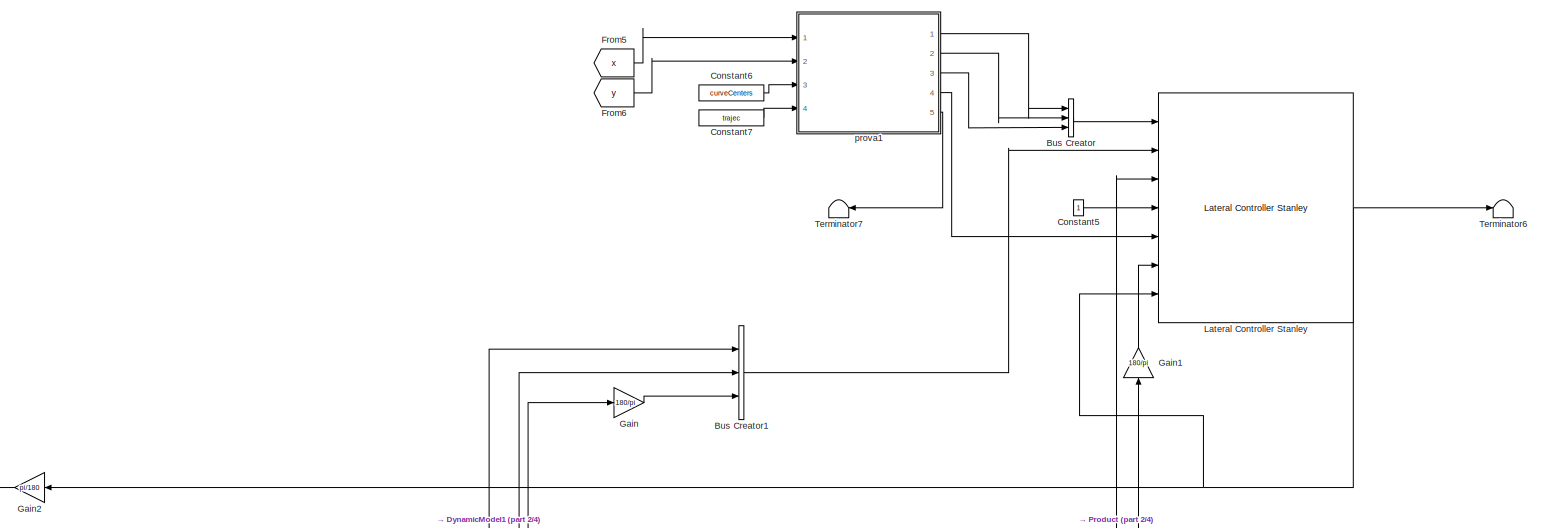
[diagram: root canvas - part 1/4, top right region]
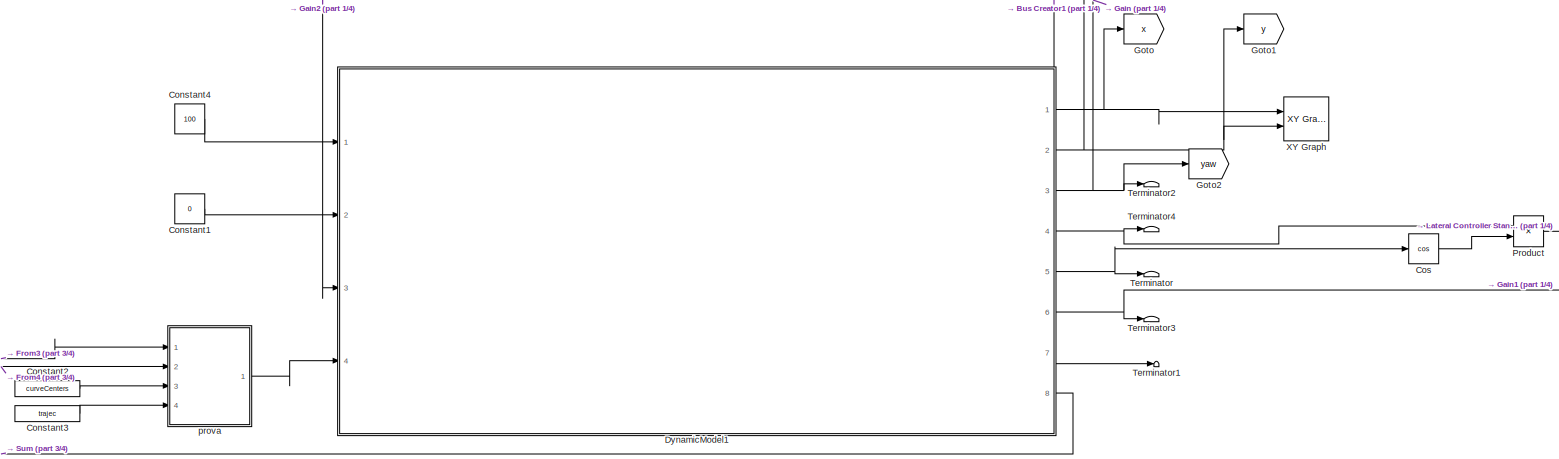
[diagram: root canvas - part 2/4, central region]
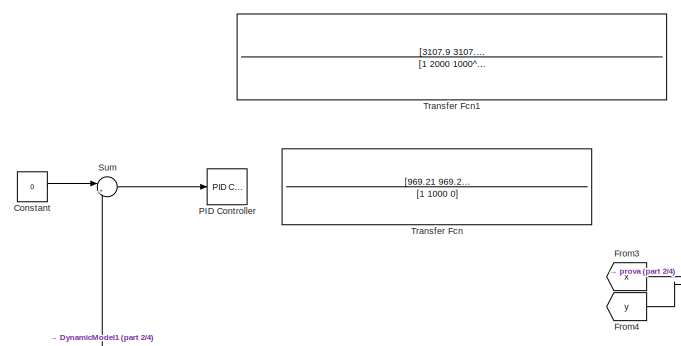
[diagram: root canvas - part 3/4, middle left region]
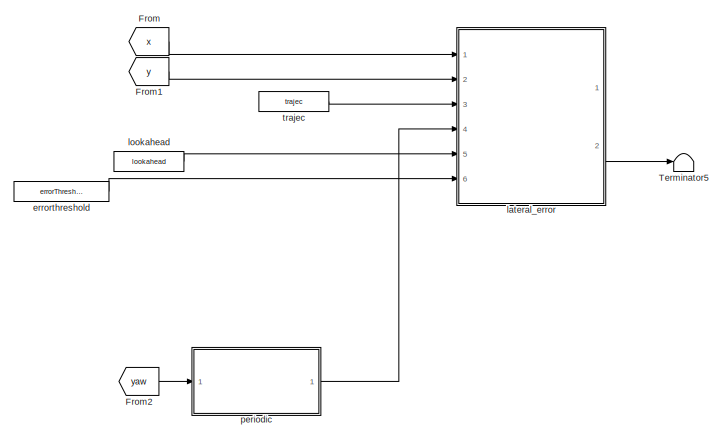
[diagram: root canvas - part 4/4, bottom left region]
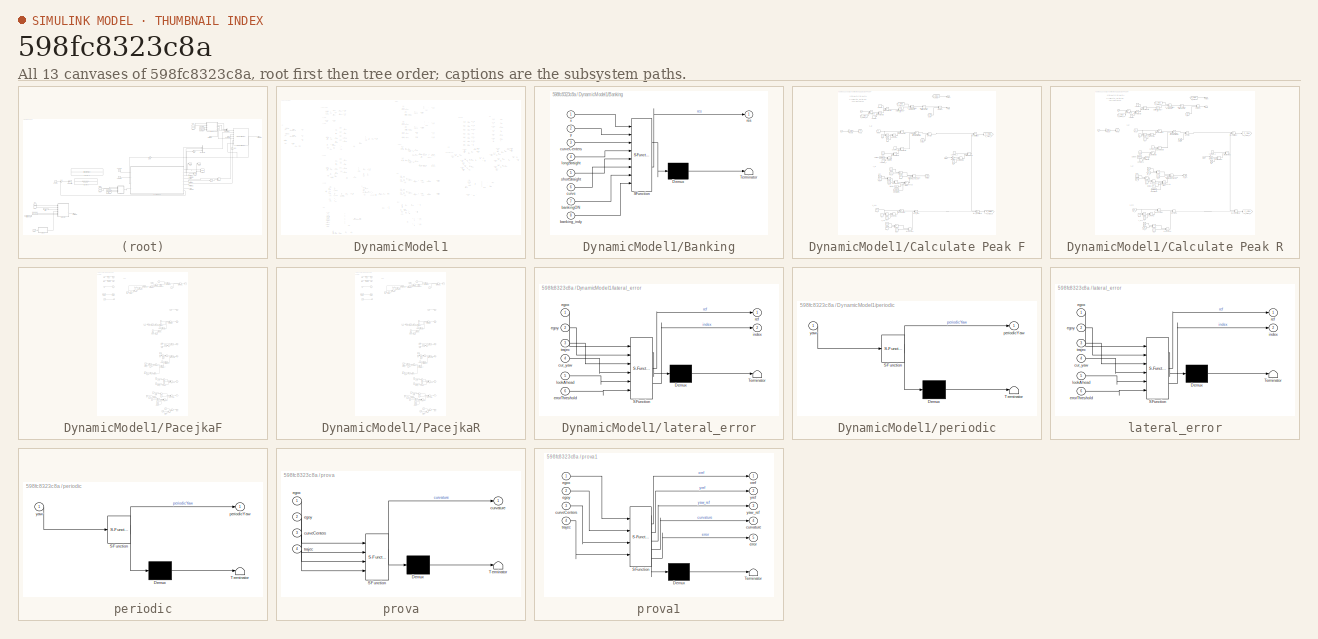
[diagram: thumbnail index - all 13 canvases of the model, root first then tree order]
MODEL slx_598fc8323c8a
KIND model
CONFIG AbsTol = auto
CONFIG EnableMultiTasking = off
CONFIG FixedStep = auto
CONFIG MaxStep = auto
CONFIG MinStep = auto
CONFIG RelTol = 1e-3
CONFIG SampleTimeConstraint = Unconstrained
CONFIG Solver = ode15s
CONFIG SolverName = ode15s
CONFIG StartTime = 0.0
CONFIG StopTime = 200
BLOCK [BusCreator] Bus Creator
  DisplayOption = bar
  InheritFromInputs = on
  Inputs = 3
  Ports = [3, 1]
BLOCK [BusCreator] Bus Creator1
  DisplayOption = bar
  InheritFromInputs = on
  Inputs = 3
  Ports = [3, 1]
BLOCK [Constant] Constant
  Value = 0
BLOCK [Constant] Constant1
  Value = 0
BLOCK [Constant] Constant2
  Value = curveCenters
BLOCK [Constant] Constant3
  Value = trajec
BLOCK [Constant] Constant4
  Value = 100
BLOCK [Constant] Constant5
BLOCK [Constant] Constant6
  Value = curveCenters
BLOCK [Constant] Constant7
  Value = trajec
BLOCK [Trigonometry] Cos
  Operator = cos
  Ports = [1, 1]
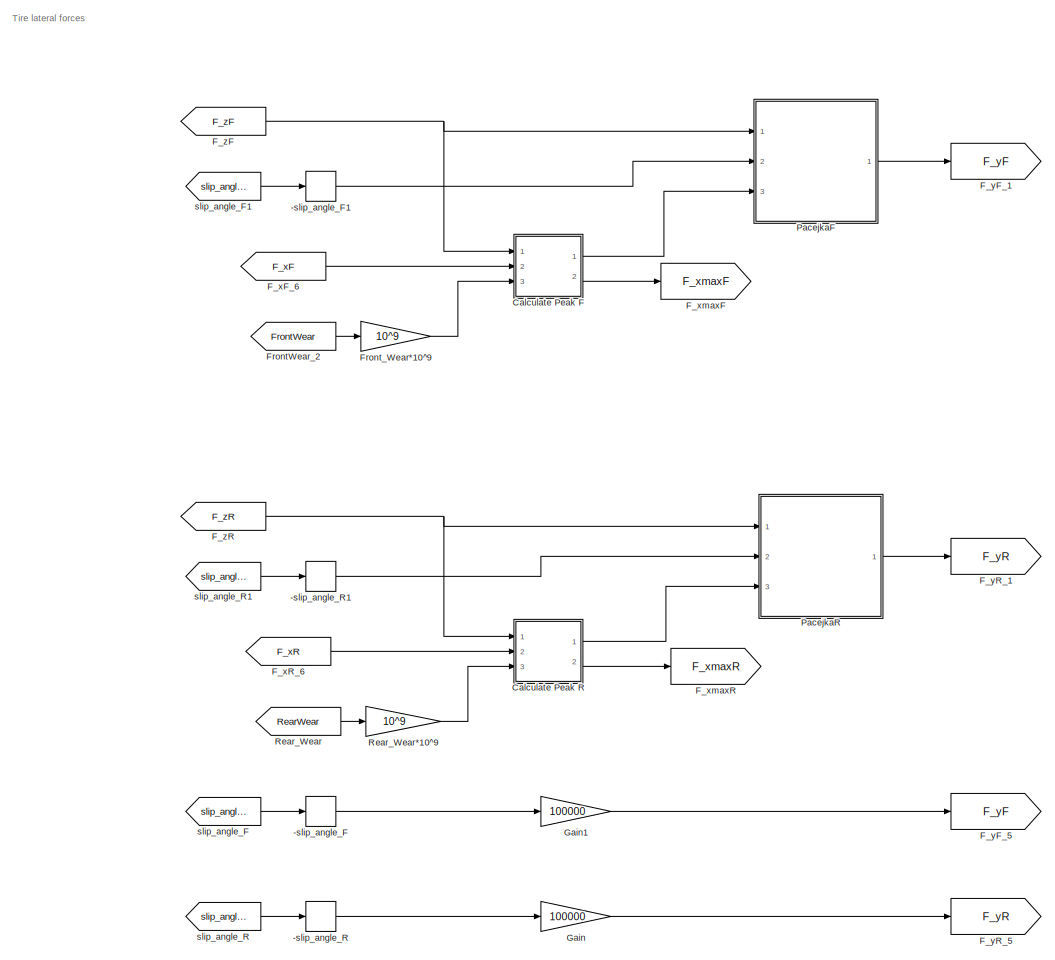
[diagram: DynamicModel1 - part 1/15, top center region]
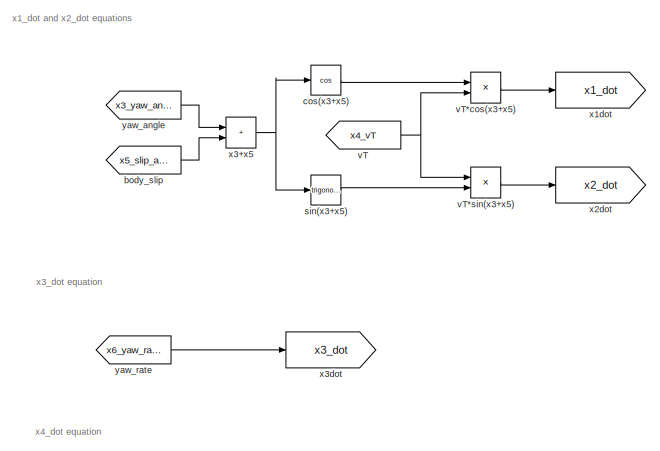
[diagram: DynamicModel1 - part 2/15, top left region]
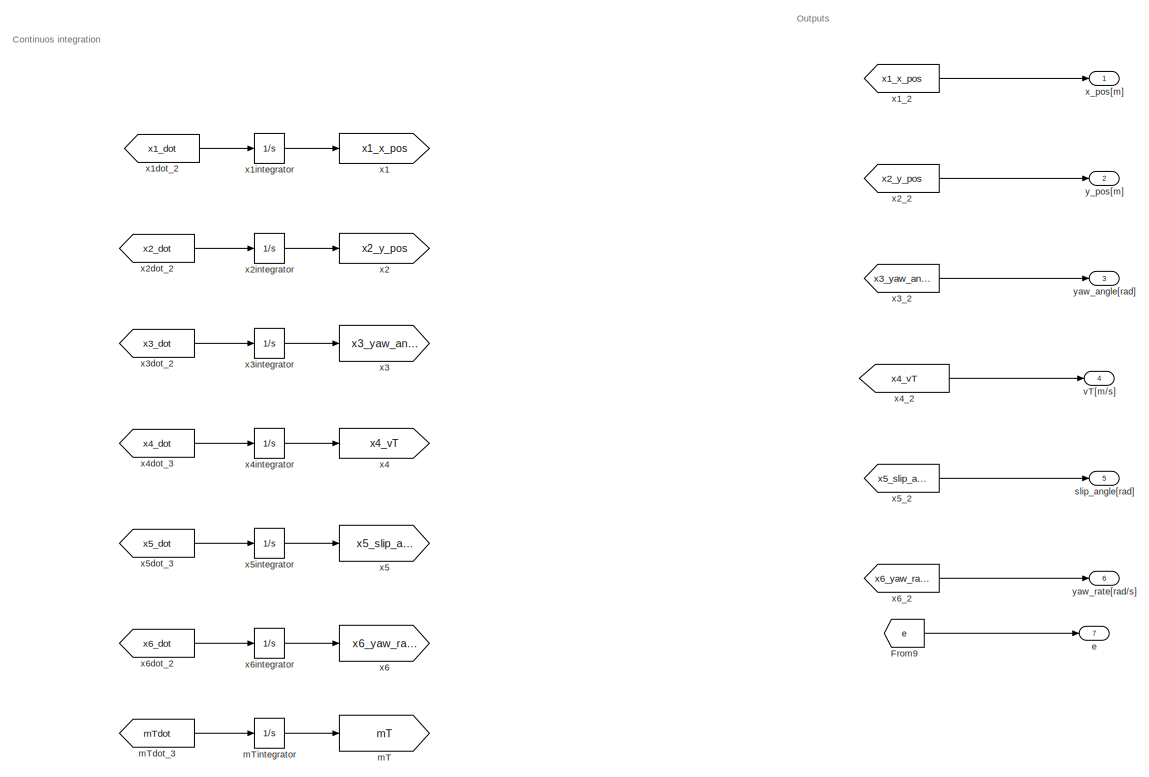
[diagram: DynamicModel1 - part 3/15, top right region]
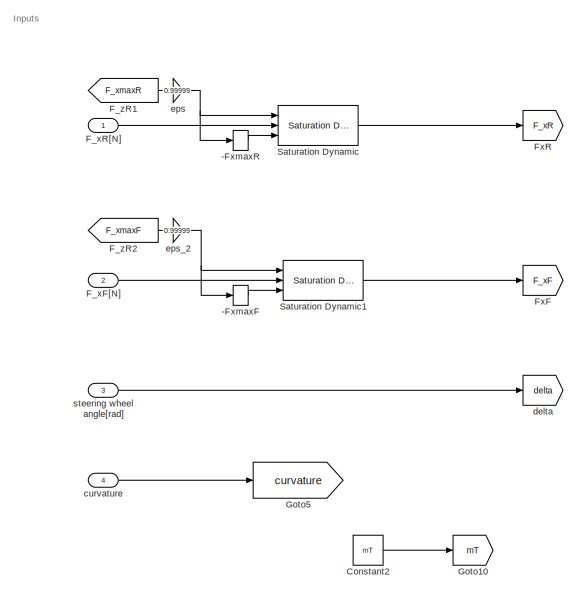
[diagram: DynamicModel1 - part 4/15, top left region]
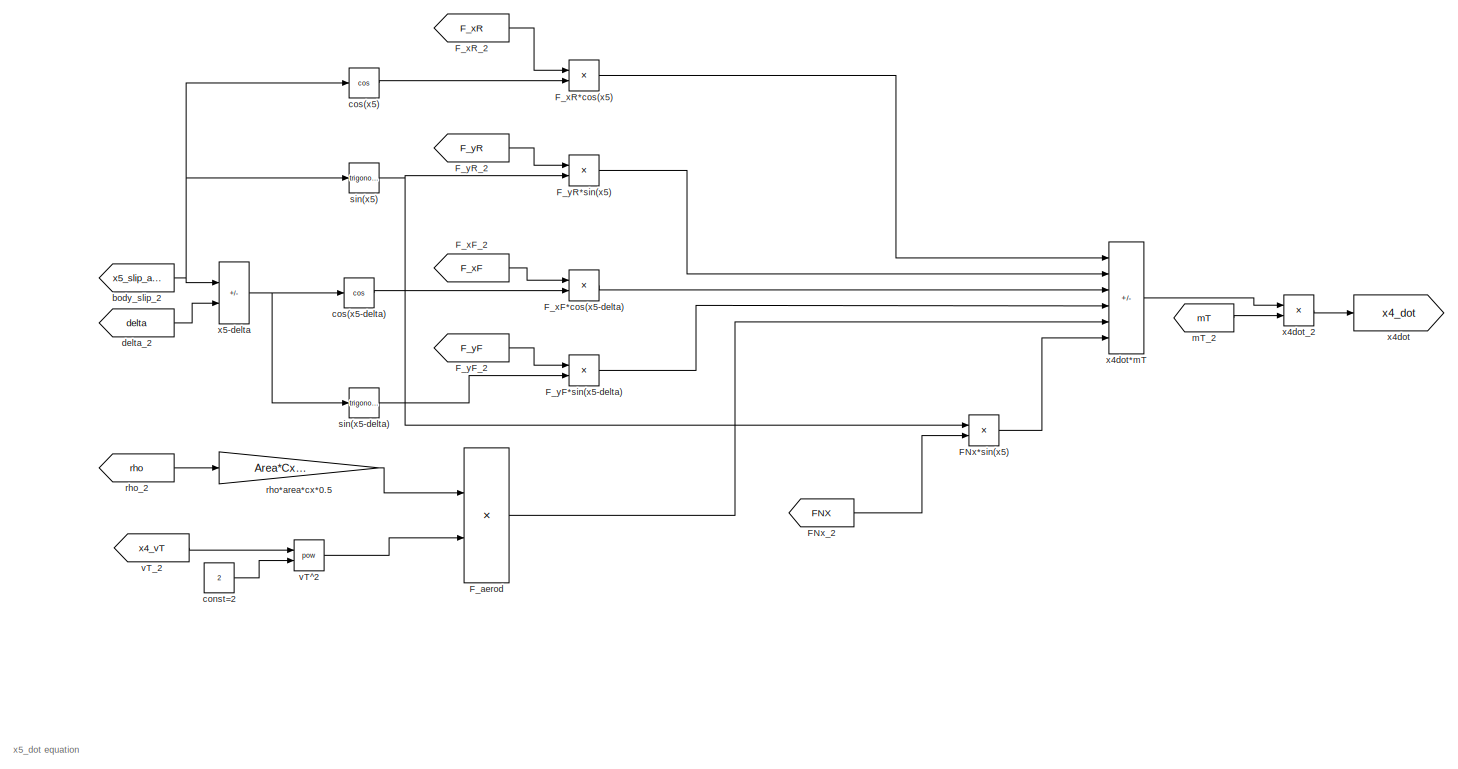
[diagram: DynamicModel1 - part 5/15, top left region]
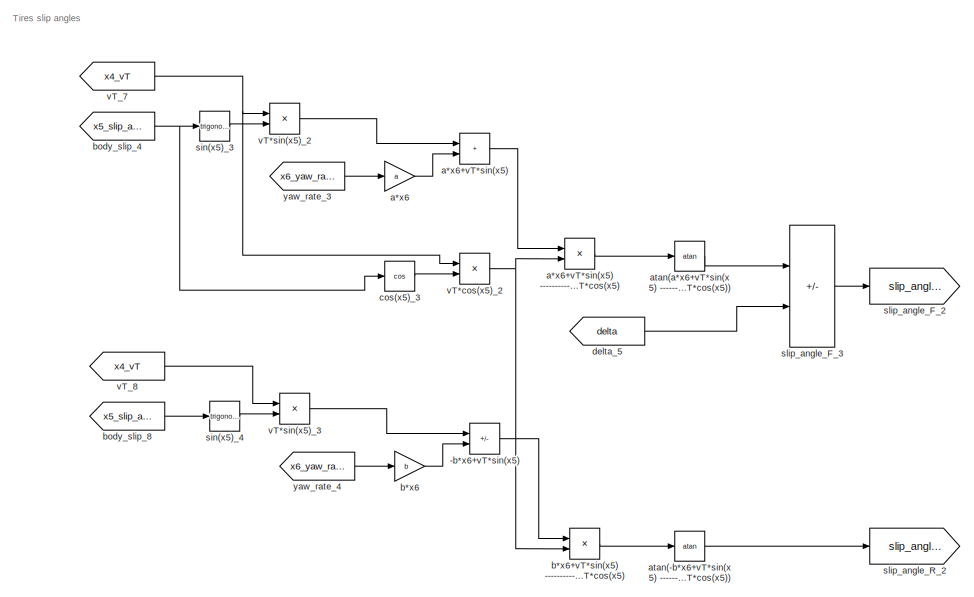
[diagram: DynamicModel1 - part 6/15, central region]
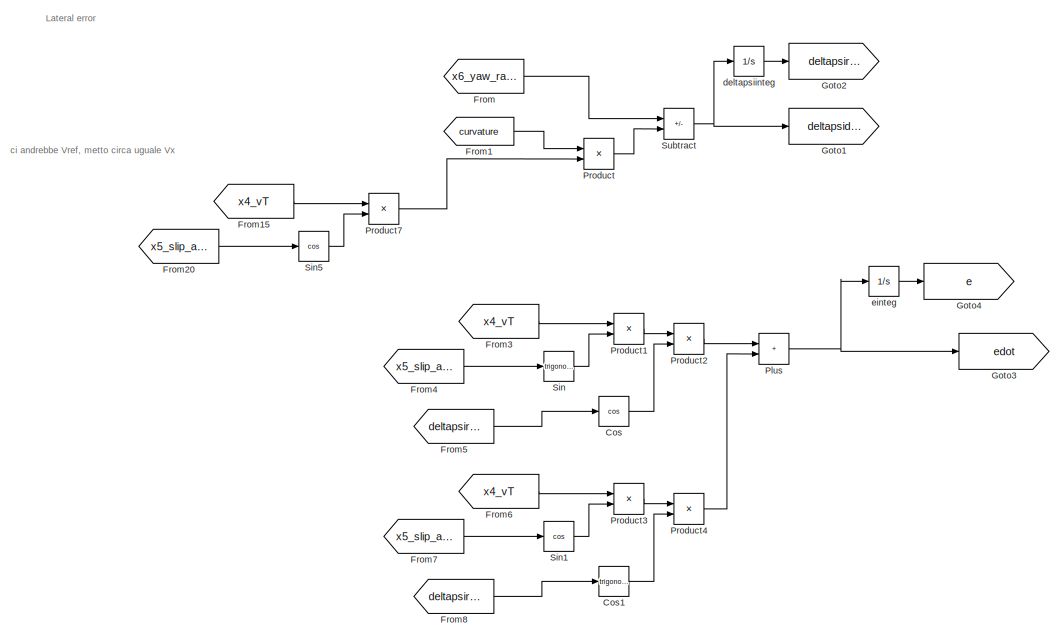
[diagram: DynamicModel1 - part 7/15, middle right region]
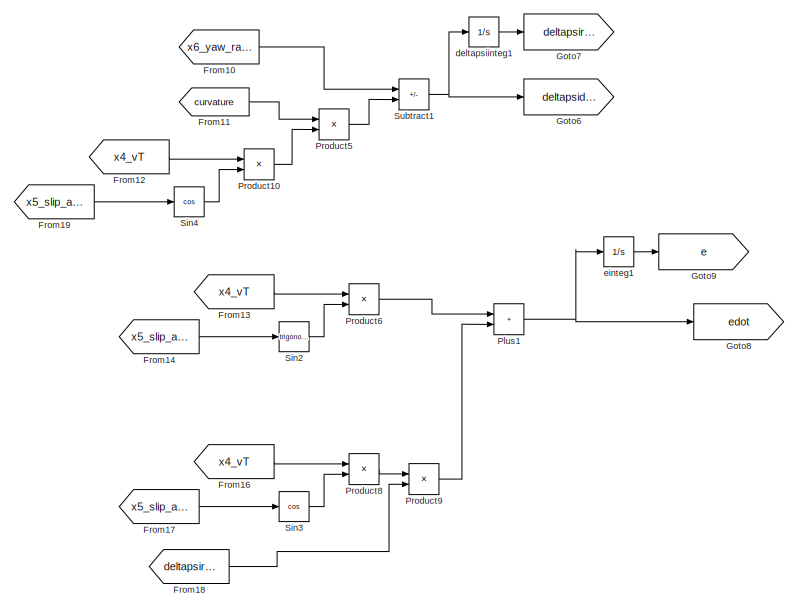
[diagram: DynamicModel1 - part 8/15, middle right region]
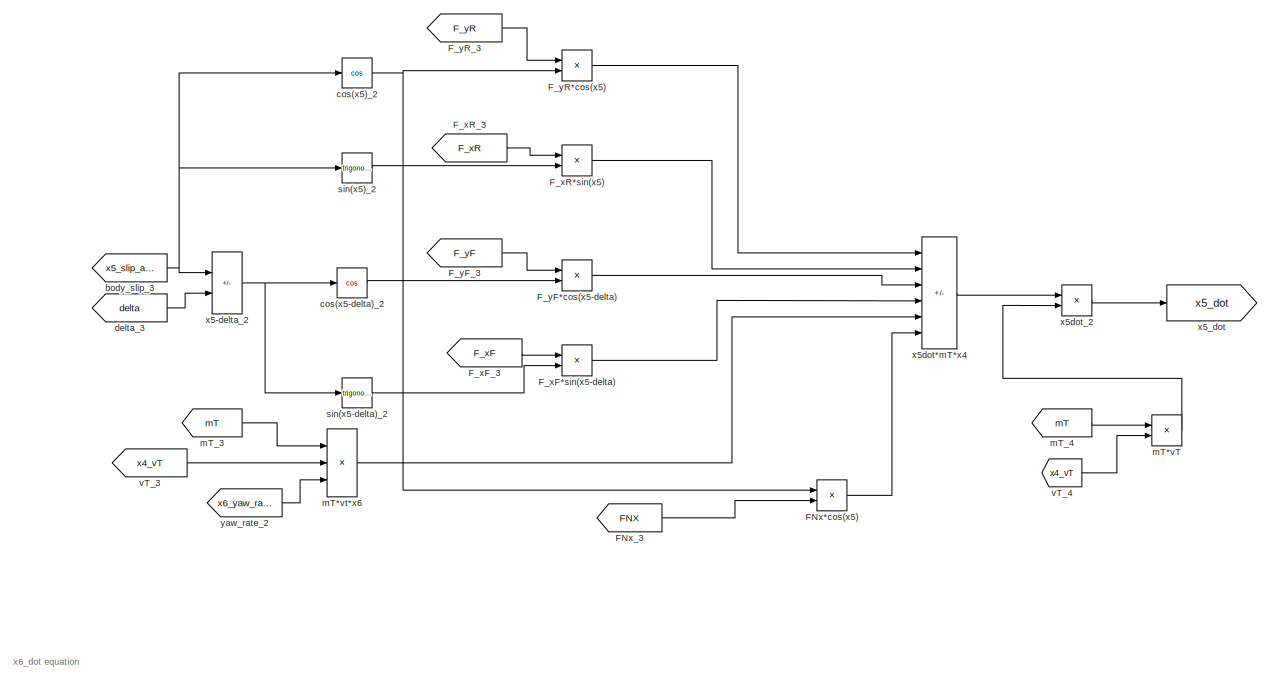
[diagram: DynamicModel1 - part 9/15, middle left region]
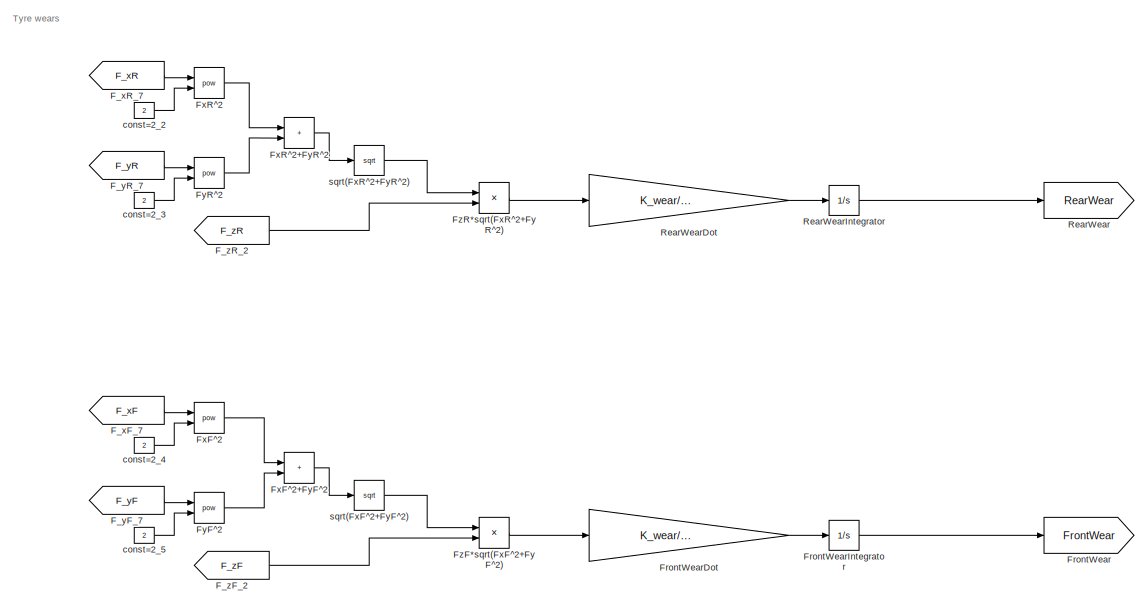
[diagram: DynamicModel1 - part 10/15, central region]
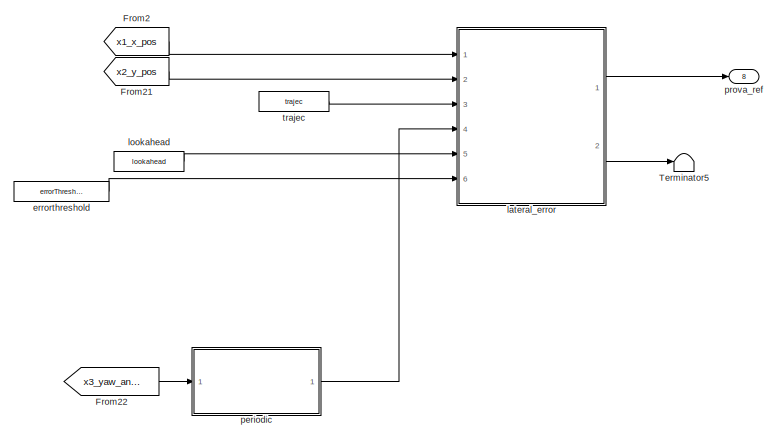
[diagram: DynamicModel1 - part 11/15, middle right region]
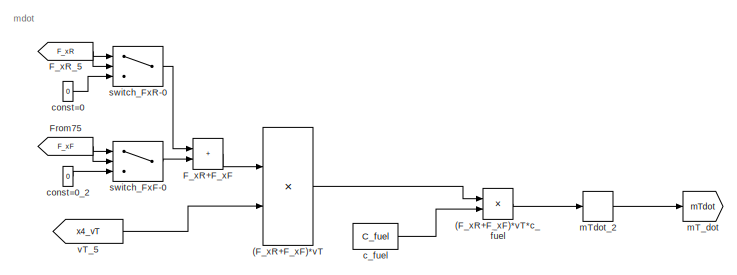
[diagram: DynamicModel1 - part 12/15, bottom center region]
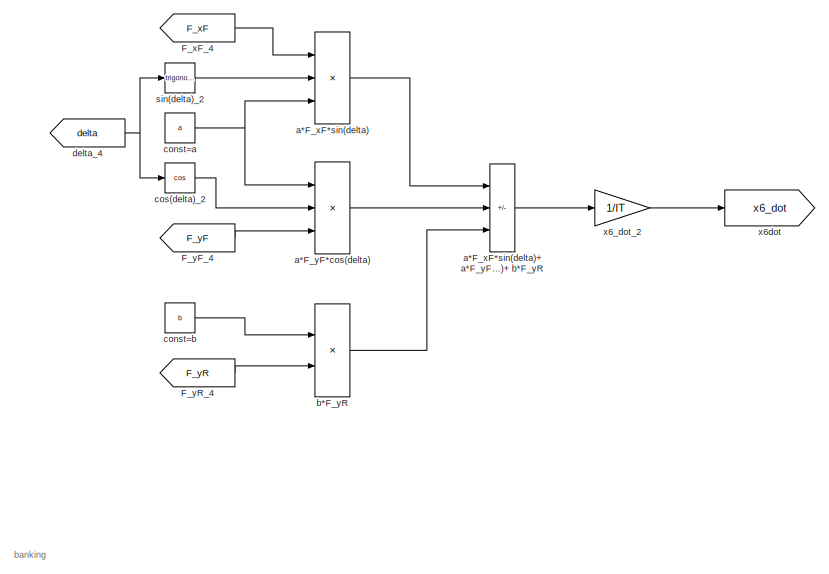
[diagram: DynamicModel1 - part 13/15, bottom left region]
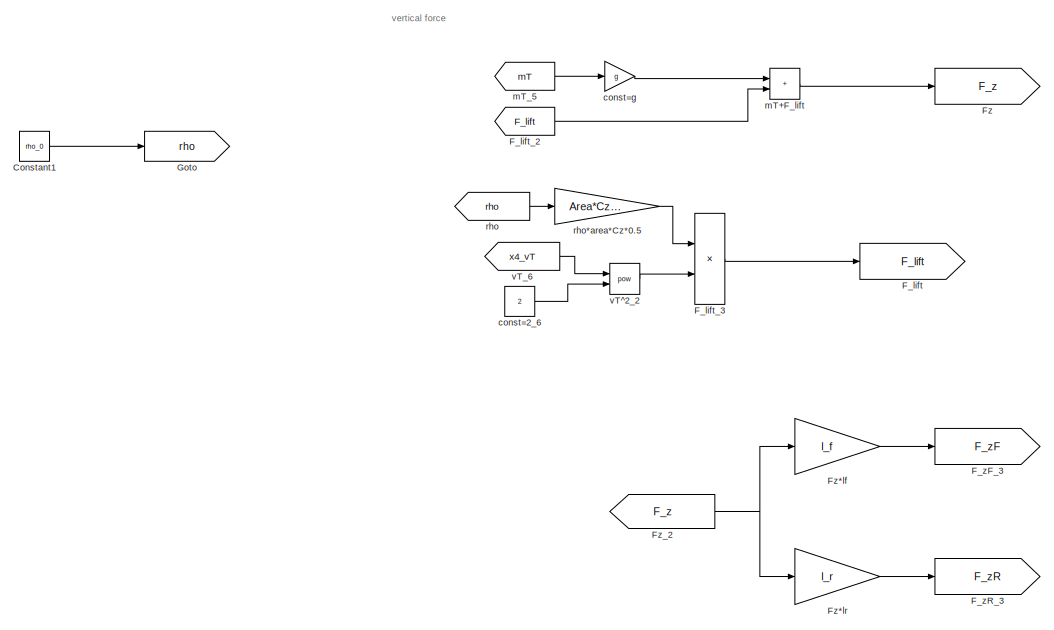
[diagram: DynamicModel1 - part 14/15, bottom center region]
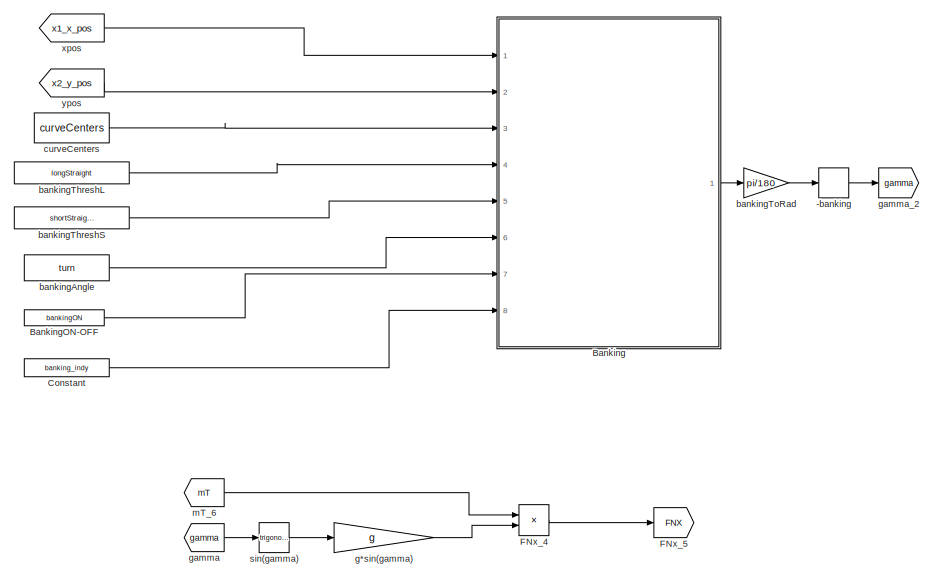
[diagram: DynamicModel1 - part 15/15, bottom left region]
BLOCK [SubSystem] DynamicModel1
  Ports = [4, 8]
  RequestExecContextInheritance = off
BLOCK [Product] DynamicModel1/(F_xR+F_xF)*vT
  Commented = on
  Ports = [2, 1]
BLOCK [Product] DynamicModel1/(F_xR+F_xF)*vT*c_fuel
  Commented = on
  Ports = [2, 1]
BLOCK [UnaryMinus] DynamicModel1/-FxmaxF
BLOCK [UnaryMinus] DynamicModel1/-FxmaxR
BLOCK [Sum] DynamicModel1/-b*x6+vT*sin(x5)
  IconShape = rectangular
  Inputs = +-
  Ports = [2, 1]
BLOCK [UnaryMinus] DynamicModel1/-banking
  Commented = on
BLOCK [UnaryMinus] DynamicModel1/-slip_angle_F
BLOCK [UnaryMinus] DynamicModel1/-slip_angle_F1
  Commented = on
BLOCK [UnaryMinus] DynamicModel1/-slip_angle_R
BLOCK [UnaryMinus] DynamicModel1/-slip_angle_R1
  Commented = on
BLOCK [SubSystem] DynamicModel1/Banking
  Commented = on
  ErrorFcn = Stateflow.Translate.translate
  PermitHierarchicalResolution = ExplicitOnly
  Ports = [8, 1]
  RequestExecContextInheritance = off
  SFBlockType = MATLAB Function
  TreatAsAtomicUnit = on
BLOCK [Demux] DynamicModel1/Banking/ Demux 
  Outputs = 1
  Ports = [1, 1]
BLOCK [S-Function] DynamicModel1/Banking/ SFunction 
  EnableBusSupport = on
  FunctionName = sf_sfun
  PortCounts = [8 2]
  Ports = [8, 2]
  SFcnIsStateOwnerBlock = off
  SFunctionDeploymentMode = off
  Tag = Stateflow S-Function 3
BLOCK [Terminator] DynamicModel1/Banking/ Terminator 
BLOCK [Inport] DynamicModel1/Banking/bankingON
  Port = 7
BLOCK [Inport] DynamicModel1/Banking/banking_indy
  Port = 8
BLOCK [Inport] DynamicModel1/Banking/curve
  Port = 6
BLOCK [Inport] DynamicModel1/Banking/curveCenters
  Port = 3
BLOCK [Inport] DynamicModel1/Banking/longStraight
  Port = 4
BLOCK [Outport] DynamicModel1/Banking/res
BLOCK [Inport] DynamicModel1/Banking/shortStraight
  Port = 5
BLOCK [Inport] DynamicModel1/Banking/x
BLOCK [Inport] DynamicModel1/Banking/y
  Port = 2
BLOCK [Constant] DynamicModel1/BankingON-OFF
  Commented = on
  Value = bankingON
BLOCK [SubSystem] DynamicModel1/Calculate Peak F
  Commented = on
  Ports = [3, 2]
  RequestExecContextInheritance = off
BLOCK [Product] DynamicModel1/Calculate Peak F/((a1Fz+a2)Fz) (1-a15*camber^2)
  Ports = [2, 1]
BLOCK [Product] DynamicModel1/Calculate Peak F/(D+V_lat)*wear
  Ports = [2, 1]
BLOCK [Product] DynamicModel1/Calculate Peak F/(D+V_long)*wear
  Ports = [2, 1]
BLOCK [Math] DynamicModel1/Calculate Peak F/(Fx*Fymax^-1)^2
  Operator = pow
  Ports = [2, 1]
BLOCK [Product] DynamicModel1/Calculate Peak F/(a1Fz+a2)Fz
  Ports = [2, 1]
BLOCK [Product] DynamicModel1/Calculate Peak F/(b1Fz+b2)Fz
  Ports = [2, 1]
BLOCK [Product] DynamicModel1/Calculate Peak F/1 ------ w1*wear+w2
  Inputs = */
  Ports = [2, 1]
BLOCK [Sum] DynamicModel1/Calculate Peak F/1-(Fx*Fymax^-1)^2
  IconShape = rectangular
  Inputs = +-
  Ports = [2, 1]
BLOCK [Sum] DynamicModel1/Calculate Peak F/1-a15*camber^2
  IconShape = rectangular
  Inputs = +-
  Ports = [2, 1]
BLOCK [Constant] DynamicModel1/Calculate Peak F/Constant11
  Value = camber
BLOCK [Sum] DynamicModel1/Calculate Peak F/D+V_lat
  IconShape = rectangular
  Ports = [2, 1]
BLOCK [Sum] DynamicModel1/Calculate Peak F/D+V_long
  IconShape = rectangular
  Ports = [2, 1]
BLOCK [From] DynamicModel1/Calculate Peak F/F_xmax
  GotoTag = F_xmax
BLOCK [Goto] DynamicModel1/Calculate Peak F/F_xmax_2
  GotoTag = F_xmax
BLOCK [From] DynamicModel1/Calculate Peak F/F_xmax_3
  GotoTag = F_xmax
BLOCK [Product] DynamicModel1/Calculate Peak F/F_ymax* sqrt(1-(Fx*Fymax^-1)^2) 
  Ports = [2, 1]
BLOCK [From] DynamicModel1/Calculate Peak F/F_ymax_2
  GotoTag = F_ymax
BLOCK [Goto] DynamicModel1/Calculate Peak F/F_ymax_3
  GotoTag = F_ymax
BLOCK [From] DynamicModel1/Calculate Peak F/From22
  GotoTag = Fz
BLOCK [Inport] DynamicModel1/Calculate Peak F/Fx
  Port = 2
  Unit = N
BLOCK [Product] DynamicModel1/Calculate Peak F/Fx*Fymax^-1
  Inputs = */
  Ports = [2, 1]
BLOCK [Outport] DynamicModel1/Calculate Peak F/Fxmax
  Port = 2
BLOCK [Inport] DynamicModel1/Calculate Peak F/Fz
  Unit = N
BLOCK [Gain] DynamicModel1/Calculate Peak F/Fz*10^-3
  Gain = 10^-3
BLOCK [Goto] DynamicModel1/Calculate Peak F/Fz_2
  GotoTag = Fz
BLOCK [From] DynamicModel1/Calculate Peak F/Fz_3
  GotoTag = Fz
BLOCK [From] DynamicModel1/Calculate Peak F/Fz_4
  GotoTag = Fz
BLOCK [From] DynamicModel1/Calculate Peak F/Fz_5
  GotoTag = Fz
BLOCK [From] DynamicModel1/Calculate Peak F/Fz_6
  GotoTag = Fz
BLOCK [From] DynamicModel1/Calculate Peak F/Fz_7
  GotoTag = Fz
BLOCK [Outport] DynamicModel1/Calculate Peak F/Peak
BLOCK [From] DynamicModel1/Calculate Peak F/V_lat
  GotoTag = V_lat
BLOCK [From] DynamicModel1/Calculate Peak F/V_lat_2
  GotoTag = V_lat
BLOCK [Goto] DynamicModel1/Calculate Peak F/V_lat_3
  GotoTag = V_lat
BLOCK [Inport] DynamicModel1/Calculate Peak F/Wear
  Port = 3
BLOCK [Constant] DynamicModel1/Calculate Peak F/a1
  Value = a1
BLOCK [Constant] DynamicModel1/Calculate Peak F/a11
  Value = a11
BLOCK [Product] DynamicModel1/Calculate Peak F/a11Fz
  Ports = [2, 1]
BLOCK [Constant] DynamicModel1/Calculate Peak F/a12
  Value = a12
BLOCK [Constant] DynamicModel1/Calculate Peak F/a13
  Value = a13
BLOCK [Product] DynamicModel1/Calculate Peak F/a13Fz
  Ports = [2, 1]
BLOCK [Sum] DynamicModel1/Calculate Peak F/a13Fz+a14
  IconShape = rectangular
  Ports = [2, 1]
BLOCK [Product] DynamicModel1/Calculate Peak F/a13Fz+a14+Fz+camber
  Inputs = 3
  Ports = [3, 1]
BLOCK [Sum] DynamicModel1/Calculate Peak F/a13Fz+a14+Fz+camber +a12+a11Fz
  IconShape = rectangular
  Inputs = +++
  Ports = [3, 1]
BLOCK [Constant] DynamicModel1/Calculate Peak F/a14
  Value = a14
BLOCK [Constant] DynamicModel1/Calculate Peak F/a15
  Value = a15
BLOCK [Product] DynamicModel1/Calculate Peak F/a15*camber^2
  Ports = [2, 1]
BLOCK [Product] DynamicModel1/Calculate Peak F/a1Fz
  Ports = [2, 1]
BLOCK [Sum] DynamicModel1/Calculate Peak F/a1Fz+a2
  IconShape = rectangular
  Ports = [2, 1]
BLOCK [Constant] DynamicModel1/Calculate Peak F/a2
  Value = a2
BLOCK [Abs] DynamicModel1/Calculate Peak F/abs(F_ymax* sqrt(1-(Fx*Fymax^-1)^2) )
  SaturateOnIntegerOverflow = off
BLOCK [Constant] DynamicModel1/Calculate Peak F/b1
  Value = b1
BLOCK [Constant] DynamicModel1/Calculate Peak F/b11
  Value = b11
BLOCK [Product] DynamicModel1/Calculate Peak F/b11Fz
  Ports = [2, 1]
BLOCK [Sum] DynamicModel1/Calculate Peak F/b11Fz+b12
  IconShape = rectangular
  Ports = [2, 1]
BLOCK [Constant] DynamicModel1/Calculate Peak F/b12
  Value = b12
BLOCK [Product] DynamicModel1/Calculate Peak F/b1Fz
  Ports = [2, 1]
BLOCK [Sum] DynamicModel1/Calculate Peak F/b1Fz+b2
  IconShape = rectangular
  Ports = [2, 1]
BLOCK [Constant] DynamicModel1/Calculate Peak F/b2
  Value = b2
BLOCK [Constant] DynamicModel1/Calculate Peak F/camber
  Value = camber
BLOCK [Math] DynamicModel1/Calculate Peak F/camber^2
  Operator = pow
  Ports = [2, 1]
BLOCK [Constant] DynamicModel1/Calculate Peak F/const=1
BLOCK [Constant] DynamicModel1/Calculate Peak F/const=1_2
BLOCK [Constant] DynamicModel1/Calculate Peak F/const=1_3
BLOCK [Constant] DynamicModel1/Calculate Peak F/const=2
  Value = 2
BLOCK [Constant] DynamicModel1/Calculate Peak F/const=2_2
  Value = 2
BLOCK [Sum] DynamicModel1/Calculate Peak F/newD+V
  IconShape = rectangular
  Inputs = +-
  Ports = [2, 1]
BLOCK [Sqrt] DynamicModel1/Calculate Peak F/sqrt(1-(Fx*Fymax^-1)^2)
BLOCK [Gain] DynamicModel1/Calculate Peak F/w1*wear
  Gain = w1
BLOCK [Sum] DynamicModel1/Calculate Peak F/w1*wear+w2
  IconShape = rectangular
  Ports = [2, 1]
BLOCK [Constant] DynamicModel1/Calculate Peak F/w2
  Value = w2
BLOCK [SubSystem] DynamicModel1/Calculate Peak R
  Commented = on
  Ports = [3, 2]
  RequestExecContextInheritance = off
BLOCK [Product] DynamicModel1/Calculate Peak R/((a1Fz+a2)Fz) (1-a15*camber^2)
  Ports = [2, 1]
BLOCK [Product] DynamicModel1/Calculate Peak R/(D+V_lat)*wear
  Ports = [2, 1]
BLOCK [Product] DynamicModel1/Calculate Peak R/(D+V_long)*wear
  Ports = [2, 1]
BLOCK [Math] DynamicModel1/Calculate Peak R/(Fx*Fymax^-1)^2
  Operator = pow
  Ports = [2, 1]
BLOCK [Product] DynamicModel1/Calculate Peak R/(a1Fz+a2)Fz
  Ports = [2, 1]
BLOCK [Product] DynamicModel1/Calculate Peak R/(b1Fz+b2)Fz
  Ports = [2, 1]
BLOCK [Product] DynamicModel1/Calculate Peak R/1 ------ w1*wear+w2
  Inputs = */
  Ports = [2, 1]
BLOCK [Sum] DynamicModel1/Calculate Peak R/1-(Fx*Fymax^-1)^2
  IconShape = rectangular
  Inputs = +-
  Ports = [2, 1]
BLOCK [Sum] DynamicModel1/Calculate Peak R/1-a15*camber^2
  IconShape = rectangular
  Inputs = +-
  Ports = [2, 1]
BLOCK [Constant] DynamicModel1/Calculate Peak R/Constant11
  Value = camber
BLOCK [Sum] DynamicModel1/Calculate Peak R/D+V_lat
  IconShape = rectangular
  Ports = [2, 1]
BLOCK [Sum] DynamicModel1/Calculate Peak R/D+V_long
  IconShape = rectangular
  Ports = [2, 1]
BLOCK [From] DynamicModel1/Calculate Peak R/F_xmax
  GotoTag = F_xmax
BLOCK [Goto] DynamicModel1/Calculate Peak R/F_xmax_2
  GotoTag = F_xmax
BLOCK [From] DynamicModel1/Calculate Peak R/F_xmax_3
  GotoTag = F_xmax
BLOCK [Product] DynamicModel1/Calculate Peak R/F_ymax* sqrt(1-(Fx*Fymax^-1)^2) 
  Ports = [2, 1]
BLOCK [From] DynamicModel1/Calculate Peak R/F_ymax_2
  GotoTag = F_ymax
BLOCK [Goto] DynamicModel1/Calculate Peak R/F_ymax_3
  GotoTag = F_ymax
BLOCK [From] DynamicModel1/Calculate Peak R/From22
  GotoTag = Fz
BLOCK [Inport] DynamicModel1/Calculate Peak R/Fx
  Port = 2
  Unit = N
BLOCK [Product] DynamicModel1/Calculate Peak R/Fx*Fymax^-1
  Inputs = */
  Ports = [2, 1]
BLOCK [Outport] DynamicModel1/Calculate Peak R/Fxmax
  Port = 2
BLOCK [Inport] DynamicModel1/Calculate Peak R/Fz
  Unit = N
BLOCK [Gain] DynamicModel1/Calculate Peak R/Fz*10^-3
  Gain = 10^-3
BLOCK [Goto] DynamicModel1/Calculate Peak R/Fz_2
  GotoTag = Fz
BLOCK [From] DynamicModel1/Calculate Peak R/Fz_3
  GotoTag = Fz
BLOCK [From] DynamicModel1/Calculate Peak R/Fz_4
  GotoTag = Fz
BLOCK [From] DynamicModel1/Calculate Peak R/Fz_5
  GotoTag = Fz
BLOCK [From] DynamicModel1/Calculate Peak R/Fz_6
  GotoTag = Fz
BLOCK [From] DynamicModel1/Calculate Peak R/Fz_7
  GotoTag = Fz
BLOCK [Outport] DynamicModel1/Calculate Peak R/Peak
BLOCK [From] DynamicModel1/Calculate Peak R/V_lat
  GotoTag = V_lat
BLOCK [From] DynamicModel1/Calculate Peak R/V_lat_2
  GotoTag = V_lat
BLOCK [Goto] DynamicModel1/Calculate Peak R/V_lat_3
  GotoTag = V_lat
BLOCK [Inport] DynamicModel1/Calculate Peak R/Wear
  Port = 3
BLOCK [Constant] DynamicModel1/Calculate Peak R/a1
  Value = a1
BLOCK [Constant] DynamicModel1/Calculate Peak R/a11
  Value = a11
BLOCK [Product] DynamicModel1/Calculate Peak R/a11Fz
  Ports = [2, 1]
BLOCK [Constant] DynamicModel1/Calculate Peak R/a12
  Value = a12
BLOCK [Constant] DynamicModel1/Calculate Peak R/a13
  Value = a13
BLOCK [Product] DynamicModel1/Calculate Peak R/a13Fz
  Ports = [2, 1]
BLOCK [Sum] DynamicModel1/Calculate Peak R/a13Fz+a14
  IconShape = rectangular
  Ports = [2, 1]
BLOCK [Product] DynamicModel1/Calculate Peak R/a13Fz+a14+Fz+camber
  Inputs = 3
  Ports = [3, 1]
BLOCK [Sum] DynamicModel1/Calculate Peak R/a13Fz+a14+Fz+camber +a12+a11Fz
  IconShape = rectangular
  Inputs = +++
  Ports = [3, 1]
BLOCK [Constant] DynamicModel1/Calculate Peak R/a14
  Value = a14
BLOCK [Constant] DynamicModel1/Calculate Peak R/a15
  Value = a15
BLOCK [Product] DynamicModel1/Calculate Peak R/a15*camber^2
  Ports = [2, 1]
BLOCK [Product] DynamicModel1/Calculate Peak R/a1Fz
  Ports = [2, 1]
BLOCK [Sum] DynamicModel1/Calculate Peak R/a1Fz+a2
  IconShape = rectangular
  Ports = [2, 1]
BLOCK [Constant] DynamicModel1/Calculate Peak R/a2
  Value = a2
BLOCK [Abs] DynamicModel1/Calculate Peak R/abs(F_ymax* sqrt(1-(Fx*Fymax^-1)^2) )
  SaturateOnIntegerOverflow = off
BLOCK [Constant] DynamicModel1/Calculate Peak R/b1
  Value = b1
BLOCK [Constant] DynamicModel1/Calculate Peak R/b11
  Value = b11
BLOCK [Product] DynamicModel1/Calculate Peak R/b11Fz
  Ports = [2, 1]
BLOCK [Sum] DynamicModel1/Calculate Peak R/b11Fz+b12
  IconShape = rectangular
  Ports = [2, 1]
BLOCK [Constant] DynamicModel1/Calculate Peak R/b12
  Value = b12
BLOCK [Product] DynamicModel1/Calculate Peak R/b1Fz
  Ports = [2, 1]
BLOCK [Sum] DynamicModel1/Calculate Peak R/b1Fz+b2
  IconShape = rectangular
  Ports = [2, 1]
BLOCK [Constant] DynamicModel1/Calculate Peak R/b2
  Value = b2
BLOCK [Constant] DynamicModel1/Calculate Peak R/camber
  Value = camber
BLOCK [Math] DynamicModel1/Calculate Peak R/camber^2
  Operator = pow
  Ports = [2, 1]
BLOCK [Constant] DynamicModel1/Calculate Peak R/const=1
BLOCK [Constant] DynamicModel1/Calculate Peak R/const=1_2
BLOCK [Constant] DynamicModel1/Calculate Peak R/const=1_3
BLOCK [Constant] DynamicModel1/Calculate Peak R/const=2
  Value = 2
BLOCK [Constant] DynamicModel1/Calculate Peak R/const=2_2
  Value = 2
BLOCK [Sum] DynamicModel1/Calculate Peak R/newD+V
  IconShape = rectangular
  Inputs = +-
  Ports = [2, 1]
BLOCK [Sqrt] DynamicModel1/Calculate Peak R/sqrt(1-(Fx*Fymax^-1)^2)
BLOCK [Gain] DynamicModel1/Calculate Peak R/w1*wear
  Gain = w1
BLOCK [Sum] DynamicModel1/Calculate Peak R/w1*wear+w2
  IconShape = rectangular
  Ports = [2, 1]
BLOCK [Constant] DynamicModel1/Calculate Peak R/w2
  Value = w2
BLOCK [Constant] DynamicModel1/Constant
  Commented = on
  Value = banking_indy
BLOCK [Constant] DynamicModel1/Constant1
  Commented = on
  Value = rho_0
BLOCK [Constant] DynamicModel1/Constant2
  Value = mT
BLOCK [Trigonometry] DynamicModel1/Cos
  Commented = on
  Operator = cos
  Ports = [1, 1]
BLOCK [Trigonometry] DynamicModel1/Cos1
  Commented = on
  Ports = [1, 1]
BLOCK [Product] DynamicModel1/FNx*cos(x5)
  Commented = on
  Ports = [2, 1]
BLOCK [Product] DynamicModel1/FNx*sin(x5)
  Commented = on
  Ports = [2, 1]
BLOCK [From] DynamicModel1/FNx_2
  Commented = on
  GotoTag = FNX
BLOCK [From] DynamicModel1/FNx_3
  Commented = on
  GotoTag = FNX
BLOCK [Product] DynamicModel1/FNx_4
  Commented = on
  Ports = [2, 1]
BLOCK [Goto] DynamicModel1/FNx_5
  Commented = on
  GotoTag = FNX
BLOCK [Product] DynamicModel1/F_aerod
  Commented = on
  Ports = [2, 1]
BLOCK [Goto] DynamicModel1/F_lift
  Commented = on
  GotoTag = F_lift
BLOCK [From] DynamicModel1/F_lift_2
  Commented = on
  GotoTag = F_lift
BLOCK [Product] DynamicModel1/F_lift_3
  Commented = on
  Ports = [2, 1]
BLOCK [Product] DynamicModel1/F_xF*cos(x5-delta)
  Ports = [2, 1]
BLOCK [Product] DynamicModel1/F_xF*sin(x5-delta)
  Ports = [2, 1]
BLOCK [Inport] DynamicModel1/F_xF[N]
  Port = 2
  Unit = N
BLOCK [From] DynamicModel1/F_xF_2
  GotoTag = F_xF
BLOCK [From] DynamicModel1/F_xF_3
  GotoTag = F_xF
BLOCK [From] DynamicModel1/F_xF_4
  GotoTag = F_xF
BLOCK [From] DynamicModel1/F_xF_6
  Commented = on
  GotoTag = F_xF
BLOCK [From] DynamicModel1/F_xF_7
  Commented = on
  GotoTag = F_xF
BLOCK [Product] DynamicModel1/F_xR*cos(x5)
  Ports = [2, 1]
BLOCK [Product] DynamicModel1/F_xR*sin(x5)
  Ports = [2, 1]
BLOCK [Sum] DynamicModel1/F_xR+F_xF
  Commented = on
  IconShape = rectangular
  Ports = [2, 1]
BLOCK [Inport] DynamicModel1/F_xR[N]
  Unit = N
BLOCK [From] DynamicModel1/F_xR_2
  GotoTag = F_xR
BLOCK [From] DynamicModel1/F_xR_3
  GotoTag = F_xR
BLOCK [From] DynamicModel1/F_xR_5
  Commented = on
  GotoTag = F_xR
BLOCK [From] DynamicModel1/F_xR_6
  Commented = on
  GotoTag = F_xR
BLOCK [From] DynamicModel1/F_xR_7
  Commented = on
  GotoTag = F_xR
BLOCK [Goto] DynamicModel1/F_xmaxF
  Commented = on
  GotoTag = F_xmaxF
BLOCK [Goto] DynamicModel1/F_xmaxR
  Commented = on
  GotoTag = F_xmaxR
BLOCK [Product] DynamicModel1/F_yF*cos(x5-delta)
  Ports = [2, 1]
BLOCK [Product] DynamicModel1/F_yF*sin(x5-delta)
  Ports = [2, 1]
BLOCK [Goto] DynamicModel1/F_yF_1
  Commented = on
  GotoTag = F_yF
BLOCK [From] DynamicModel1/F_yF_2
  GotoTag = F_yF
BLOCK [From] DynamicModel1/F_yF_3
  GotoTag = F_yF
BLOCK [From] DynamicModel1/F_yF_4
  GotoTag = F_yF
BLOCK [Goto] DynamicModel1/F_yF_5
  GotoTag = F_yF
BLOCK [From] DynamicModel1/F_yF_7
  Commented = on
  GotoTag = F_yF
BLOCK [Product] DynamicModel1/F_yR*cos(x5)
  Ports = [2, 1]
BLOCK [Product] DynamicModel1/F_yR*sin(x5)
  Ports = [2, 1]
BLOCK [Goto] DynamicModel1/F_yR_1
  Commented = on
  GotoTag = F_yR
BLOCK [From] DynamicModel1/F_yR_2
  GotoTag = F_yR
BLOCK [From] DynamicModel1/F_yR_3
  GotoTag = F_yR
BLOCK [From] DynamicModel1/F_yR_4
  GotoTag = F_yR
BLOCK [Goto] DynamicModel1/F_yR_5
  GotoTag = F_yR
BLOCK [From] DynamicModel1/F_yR_7
  Commented = on
  GotoTag = F_yR
BLOCK [From] DynamicModel1/F_zF
  Commented = on
  GotoTag = F_zF
BLOCK [From] DynamicModel1/F_zF_2
  Commented = on
  GotoTag = F_zF
BLOCK [Goto] DynamicModel1/F_zF_3
  Commented = on
  GotoTag = F_zF
BLOCK [From] DynamicModel1/F_zR
  Commented = on
  GotoTag = F_zR
BLOCK [From] DynamicModel1/F_zR1
  GotoTag = F_xmaxR
BLOCK [From] DynamicModel1/F_zR2
  GotoTag = F_xmaxF
BLOCK [From] DynamicModel1/F_zR_2
  Commented = on
  GotoTag = F_zR
BLOCK [Goto] DynamicModel1/F_zR_3
  Commented = on
  GotoTag = F_zR
BLOCK [From] DynamicModel1/From
  Commented = on
  GotoTag = x6_yaw_rate
BLOCK [From] DynamicModel1/From1
  Commented = on
  GotoTag = curvature
BLOCK [From] DynamicModel1/From10
  Commented = on
  GotoTag = x6_yaw_rate
BLOCK [From] DynamicModel1/From11
  Commented = on
  GotoTag = curvature
BLOCK [From] DynamicModel1/From12
  Commented = on
  GotoTag = x4_vT
BLOCK [From] DynamicModel1/From13
  Commented = on
  GotoTag = x4_vT
BLOCK [From] DynamicModel1/From14
  Commented = on
  GotoTag = x5_slip_angle
BLOCK [From] DynamicModel1/From15
  Commented = on
  GotoTag = x4_vT
BLOCK [From] DynamicModel1/From16
  Commented = on
  GotoTag = x4_vT
BLOCK [From] DynamicModel1/From17
  Commented = on
  GotoTag = x5_slip_angle
BLOCK [From] DynamicModel1/From18
  Commented = on
  GotoTag = deltapsiref
BLOCK [From] DynamicModel1/From19
  Commented = on
  GotoTag = x5_slip_angle
BLOCK [From] DynamicModel1/From2
  GotoTag = x1_x_pos
BLOCK [From] DynamicModel1/From20
  Commented = on
  GotoTag = x5_slip_angle
BLOCK [From] DynamicModel1/From21
  GotoTag = x2_y_pos
BLOCK [From] DynamicModel1/From22
  GotoTag = x3_yaw_angle
BLOCK [From] DynamicModel1/From3
  Commented = on
  GotoTag = x4_vT
BLOCK [From] DynamicModel1/From4
  Commented = on
  GotoTag = x5_slip_angle
BLOCK [From] DynamicModel1/From5
  Commented = on
  GotoTag = deltapsiref
BLOCK [From] DynamicModel1/From6
  Commented = on
  GotoTag = x4_vT
BLOCK [From] DynamicModel1/From7
  Commented = on
  GotoTag = x5_slip_angle
BLOCK [From] DynamicModel1/From75
  Commented = on
  GotoTag = F_xF
BLOCK [From] DynamicModel1/From8
  Commented = on
  GotoTag = deltapsiref
BLOCK [From] DynamicModel1/From9
  GotoTag = e
BLOCK [Goto] DynamicModel1/FrontWear
  Commented = on
  GotoTag = FrontWear
BLOCK [Gain] DynamicModel1/FrontWearDot
  Commented = on
  Gain = K_wear/TyreContactAreaFront
BLOCK [Integrator] DynamicModel1/FrontWearIntegrator
  Commented = on
  Ports = [1, 1]
BLOCK [From] DynamicModel1/FrontWear_2
  Commented = on
  GotoTag = FrontWear
BLOCK [Gain] DynamicModel1/Front_Wear*10^9
  Commented = on
  Gain = 10^9
BLOCK [Goto] DynamicModel1/FxF
  GotoTag = F_xF
BLOCK [Math] DynamicModel1/FxF^2
  Commented = on
  Operator = pow
  Ports = [2, 1]
BLOCK [Sum] DynamicModel1/FxF^2+FyF^2
  Commented = on
  IconShape = rectangular
  Ports = [2, 1]
BLOCK [Goto] DynamicModel1/FxR
  GotoTag = F_xR
BLOCK [Math] DynamicModel1/FxR^2
  Commented = on
  Operator = pow
  Ports = [2, 1]
BLOCK [Sum] DynamicModel1/FxR^2+FyR^2
  Commented = on
  IconShape = rectangular
  Ports = [2, 1]
BLOCK [Math] DynamicModel1/FyF^2
  Commented = on
  Operator = pow
  Ports = [2, 1]
BLOCK [Math] DynamicModel1/FyR^2
  Commented = on
  Operator = pow
  Ports = [2, 1]
BLOCK [Goto] DynamicModel1/Fz
  Commented = on
  GotoTag = F_z
BLOCK [Gain] DynamicModel1/Fz*lf
  Commented = on
  Gain = l_f
BLOCK [Gain] DynamicModel1/Fz*lr
  Commented = on
  Gain = l_r
BLOCK [Product] DynamicModel1/FzF*sqrt(FxF^2+FyF^2)
  Commented = on
  Ports = [2, 1]
BLOCK [Product] DynamicModel1/FzR*sqrt(FxR^2+FyR^2)
  Commented = on
  Ports = [2, 1]
BLOCK [From] DynamicModel1/Fz_2
  Commented = on
  GotoTag = F_z
BLOCK [Gain] DynamicModel1/Gain
  Gain = 100000
BLOCK [Gain] DynamicModel1/Gain1
  Gain = 100000
BLOCK [Goto] DynamicModel1/Goto
  Commented = on
  GotoTag = rho
BLOCK [Goto] DynamicModel1/Goto1
  Commented = on
  GotoTag = deltapsidotref
BLOCK [Goto] DynamicModel1/Goto10
  GotoTag = mT
BLOCK [Goto] DynamicModel1/Goto2
  Commented = on
  GotoTag = deltapsiref
BLOCK [Goto] DynamicModel1/Goto3
  Commented = on
  GotoTag = edot
BLOCK [Goto] DynamicModel1/Goto4
  Commented = on
  GotoTag = e
BLOCK [Goto] DynamicModel1/Goto5
  GotoTag = curvature
BLOCK [Goto] DynamicModel1/Goto6
  Commented = on
  GotoTag = deltapsidotref
BLOCK [Goto] DynamicModel1/Goto7
  Commented = on
  GotoTag = deltapsiref
BLOCK [Goto] DynamicModel1/Goto8
  Commented = on
  GotoTag = edot
BLOCK [Goto] DynamicModel1/Goto9
  Commented = on
  GotoTag = e
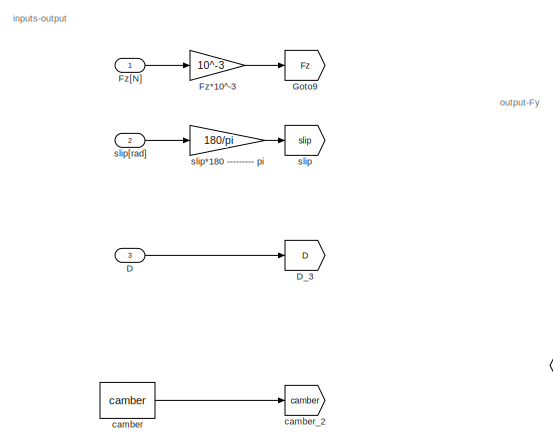
[diagram: DynamicModel1/PacejkaF - part 1/4, top left region]
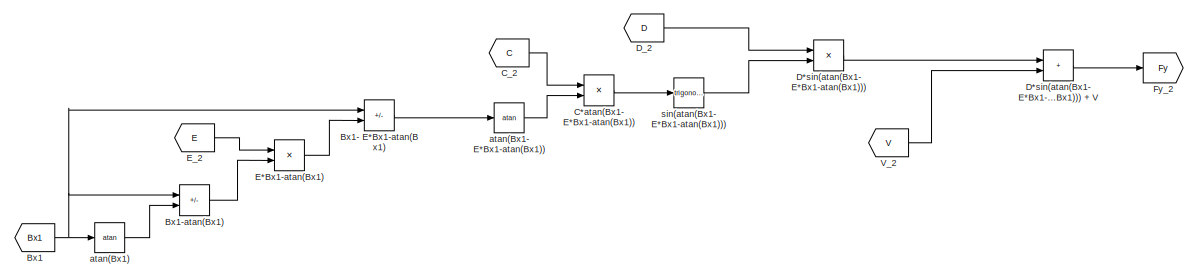
[diagram: DynamicModel1/PacejkaF - part 2/4, top center region]
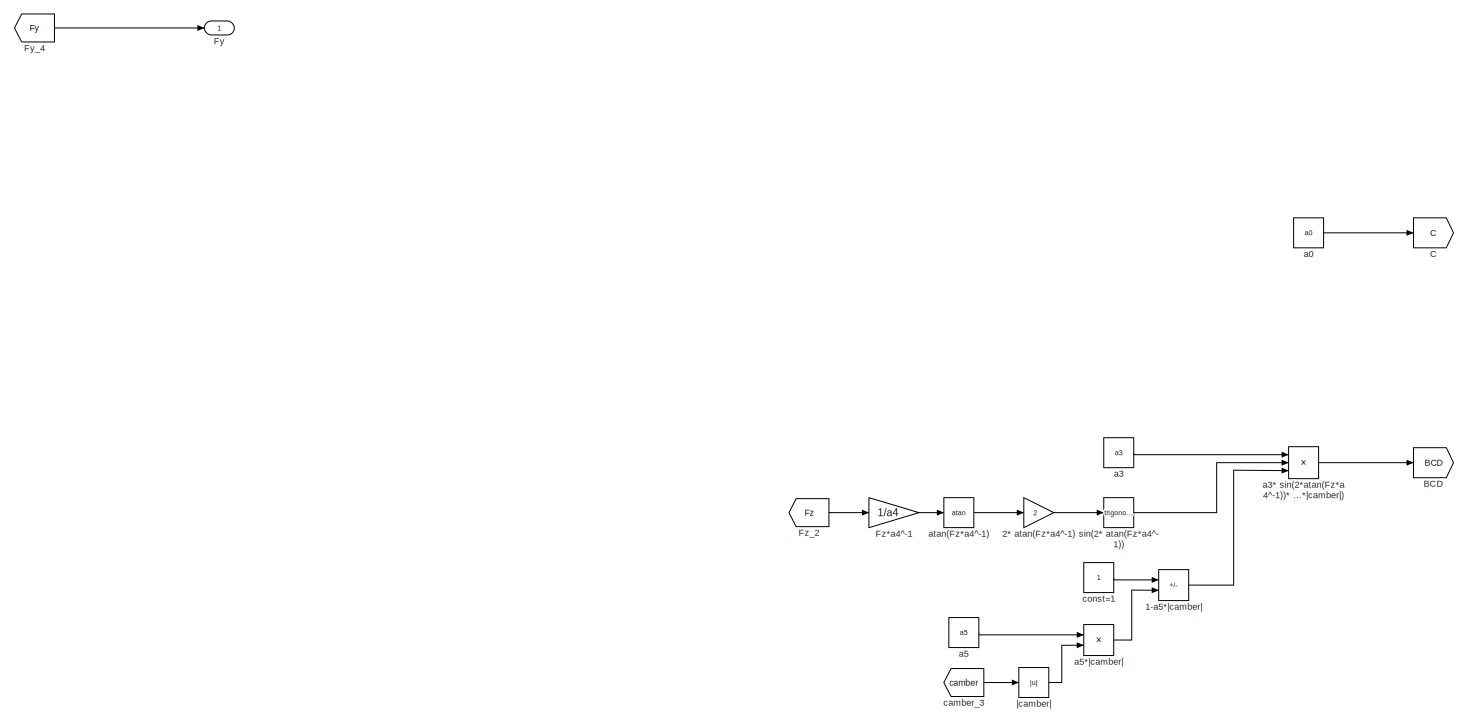
[diagram: DynamicModel1/PacejkaF - part 3/4, full width, top band]
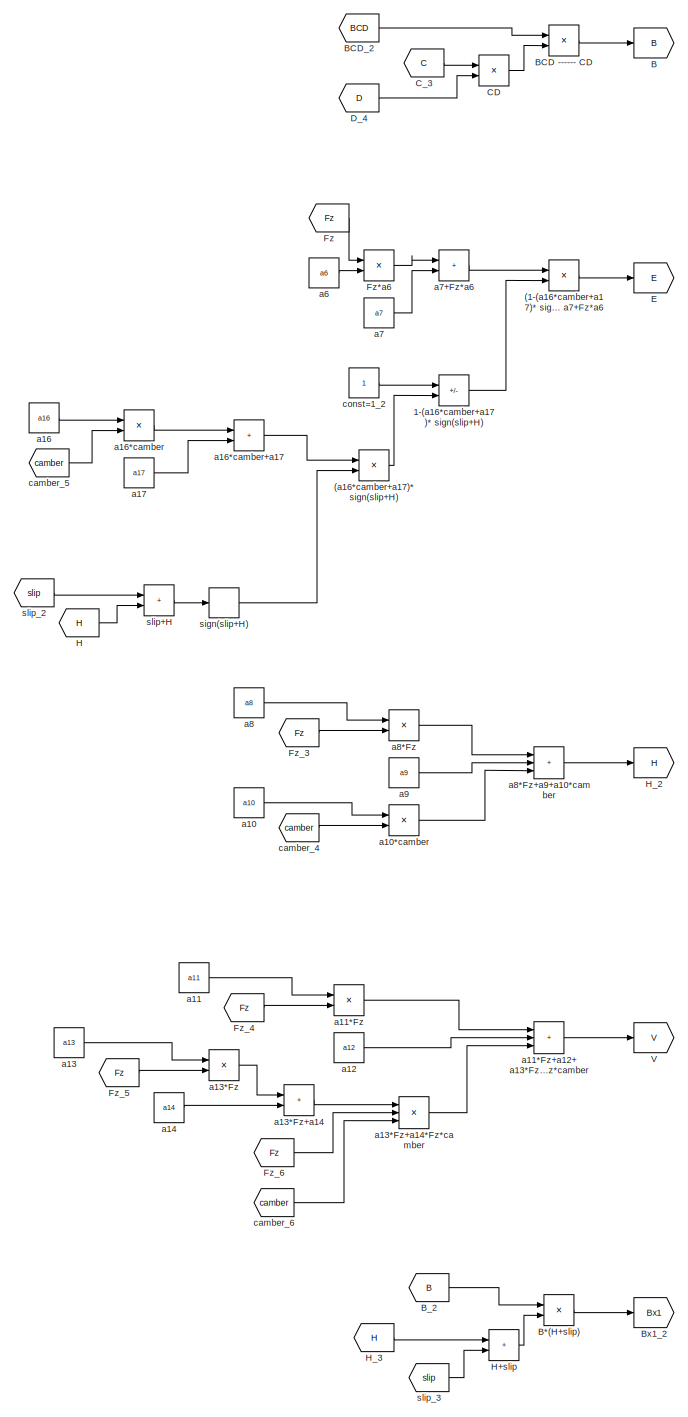
[diagram: DynamicModel1/PacejkaF - part 4/4, bottom right region]
BLOCK [SubSystem] DynamicModel1/PacejkaF
  Commented = on
  Ports = [3, 1]
  RequestExecContextInheritance = off
BLOCK [Product] DynamicModel1/PacejkaF/(1-(a16*camber+a17)* sign(slip+H))* a7+Fz*a6
  Ports = [2, 1]
BLOCK [Product] DynamicModel1/PacejkaF/(a16*camber+a17)* sign(slip+H)
  Ports = [2, 1]
BLOCK [Sum] DynamicModel1/PacejkaF/1-(a16*camber+a17)* sign(slip+H)
  IconShape = rectangular
  Inputs = +-
  Ports = [2, 1]
BLOCK [Sum] DynamicModel1/PacejkaF/1-a5*|camber|
  IconShape = rectangular
  Inputs = +-
  Ports = [2, 1]
BLOCK [Gain] DynamicModel1/PacejkaF/2* atan(Fz*a4^-1)
  Gain = 2
BLOCK [Goto] DynamicModel1/PacejkaF/B
  GotoTag = B
BLOCK [Product] DynamicModel1/PacejkaF/B*(H+slip)
  Ports = [2, 1]
BLOCK [Goto] DynamicModel1/PacejkaF/BCD
  GotoTag = BCD
BLOCK [Product] DynamicModel1/PacejkaF/BCD ------ CD
  Inputs = */
  Ports = [2, 1]
BLOCK [From] DynamicModel1/PacejkaF/BCD_2
  GotoTag = BCD
BLOCK [From] DynamicModel1/PacejkaF/B_2
  GotoTag = B
BLOCK [From] DynamicModel1/PacejkaF/Bx1
  GotoTag = Bx1
BLOCK [Sum] DynamicModel1/PacejkaF/Bx1- E*Bx1-atan(Bx1)
  IconShape = rectangular
  Inputs = +-
  Ports = [2, 1]
BLOCK [Sum] DynamicModel1/PacejkaF/Bx1-atan(Bx1)
  IconShape = rectangular
  Inputs = +-
  Ports = [2, 1]
BLOCK [Goto] DynamicModel1/PacejkaF/Bx1_2
  GotoTag = Bx1
BLOCK [Goto] DynamicModel1/PacejkaF/C
  GotoTag = C
BLOCK [Product] DynamicModel1/PacejkaF/C*atan(Bx1- E*Bx1-atan(Bx1))
  Ports = [2, 1]
BLOCK [Product] DynamicModel1/PacejkaF/CD
  Ports = [2, 1]
BLOCK [From] DynamicModel1/PacejkaF/C_2
  GotoTag = C
BLOCK [From] DynamicModel1/PacejkaF/C_3
  GotoTag = C
BLOCK [Inport] DynamicModel1/PacejkaF/D
  Port = 3
BLOCK [Product] DynamicModel1/PacejkaF/D*sin(atan(Bx1- E*Bx1-atan(Bx1)))
  Ports = [2, 1]
BLOCK [Sum] DynamicModel1/PacejkaF/D*sin(atan(Bx1- E*Bx1-atan(Bx1))) + V
  IconShape = rectangular
  Ports = [2, 1]
BLOCK [From] DynamicModel1/PacejkaF/D_2
  GotoTag = D
BLOCK [Goto] DynamicModel1/PacejkaF/D_3
  GotoTag = D
BLOCK [From] DynamicModel1/PacejkaF/D_4
  GotoTag = D
BLOCK [Goto] DynamicModel1/PacejkaF/E
  GotoTag = E
BLOCK [Product] DynamicModel1/PacejkaF/E*Bx1-atan(Bx1)
  Ports = [2, 1]
BLOCK [From] DynamicModel1/PacejkaF/E_2
  GotoTag = E
BLOCK [Outport] DynamicModel1/PacejkaF/Fy
  Unit = N
BLOCK [Goto] DynamicModel1/PacejkaF/Fy_2
  GotoTag = Fy
BLOCK [From] DynamicModel1/PacejkaF/Fy_4
  GotoTag = Fy
BLOCK [From] DynamicModel1/PacejkaF/Fz
  GotoTag = Fz
BLOCK [Gain] DynamicModel1/PacejkaF/Fz*10^-3
  Gain = 10^-3
BLOCK [Gain] DynamicModel1/PacejkaF/Fz*a4^-1
  Gain = 1/a4
BLOCK [Product] DynamicModel1/PacejkaF/Fz*a6
  Ports = [2, 1]
BLOCK [Inport] DynamicModel1/PacejkaF/Fz[N]
  Unit = N
BLOCK [From] DynamicModel1/PacejkaF/Fz_2
  GotoTag = Fz
BLOCK [From] DynamicModel1/PacejkaF/Fz_3
  GotoTag = Fz
BLOCK [From] DynamicModel1/PacejkaF/Fz_4
  GotoTag = Fz
BLOCK [From] DynamicModel1/PacejkaF/Fz_5
  GotoTag = Fz
BLOCK [From] DynamicModel1/PacejkaF/Fz_6
  GotoTag = Fz
BLOCK [Goto] DynamicModel1/PacejkaF/Goto9
  GotoTag = Fz
BLOCK [From] DynamicModel1/PacejkaF/H
  GotoTag = H
BLOCK [Sum] DynamicModel1/PacejkaF/H+slip
  IconShape = rectangular
  Ports = [2, 1]
BLOCK [Goto] DynamicModel1/PacejkaF/H_2
  GotoTag = H
BLOCK [From] DynamicModel1/PacejkaF/H_3
  GotoTag = H
BLOCK [Goto] DynamicModel1/PacejkaF/V
  GotoTag = V
BLOCK [From] DynamicModel1/PacejkaF/V_2
  GotoTag = V
BLOCK [Constant] DynamicModel1/PacejkaF/a0
  Value = a0
BLOCK [Constant] DynamicModel1/PacejkaF/a10
  Value = a10
BLOCK [Product] DynamicModel1/PacejkaF/a10*camber
  Ports = [2, 1]
BLOCK [Constant] DynamicModel1/PacejkaF/a11
  Value = a11
BLOCK [Product] DynamicModel1/PacejkaF/a11*Fz
  Ports = [2, 1]
BLOCK [Sum] DynamicModel1/PacejkaF/a11*Fz+a12+ a13*Fz+a14*Fz*camber
  IconShape = rectangular
  Inputs = +++
  Ports = [3, 1]
BLOCK [Constant] DynamicModel1/PacejkaF/a12
  Value = a12
BLOCK [Constant] DynamicModel1/PacejkaF/a13
  Value = a13
BLOCK [Product] DynamicModel1/PacejkaF/a13*Fz
  Ports = [2, 1]
BLOCK [Sum] DynamicModel1/PacejkaF/a13*Fz+a14
  IconShape = rectangular
  Ports = [2, 1]
BLOCK [Product] DynamicModel1/PacejkaF/a13*Fz+a14*Fz*camber
  Inputs = 3
  Ports = [3, 1]
BLOCK [Constant] DynamicModel1/PacejkaF/a14
  Value = a14
BLOCK [Constant] DynamicModel1/PacejkaF/a16
  Value = a16
BLOCK [Product] DynamicModel1/PacejkaF/a16*camber
  Ports = [2, 1]
BLOCK [Sum] DynamicModel1/PacejkaF/a16*camber+a17
  IconShape = rectangular
  Ports = [2, 1]
BLOCK [Constant] DynamicModel1/PacejkaF/a17
  Value = a17
BLOCK [Constant] DynamicModel1/PacejkaF/a3
  Value = a3
BLOCK [Product] DynamicModel1/PacejkaF/a3* sin(2*atan(Fz*a4^-1))* (1-a5*|camber|)
  Inputs = 3
  Ports = [3, 1]
BLOCK [Constant] DynamicModel1/PacejkaF/a5
  Value = a5
BLOCK [Product] DynamicModel1/PacejkaF/a5*|camber|
  Ports = [2, 1]
BLOCK [Constant] DynamicModel1/PacejkaF/a6
  Value = a6
BLOCK [Constant] DynamicModel1/PacejkaF/a7
  Value = a7
BLOCK [Sum] DynamicModel1/PacejkaF/a7+Fz*a6
  IconShape = rectangular
  Ports = [2, 1]
BLOCK [Constant] DynamicModel1/PacejkaF/a8
  Value = a8
BLOCK [Product] DynamicModel1/PacejkaF/a8*Fz
  Ports = [2, 1]
BLOCK [Sum] DynamicModel1/PacejkaF/a8*Fz+a9+a10*camber
  IconShape = rectangular
  Inputs = +++
  Ports = [3, 1]
BLOCK [Constant] DynamicModel1/PacejkaF/a9
  Value = a9
BLOCK [Trigonometry] DynamicModel1/PacejkaF/atan(Bx1)
  Operator = atan
  Ports = [1, 1]
BLOCK [Trigonometry] DynamicModel1/PacejkaF/atan(Bx1- E*Bx1-atan(Bx1))
  Operator = atan
  Ports = [1, 1]
BLOCK [Trigonometry] DynamicModel1/PacejkaF/atan(Fz*a4^-1)
  Operator = atan
  Ports = [1, 1]
BLOCK [Constant] DynamicModel1/PacejkaF/camber
  Value = camber
BLOCK [Goto] DynamicModel1/PacejkaF/camber_2
  GotoTag = camber
BLOCK [From] DynamicModel1/PacejkaF/camber_3
  GotoTag = camber
BLOCK [From] DynamicModel1/PacejkaF/camber_4
  GotoTag = camber
BLOCK [From] DynamicModel1/PacejkaF/camber_5
  GotoTag = camber
BLOCK [From] DynamicModel1/PacejkaF/camber_6
  GotoTag = camber
BLOCK [Constant] DynamicModel1/PacejkaF/const=1
BLOCK [Constant] DynamicModel1/PacejkaF/const=1_2
BLOCK [Signum] DynamicModel1/PacejkaF/sign(slip+H)
  ZeroCross = off
BLOCK [Trigonometry] DynamicModel1/PacejkaF/sin(2* atan(Fz*a4^-1))
  Ports = [1, 1]
BLOCK [Trigonometry] DynamicModel1/PacejkaF/sin(atan(Bx1- E*Bx1-atan(Bx1)))
  Ports = [1, 1]
BLOCK [Goto] DynamicModel1/PacejkaF/slip
  GotoTag = slip
BLOCK [Gain] DynamicModel1/PacejkaF/slip*180 --------- pi
  Gain = 180/pi
BLOCK [Sum] DynamicModel1/PacejkaF/slip+H
  IconShape = rectangular
  Ports = [2, 1]
BLOCK [Inport] DynamicModel1/PacejkaF/slip[rad]
  Port = 2
  Unit = rad
BLOCK [From] DynamicModel1/PacejkaF/slip_2
  GotoTag = slip
BLOCK [From] DynamicModel1/PacejkaF/slip_3
  GotoTag = slip
BLOCK [Abs] DynamicModel1/PacejkaF/|camber|
  SaturateOnIntegerOverflow = off
BLOCK [SubSystem] DynamicModel1/PacejkaR
  Commented = on
  Ports = [3, 1]
  RequestExecContextInheritance = off
BLOCK [Product] DynamicModel1/PacejkaR/(1-(a16*camber+a17)* sign(slip+H))* a7+Fz*a6
  Ports = [2, 1]
BLOCK [Product] DynamicModel1/PacejkaR/(a16*camber+a17)* sign(slip+H)
  Ports = [2, 1]
BLOCK [Sum] DynamicModel1/PacejkaR/1-(a16*camber+a17)* sign(slip+H)
  IconShape = rectangular
  Inputs = +-
  Ports = [2, 1]
BLOCK [Sum] DynamicModel1/PacejkaR/1-a5*|camber|
  IconShape = rectangular
  Inputs = +-
  Ports = [2, 1]
BLOCK [Gain] DynamicModel1/PacejkaR/2* atan(Fz*a4^-1)
  Gain = 2
BLOCK [Goto] DynamicModel1/PacejkaR/B
  GotoTag = B
BLOCK [Product] DynamicModel1/PacejkaR/B*(H+slip)
  Ports = [2, 1]
BLOCK [Goto] DynamicModel1/PacejkaR/BCD
  GotoTag = BCD
BLOCK [Product] DynamicModel1/PacejkaR/BCD ------ CD
  Inputs = */
  Ports = [2, 1]
BLOCK [From] DynamicModel1/PacejkaR/BCD_2
  GotoTag = BCD
BLOCK [From] DynamicModel1/PacejkaR/B_2
  GotoTag = B
BLOCK [From] DynamicModel1/PacejkaR/Bx1
  GotoTag = Bx1
BLOCK [Sum] DynamicModel1/PacejkaR/Bx1- E*Bx1-atan(Bx1)
  IconShape = rectangular
  Inputs = +-
  Ports = [2, 1]
BLOCK [Sum] DynamicModel1/PacejkaR/Bx1-atan(Bx1)
  IconShape = rectangular
  Inputs = +-
  Ports = [2, 1]
BLOCK [Goto] DynamicModel1/PacejkaR/Bx1_2
  GotoTag = Bx1
BLOCK [Goto] DynamicModel1/PacejkaR/C
  GotoTag = C
BLOCK [Product] DynamicModel1/PacejkaR/C*atan(Bx1- E*Bx1-atan(Bx1))
  Ports = [2, 1]
BLOCK [Product] DynamicModel1/PacejkaR/CD
  Ports = [2, 1]
BLOCK [From] DynamicModel1/PacejkaR/C_2
  GotoTag = C
BLOCK [From] DynamicModel1/PacejkaR/C_3
  GotoTag = C
BLOCK [Inport] DynamicModel1/PacejkaR/D
  Port = 3
BLOCK [Product] DynamicModel1/PacejkaR/D*sin(atan(Bx1- E*Bx1-atan(Bx1)))
  Ports = [2, 1]
BLOCK [Sum] DynamicModel1/PacejkaR/D*sin(atan(Bx1- E*Bx1-atan(Bx1))) + V
  IconShape = rectangular
  Ports = [2, 1]
BLOCK [From] DynamicModel1/PacejkaR/D_2
  GotoTag = D
BLOCK [Goto] DynamicModel1/PacejkaR/D_3
  GotoTag = D
BLOCK [From] DynamicModel1/PacejkaR/D_4
  GotoTag = D
BLOCK [Goto] DynamicModel1/PacejkaR/E
  GotoTag = E
BLOCK [Product] DynamicModel1/PacejkaR/E*Bx1-atan(Bx1)
  Ports = [2, 1]
BLOCK [From] DynamicModel1/PacejkaR/E_2
  GotoTag = E
BLOCK [Outport] DynamicModel1/PacejkaR/Fy
  Unit = N
BLOCK [Goto] DynamicModel1/PacejkaR/Fy_2
  GotoTag = Fy
BLOCK [From] DynamicModel1/PacejkaR/Fy_4
  GotoTag = Fy
BLOCK [From] DynamicModel1/PacejkaR/Fz
  GotoTag = Fz
BLOCK [Gain] DynamicModel1/PacejkaR/Fz*10^-3
  Gain = 10^-3
BLOCK [Gain] DynamicModel1/PacejkaR/Fz*a4^-1
  Gain = 1/a4
BLOCK [Product] DynamicModel1/PacejkaR/Fz*a6
  Ports = [2, 1]
BLOCK [Inport] DynamicModel1/PacejkaR/Fz[N]
  Unit = N
BLOCK [From] DynamicModel1/PacejkaR/Fz_2
  GotoTag = Fz
BLOCK [From] DynamicModel1/PacejkaR/Fz_3
  GotoTag = Fz
BLOCK [From] DynamicModel1/PacejkaR/Fz_4
  GotoTag = Fz
BLOCK [From] DynamicModel1/PacejkaR/Fz_5
  GotoTag = Fz
BLOCK [From] DynamicModel1/PacejkaR/Fz_6
  GotoTag = Fz
BLOCK [Goto] DynamicModel1/PacejkaR/Goto9
  GotoTag = Fz
BLOCK [From] DynamicModel1/PacejkaR/H
  GotoTag = H
BLOCK [Sum] DynamicModel1/PacejkaR/H+slip
  IconShape = rectangular
  Ports = [2, 1]
BLOCK [Goto] DynamicModel1/PacejkaR/H_2
  GotoTag = H
BLOCK [From] DynamicModel1/PacejkaR/H_3
  GotoTag = H
BLOCK [Goto] DynamicModel1/PacejkaR/V
  GotoTag = V
BLOCK [From] DynamicModel1/PacejkaR/V_2
  GotoTag = V
BLOCK [Constant] DynamicModel1/PacejkaR/a0
  Value = a0
BLOCK [Constant] DynamicModel1/PacejkaR/a10
  Value = a10
BLOCK [Product] DynamicModel1/PacejkaR/a10*camber
  Ports = [2, 1]
BLOCK [Constant] DynamicModel1/PacejkaR/a11
  Value = a11
BLOCK [Product] DynamicModel1/PacejkaR/a11*Fz
  Ports = [2, 1]
BLOCK [Sum] DynamicModel1/PacejkaR/a11*Fz+a12+ a13*Fz+a14*Fz*camber
  IconShape = rectangular
  Inputs = +++
  Ports = [3, 1]
BLOCK [Constant] DynamicModel1/PacejkaR/a12
  Value = a12
BLOCK [Constant] DynamicModel1/PacejkaR/a13
  Value = a13
BLOCK [Product] DynamicModel1/PacejkaR/a13*Fz
  Ports = [2, 1]
BLOCK [Sum] DynamicModel1/PacejkaR/a13*Fz+a14
  IconShape = rectangular
  Ports = [2, 1]
BLOCK [Product] DynamicModel1/PacejkaR/a13*Fz+a14*Fz*camber
  Inputs = 3
  Ports = [3, 1]
BLOCK [Constant] DynamicModel1/PacejkaR/a14
  Value = a14
BLOCK [Constant] DynamicModel1/PacejkaR/a16
  Value = a16
BLOCK [Product] DynamicModel1/PacejkaR/a16*camber
  Ports = [2, 1]
BLOCK [Sum] DynamicModel1/PacejkaR/a16*camber+a17
  IconShape = rectangular
  Ports = [2, 1]
BLOCK [Constant] DynamicModel1/PacejkaR/a17
  Value = a17
BLOCK [Constant] DynamicModel1/PacejkaR/a3
  Value = a3
BLOCK [Product] DynamicModel1/PacejkaR/a3* sin(2*atan(Fz*a4^-1))* (1-a5*|camber|)
  Inputs = 3
  Ports = [3, 1]
BLOCK [Constant] DynamicModel1/PacejkaR/a5
  Value = a5
BLOCK [Product] DynamicModel1/PacejkaR/a5*|camber|
  Ports = [2, 1]
BLOCK [Constant] DynamicModel1/PacejkaR/a6
  Value = a6
BLOCK [Constant] DynamicModel1/PacejkaR/a7
  Value = a7
BLOCK [Sum] DynamicModel1/PacejkaR/a7+Fz*a6
  IconShape = rectangular
  Ports = [2, 1]
BLOCK [Constant] DynamicModel1/PacejkaR/a8
  Value = a8
BLOCK [Product] DynamicModel1/PacejkaR/a8*Fz
  Ports = [2, 1]
BLOCK [Sum] DynamicModel1/PacejkaR/a8*Fz+a9+a10*camber
  IconShape = rectangular
  Inputs = +++
  Ports = [3, 1]
BLOCK [Constant] DynamicModel1/PacejkaR/a9
  Value = a9
BLOCK [Trigonometry] DynamicModel1/PacejkaR/atan(Bx1)
  Operator = atan
  Ports = [1, 1]
BLOCK [Trigonometry] DynamicModel1/PacejkaR/atan(Bx1- E*Bx1-atan(Bx1))
  Operator = atan
  Ports = [1, 1]
BLOCK [Trigonometry] DynamicModel1/PacejkaR/atan(Fz*a4^-1)
  Operator = atan
  Ports = [1, 1]
BLOCK [Constant] DynamicModel1/PacejkaR/camber
  Value = camber
BLOCK [Goto] DynamicModel1/PacejkaR/camber_2
  GotoTag = camber
BLOCK [From] DynamicModel1/PacejkaR/camber_3
  GotoTag = camber
BLOCK [From] DynamicModel1/PacejkaR/camber_4
  GotoTag = camber
BLOCK [From] DynamicModel1/PacejkaR/camber_5
  GotoTag = camber
BLOCK [From] DynamicModel1/PacejkaR/camber_6
  GotoTag = camber
BLOCK [Constant] DynamicModel1/PacejkaR/const=1
BLOCK [Constant] DynamicModel1/PacejkaR/const=1_2
BLOCK [Signum] DynamicModel1/PacejkaR/sign(slip+H)
  ZeroCross = off
BLOCK [Trigonometry] DynamicModel1/PacejkaR/sin(2* atan(Fz*a4^-1))
  Ports = [1, 1]
BLOCK [Trigonometry] DynamicModel1/PacejkaR/sin(atan(Bx1- E*Bx1-atan(Bx1)))
  Ports = [1, 1]
BLOCK [Goto] DynamicModel1/PacejkaR/slip
  GotoTag = slip
BLOCK [Gain] DynamicModel1/PacejkaR/slip*180 --------- pi
  Gain = 180/pi
BLOCK [Sum] DynamicModel1/PacejkaR/slip+H
  IconShape = rectangular
  Ports = [2, 1]
BLOCK [Inport] DynamicModel1/PacejkaR/slip[rad]
  Port = 2
  Unit = rad
BLOCK [From] DynamicModel1/PacejkaR/slip_2
  GotoTag = slip
BLOCK [From] DynamicModel1/PacejkaR/slip_3
  GotoTag = slip
BLOCK [Abs] DynamicModel1/PacejkaR/|camber|
  SaturateOnIntegerOverflow = off
BLOCK [Sum] DynamicModel1/Plus
  Commented = on
  IconShape = rectangular
  Ports = [2, 1]
BLOCK [Sum] DynamicModel1/Plus1
  Commented = on
  IconShape = rectangular
  Ports = [2, 1]
BLOCK [Product] DynamicModel1/Product
  Commented = on
  Ports = [2, 1]
BLOCK [Product] DynamicModel1/Product1
  Commented = on
  Ports = [2, 1]
BLOCK [Product] DynamicModel1/Product10
  Commented = on
  Ports = [2, 1]
BLOCK [Product] DynamicModel1/Product2
  Commented = on
  Ports = [2, 1]
BLOCK [Product] DynamicModel1/Product3
  Commented = on
  Ports = [2, 1]
BLOCK [Product] DynamicModel1/Product4
  Commented = on
  Ports = [2, 1]
BLOCK [Product] DynamicModel1/Product5
  Commented = on
  Ports = [2, 1]
BLOCK [Product] DynamicModel1/Product6
  Commented = on
  Ports = [2, 1]
BLOCK [Product] DynamicModel1/Product7
  Commented = on
  Ports = [2, 1]
BLOCK [Product] DynamicModel1/Product8
  Commented = on
  Ports = [2, 1]
BLOCK [Product] DynamicModel1/Product9
  Commented = on
  Ports = [2, 1]
BLOCK [Goto] DynamicModel1/RearWear
  Commented = on
  GotoTag = RearWear
BLOCK [Gain] DynamicModel1/RearWearDot
  Commented = on
  Gain = K_wear/TyreContactAreaRear
BLOCK [Integrator] DynamicModel1/RearWearIntegrator
  Commented = on
  Ports = [1, 1]
BLOCK [From] DynamicModel1/Rear_Wear
  Commented = on
  GotoTag = RearWear
BLOCK [Gain] DynamicModel1/Rear_Wear*10^9
  Commented = on
  Gain = 10^9
BLOCK [Reference] DynamicModel1/Saturation Dynamic  REF=simulink/Discontinuities/Saturation
Dynamic
  Ports = [3, 1]
  SourceBlock = simulink/Discontinuities/Saturation\nDynamic
  SourceProductBaseCode = SL
  SourceType = Saturation Dynamic
BLOCK [Reference] DynamicModel1/Saturation Dynamic1  REF=simulink/Discontinuities/Saturation
Dynamic
  Ports = [3, 1]
  SourceBlock = simulink/Discontinuities/Saturation\nDynamic
  SourceProductBaseCode = SL
  SourceType = Saturation Dynamic
BLOCK [Trigonometry] DynamicModel1/Sin
  Commented = on
  Ports = [1, 1]
BLOCK [Trigonometry] DynamicModel1/Sin1
  Commented = on
  Operator = cos
  Ports = [1, 1]
BLOCK [Trigonometry] DynamicModel1/Sin2
  Commented = on
  Ports = [1, 1]
BLOCK [Trigonometry] DynamicModel1/Sin3
  Commented = on
  Operator = cos
  Ports = [1, 1]
BLOCK [Trigonometry] DynamicModel1/Sin4
  Commented = on
  Operator = cos
  Ports = [1, 1]
BLOCK [Trigonometry] DynamicModel1/Sin5
  Commented = on
  Operator = cos
  Ports = [1, 1]
BLOCK [Sum] DynamicModel1/Subtract
  Commented = on
  IconShape = rectangular
  Inputs = +-
  Ports = [2, 1]
BLOCK [Sum] DynamicModel1/Subtract1
  Commented = on
  IconShape = rectangular
  Inputs = +-
  Ports = [2, 1]
BLOCK [Terminator] DynamicModel1/Terminator5
BLOCK [Product] DynamicModel1/a*F_xF*sin(delta)
  Inputs = 3
  Ports = [3, 1]
BLOCK [Sum] DynamicModel1/a*F_xF*sin(delta)+ a*F_yF*cos(delta)+ b*F_yR
  IconShape = rectangular
  Inputs = ++-
  NameLocation = top
  Ports = [3, 1]
BLOCK [Product] DynamicModel1/a*F_yF*cos(delta)
  Inputs = 3
  Ports = [3, 1]
BLOCK [Gain] DynamicModel1/a*x6
  Gain = a
BLOCK [Sum] DynamicModel1/a*x6+vT*sin(x5)
  IconShape = rectangular
  Ports = [2, 1]
BLOCK [Product] DynamicModel1/a*x6+vT*sin(x5) -------------------- vT*cos(x5)
  Inputs = */
  Ports = [2, 1]
BLOCK [Trigonometry] DynamicModel1/atan(-b*x6+vT*sin(x5) -------------------- vT*cos(x5))
  Operator = atan
  Ports = [1, 1]
BLOCK [Trigonometry] DynamicModel1/atan(a*x6+vT*sin(x5) -------------------- vT*cos(x5))
  Operator = atan
  Ports = [1, 1]
BLOCK [Product] DynamicModel1/b*F_yR
  Ports = [2, 1]
BLOCK [Gain] DynamicModel1/b*x6
  Gain = b
BLOCK [Product] DynamicModel1/b*x6+vT*sin(x5) -------------------- vT*cos(x5)
  Inputs = */
  Ports = [2, 1]
BLOCK [Constant] DynamicModel1/bankingAngle
  Commented = on
  Value = turn
BLOCK [Constant] DynamicModel1/bankingThreshL
  Commented = on
  Value = longStraight
BLOCK [Constant] DynamicModel1/bankingThreshS
  Commented = on
  Value = shortStraight
BLOCK [Gain] DynamicModel1/bankingToRad
  Commented = on
  Gain = pi/180
BLOCK [From] DynamicModel1/body_slip
  GotoTag = x5_slip_angle
BLOCK [From] DynamicModel1/body_slip_2
  GotoTag = x5_slip_angle
BLOCK [From] DynamicModel1/body_slip_3
  GotoTag = x5_slip_angle
BLOCK [From] DynamicModel1/body_slip_4
  GotoTag = x5_slip_angle
BLOCK [From] DynamicModel1/body_slip_8
  GotoTag = x5_slip_angle
BLOCK [Constant] DynamicModel1/c_fuel
  Commented = on
  Value = C_fuel
BLOCK [Constant] DynamicModel1/const=0
  Commented = on
  Value = 0
BLOCK [Constant] DynamicModel1/const=0_2
  Commented = on
  Value = 0
BLOCK [Constant] DynamicModel1/const=2
  Commented = on
  Value = 2
BLOCK [Constant] DynamicModel1/const=2_2
  Commented = on
  Value = 2
BLOCK [Constant] DynamicModel1/const=2_3
  Commented = on
  Value = 2
BLOCK [Constant] DynamicModel1/const=2_4
  Commented = on
  Value = 2
BLOCK [Constant] DynamicModel1/const=2_5
  Commented = on
  Value = 2
BLOCK [Constant] DynamicModel1/const=2_6
  Commented = on
  Value = 2
BLOCK [Constant] DynamicModel1/const=a
  Value = a
BLOCK [Constant] DynamicModel1/const=b
  Value = b
BLOCK [Gain] DynamicModel1/const=g
  Commented = on
  Gain = g
BLOCK [Trigonometry] DynamicModel1/cos(delta)_2
  Operator = cos
  Ports = [1, 1]
BLOCK [Trigonometry] DynamicModel1/cos(x3+x5)
  Operator = cos
  Ports = [1, 1]
BLOCK [Trigonometry] DynamicModel1/cos(x5)
  Operator = cos
  Ports = [1, 1]
BLOCK [Trigonometry] DynamicModel1/cos(x5)_2
  Operator = cos
  Ports = [1, 1]
BLOCK [Trigonometry] DynamicModel1/cos(x5)_3
  Operator = cos
  Ports = [1, 1]
BLOCK [Trigonometry] DynamicModel1/cos(x5-delta)
  Operator = cos
  Ports = [1, 1]
BLOCK [Trigonometry] DynamicModel1/cos(x5-delta)_2
  Operator = cos
  Ports = [1, 1]
BLOCK [Inport] DynamicModel1/curvature
  Port = 4
BLOCK [Constant] DynamicModel1/curveCenters
  Commented = on
  Value = curveCenters
BLOCK [Goto] DynamicModel1/delta
  GotoTag = delta
BLOCK [From] DynamicModel1/delta_2
  GotoTag = delta
BLOCK [From] DynamicModel1/delta_3
  GotoTag = delta
BLOCK [From] DynamicModel1/delta_4
  GotoTag = delta
BLOCK [From] DynamicModel1/delta_5
  GotoTag = delta
BLOCK [Integrator] DynamicModel1/deltapsiinteg
  Commented = on
  Ports = [1, 1]
BLOCK [Integrator] DynamicModel1/deltapsiinteg1
  Commented = on
  Ports = [1, 1]
BLOCK [Outport] DynamicModel1/e
  Port = 7
BLOCK [Integrator] DynamicModel1/einteg
  Commented = on
  Ports = [1, 1]
BLOCK [Integrator] DynamicModel1/einteg1
  Commented = on
  Ports = [1, 1]
BLOCK [Gain] DynamicModel1/eps
  Gain = 0.99999
BLOCK [Gain] DynamicModel1/eps_2
  Gain = 0.99999
BLOCK [Constant] DynamicModel1/errorthreshold
  Value = errorThreshold
BLOCK [Gain] DynamicModel1/g*sin(gamma)
  Commented = on
  Gain = g
BLOCK [From] DynamicModel1/gamma
  Commented = on
  GotoTag = gamma
BLOCK [Goto] DynamicModel1/gamma_2
  Commented = on
  GotoTag = gamma
BLOCK [SubSystem] DynamicModel1/lateral_error
  ErrorFcn = Stateflow.Translate.translate
  PermitHierarchicalResolution = ExplicitOnly
  Ports = [6, 2]
  RequestExecContextInheritance = off
  SFBlockType = MATLAB Function
  TreatAsAtomicUnit = on
BLOCK [Demux] DynamicModel1/lateral_error/ Demux 
  Outputs = 1
  Ports = [1, 1]
BLOCK [S-Function] DynamicModel1/lateral_error/ SFunction 
  EnableBusSupport = on
  FunctionName = sf_sfun
  PortCounts = [6 3]
  Ports = [6, 3]
  SFcnIsStateOwnerBlock = off
  SFunctionDeploymentMode = off
  Tag = Stateflow S-Function 2
BLOCK [Terminator] DynamicModel1/lateral_error/ Terminator 
BLOCK [Inport] DynamicModel1/lateral_error/cur_yaw
  Port = 4
BLOCK [Inport] DynamicModel1/lateral_error/egox
BLOCK [Inport] DynamicModel1/lateral_error/egoy
  Port = 2
BLOCK [Inport] DynamicModel1/lateral_error/errorThreshold
  Port = 6
BLOCK [Outport] DynamicModel1/lateral_error/index
  Port = 2
BLOCK [Inport] DynamicModel1/lateral_error/lookAhead
  Port = 5
BLOCK [Outport] DynamicModel1/lateral_error/ref
BLOCK [Inport] DynamicModel1/lateral_error/trajec
  Port = 3
BLOCK [Constant] DynamicModel1/lookahead
  Value = lookahead
BLOCK [Goto] DynamicModel1/mT
  Commented = on
  GotoTag = mT
BLOCK [Product] DynamicModel1/mT*vT
  Ports = [2, 1]
BLOCK [Product] DynamicModel1/mT*vt*x6
  Inputs = 3
  Ports = [3, 1]
BLOCK [Sum] DynamicModel1/mT+F_lift
  Commented = on
  IconShape = rectangular
  Ports = [2, 1]
BLOCK [From] DynamicModel1/mT_2
  GotoTag = mT
BLOCK [From] DynamicModel1/mT_3
  GotoTag = mT
BLOCK [From] DynamicModel1/mT_4
  GotoTag = mT
BLOCK [From] DynamicModel1/mT_5
  Commented = on
  GotoTag = mT
BLOCK [From] DynamicModel1/mT_6
  Commented = on
  GotoTag = mT
BLOCK [Goto] DynamicModel1/mT_dot
  Commented = on
  GotoTag = mTdot
BLOCK [UnaryMinus] DynamicModel1/mTdot_2
  Commented = on
BLOCK [From] DynamicModel1/mTdot_3
  Commented = on
  GotoTag = mTdot
BLOCK [Integrator] DynamicModel1/mTintegrator
  Commented = on
  InitialCondition = mT
  LimitOutput = on
  LowerSaturationLimit = mT - m_fuel
  Ports = [1, 1]
  UpperSaturationLimit = mT
BLOCK [SubSystem] DynamicModel1/periodic
  ErrorFcn = Stateflow.Translate.translate
  PermitHierarchicalResolution = ExplicitOnly
  Ports = [1, 1]
  RequestExecContextInheritance = off
  SFBlockType = MATLAB Function
  TreatAsAtomicUnit = on
BLOCK [Demux] DynamicModel1/periodic/ Demux 
  Outputs = 1
  Ports = [1, 1]
BLOCK [S-Function] DynamicModel1/periodic/ SFunction 
  EnableBusSupport = on
  FunctionName = sf_sfun
  PortCounts = [1 2]
  Ports = [1, 2]
  SFcnIsStateOwnerBlock = off
  SFunctionDeploymentMode = off
  Tag = Stateflow S-Function 5
BLOCK [Terminator] DynamicModel1/periodic/ Terminator 
BLOCK [Outport] DynamicModel1/periodic/periodicYaw
BLOCK [Inport] DynamicModel1/periodic/yaw
BLOCK [Outport] DynamicModel1/prova_ref
  Port = 8
BLOCK [From] DynamicModel1/rho
  Commented = on
  GotoTag = rho
BLOCK [Gain] DynamicModel1/rho*area*Cz*0.5
  Commented = on
  Gain = Area*Cz*0.5
BLOCK [Gain] DynamicModel1/rho*area*cx*0.5
  Commented = on
  Gain = Area*Cx*0.5
BLOCK [From] DynamicModel1/rho_2
  Commented = on
  GotoTag = rho
BLOCK [Trigonometry] DynamicModel1/sin(delta)_2
  Ports = [1, 1]
BLOCK [Trigonometry] DynamicModel1/sin(gamma)
  Commented = on
  Ports = [1, 1]
BLOCK [Trigonometry] DynamicModel1/sin(x3+x5)
  Ports = [1, 1]
BLOCK [Trigonometry] DynamicModel1/sin(x5)
  Ports = [1, 1]
BLOCK [Trigonometry] DynamicModel1/sin(x5)_2
  Ports = [1, 1]
BLOCK [Trigonometry] DynamicModel1/sin(x5)_3
  Ports = [1, 1]
BLOCK [Trigonometry] DynamicModel1/sin(x5)_4
  Ports = [1, 1]
BLOCK [Trigonometry] DynamicModel1/sin(x5-delta)
  Ports = [1, 1]
BLOCK [Trigonometry] DynamicModel1/sin(x5-delta)_2
  Ports = [1, 1]
BLOCK [Outport] DynamicModel1/slip_angle[rad]
  Port = 5
  Unit = rad
BLOCK [From] DynamicModel1/slip_angle_F
  GotoTag = slip_angle_F
BLOCK [From] DynamicModel1/slip_angle_F1
  Commented = on
  GotoTag = slip_angle_F
BLOCK [Goto] DynamicModel1/slip_angle_F_2
  GotoTag = slip_angle_F
BLOCK [Sum] DynamicModel1/slip_angle_F_3
  IconShape = rectangular
  Inputs = +-
  Ports = [2, 1]
BLOCK [From] DynamicModel1/slip_angle_R
  GotoTag = slip_angle_R
BLOCK [From] DynamicModel1/slip_angle_R1
  Commented = on
  GotoTag = slip_angle_R
BLOCK [Goto] DynamicModel1/slip_angle_R_2
  GotoTag = slip_angle_R
BLOCK [Sqrt] DynamicModel1/sqrt(FxF^2+FyF^2)
  Commented = on
BLOCK [Sqrt] DynamicModel1/sqrt(FxR^2+FyR^2)
  Commented = on
BLOCK [Inport] DynamicModel1/steering wheel angle[rad]
  Port = 3
  Unit = rad
BLOCK [Switch] DynamicModel1/switch_FxF-0
  Commented = on
  InputSameDT = off
  SaturateOnIntegerOverflow = off
BLOCK [Switch] DynamicModel1/switch_FxR-0
  Commented = on
  InputSameDT = off
  SaturateOnIntegerOverflow = off
BLOCK [Constant] DynamicModel1/trajec
  Value = trajec
BLOCK [From] DynamicModel1/vT
  GotoTag = x4_vT
BLOCK [Product] DynamicModel1/vT*cos(x3+x5)
  Ports = [2, 1]
BLOCK [Product] DynamicModel1/vT*cos(x5)_2
  Ports = [2, 1]
BLOCK [Product] DynamicModel1/vT*sin(x3+x5)
  Ports = [2, 1]
BLOCK [Product] DynamicModel1/vT*sin(x5)_2
  Ports = [2, 1]
BLOCK [Product] DynamicModel1/vT*sin(x5)_3
  Ports = [2, 1]
BLOCK [Outport] DynamicModel1/vT[m//s]
  Port = 4
  Unit = m/s
BLOCK [Math] DynamicModel1/vT^2
  Commented = on
  Operator = pow
  Ports = [2, 1]
BLOCK [Math] DynamicModel1/vT^2_2
  Commented = on
  Operator = pow
  Ports = [2, 1]
BLOCK [From] DynamicModel1/vT_2
  Commented = on
  GotoTag = x4_vT
BLOCK [From] DynamicModel1/vT_3
  GotoTag = x4_vT
BLOCK [From] DynamicModel1/vT_4
  GotoTag = x4_vT
BLOCK [From] DynamicModel1/vT_5
  Commented = on
  GotoTag = x4_vT
BLOCK [From] DynamicModel1/vT_6
  Commented = on
  GotoTag = x4_vT
BLOCK [From] DynamicModel1/vT_7
  GotoTag = x4_vT
BLOCK [From] DynamicModel1/vT_8
  GotoTag = x4_vT
BLOCK [Goto] DynamicModel1/x1
  GotoTag = x1_x_pos
BLOCK [From] DynamicModel1/x1_2
  GotoTag = x1_x_pos
BLOCK [Goto] DynamicModel1/x1dot
  GotoTag = x1_dot
BLOCK [From] DynamicModel1/x1dot_2
  GotoTag = x1_dot
BLOCK [Integrator] DynamicModel1/x1integrator
  InitialCondition = init_x_pos
  Ports = [1, 1]
BLOCK [Goto] DynamicModel1/x2
  GotoTag = x2_y_pos
BLOCK [From] DynamicModel1/x2_2
  GotoTag = x2_y_pos
BLOCK [Goto] DynamicModel1/x2dot
  GotoTag = x2_dot
BLOCK [From] DynamicModel1/x2dot_2
  GotoTag = x2_dot
BLOCK [Integrator] DynamicModel1/x2integrator
  InitialCondition = init_y_pos
  Ports = [1, 1]
BLOCK [Goto] DynamicModel1/x3
  GotoTag = x3_yaw_angle
BLOCK [Sum] DynamicModel1/x3+x5
  IconShape = rectangular
  Ports = [2, 1]
BLOCK [From] DynamicModel1/x3_2
  GotoTag = x3_yaw_angle
BLOCK [Goto] DynamicModel1/x3dot
  GotoTag = x3_dot
BLOCK [From] DynamicModel1/x3dot_2
  GotoTag = x3_dot
BLOCK [Integrator] DynamicModel1/x3integrator
  InitialCondition = init_yaw
  Ports = [1, 1]
BLOCK [Goto] DynamicModel1/x4
  GotoTag = x4_vT
BLOCK [From] DynamicModel1/x4_2
  GotoTag = x4_vT
BLOCK [Goto] DynamicModel1/x4dot
  GotoTag = x4_dot
BLOCK [Sum] DynamicModel1/x4dot*mT
  IconShape = rectangular
  Inputs = ++++-+
  Ports = [6, 1]
BLOCK [Product] DynamicModel1/x4dot_2
  Inputs = */
  Ports = [2, 1]
BLOCK [From] DynamicModel1/x4dot_3
  GotoTag = x4_dot
BLOCK [Integrator] DynamicModel1/x4integrator
  InitialCondition = 10
  LimitOutput = on
  LowerSaturationLimit = 0
  Ports = [1, 1]
BLOCK [Goto] DynamicModel1/x5
  GotoTag = x5_slip_angle
BLOCK [Sum] DynamicModel1/x5-delta
  IconShape = rectangular
  Inputs = +-
  Ports = [2, 1]
BLOCK [Sum] DynamicModel1/x5-delta_2
  IconShape = rectangular
  Inputs = +-
  Ports = [2, 1]
BLOCK [From] DynamicModel1/x5_2
  GotoTag = x5_slip_angle
BLOCK [Goto] DynamicModel1/x5_dot
  GotoTag = x5_dot
BLOCK [Sum] DynamicModel1/x5dot*mT*x4
  IconShape = rectangular
  Inputs = +-+--+
  Ports = [6, 1]
BLOCK [Product] DynamicModel1/x5dot_2
  Inputs = */
  Ports = [2, 1]
BLOCK [From] DynamicModel1/x5dot_3
  GotoTag = x5_dot
BLOCK [Integrator] DynamicModel1/x5integrator
  Ports = [1, 1]
BLOCK [Goto] DynamicModel1/x6
  GotoTag = x6_yaw_rate
BLOCK [From] DynamicModel1/x6_2
  GotoTag = x6_yaw_rate
BLOCK [Gain] DynamicModel1/x6_dot_2
  Gain = 1/IT
BLOCK [Goto] DynamicModel1/x6dot
  GotoTag = x6_dot
BLOCK [From] DynamicModel1/x6dot_2
  GotoTag = x6_dot
BLOCK [Integrator] DynamicModel1/x6integrator
  Ports = [1, 1]
BLOCK [Outport] DynamicModel1/x_pos[m]
  Unit = m
BLOCK [From] DynamicModel1/xpos
  Commented = on
  GotoTag = x1_x_pos
BLOCK [Outport] DynamicModel1/y_pos[m]
  Port = 2
  Unit = m
BLOCK [From] DynamicModel1/yaw_angle
  GotoTag = x3_yaw_angle
BLOCK [Outport] DynamicModel1/yaw_angle[rad]
  Port = 3
  Unit = rad
BLOCK [From] DynamicModel1/yaw_rate
  GotoTag = x6_yaw_rate
BLOCK [Outport] DynamicModel1/yaw_rate[rad//s]
  Port = 6
  Unit = rad/s
BLOCK [From] DynamicModel1/yaw_rate_2
  GotoTag = x6_yaw_rate
BLOCK [From] DynamicModel1/yaw_rate_3
  GotoTag = x6_yaw_rate
BLOCK [From] DynamicModel1/yaw_rate_4
  GotoTag = x6_yaw_rate
BLOCK [From] DynamicModel1/ypos
  Commented = on
  GotoTag = x2_y_pos
BLOCK [From] From
  Commented = on
  GotoTag = x
BLOCK [From] From1
  Commented = on
  GotoTag = y
BLOCK [From] From2
  Commented = on
  GotoTag = yaw
BLOCK [From] From3
  GotoTag = x
BLOCK [From] From4
  GotoTag = y
BLOCK [From] From5
  GotoTag = x
BLOCK [From] From6
  GotoTag = y
BLOCK [Gain] Gain
  Gain = 180/pi
BLOCK [Gain] Gain1
  Gain = 180/pi
  NameLocation = left
BLOCK [Gain] Gain2
  Gain = pi/180
BLOCK [Goto] Goto
  GotoTag = x
BLOCK [Goto] Goto1
  GotoTag = y
BLOCK [Goto] Goto2
  GotoTag = yaw
BLOCK [Reference] Lateral Controller Stanley  REF=drivingvehiclecontroller/Lateral Controller Stanley
  Ports = [7, 1]
  SourceBlock = drivingvehiclecontroller/Lateral Controller Stanley
  SourceProductBaseCode = DR
  SourceType = Lateral Controller Stanley
BLOCK [Reference] PID Controller  REF=simulink/Continuous/PID Controller
  Ports = [1, 1]
  SourceBlock = simulink/Continuous/PID Controller
  SourceProductBaseCode = SL
  SourceType = PID 1dof
BLOCK [Product] Product
  Ports = [2, 1]
BLOCK [Sum] Sum
  Inputs = |+-
  Ports = [2, 1]
BLOCK [Terminator] Terminator
BLOCK [Terminator] Terminator1
BLOCK [Terminator] Terminator2
BLOCK [Terminator] Terminator3
BLOCK [Terminator] Terminator4
BLOCK [Terminator] Terminator5
  Commented = on
BLOCK [Terminator] Terminator6
BLOCK [Terminator] Terminator7
  NameLocation = top
BLOCK [TransferFcn] Transfer Fcn
  Commented = on
  Denominator = [1 1000 0]
  Numerator = [969.21 969.21*2*0.2873 969.21*0.2873^2]
BLOCK [TransferFcn] Transfer Fcn1
  Commented = on
  Denominator = [1 2000 1000^2 0]
  Numerator = [3107.9 3107.9*3*0.2873 3107.9*0.2873^2 0.2873^3]
BLOCK [Reference] XY Graph  REF=simulink/Sinks/XY Graph
  Ports = [2]
  SourceBlock = simulink/Sinks/XY Graph
  SourceProductBaseCode = SL
  SourceType = XY scope.
BLOCK [Constant] errorthreshold
  Commented = on
  Value = errorThreshold
BLOCK [SubSystem] lateral_error
  Commented = on
  ErrorFcn = Stateflow.Translate.translate
  PermitHierarchicalResolution = ExplicitOnly
  Ports = [6, 2]
  RequestExecContextInheritance = off
  SFBlockType = MATLAB Function
  TreatAsAtomicUnit = on
BLOCK [Demux] lateral_error/ Demux 
  Outputs = 1
  Ports = [1, 1]
BLOCK [S-Function] lateral_error/ SFunction 
  EnableBusSupport = on
  FunctionName = sf_sfun
  PortCounts = [6 3]
  Ports = [6, 3]
  SFcnIsStateOwnerBlock = off
  SFunctionDeploymentMode = off
  Tag = Stateflow S-Function 7
BLOCK [Terminator] lateral_error/ Terminator 
BLOCK [Inport] lateral_error/cur_yaw
  Port = 4
BLOCK [Inport] lateral_error/egox
BLOCK [Inport] lateral_error/egoy
  Port = 2
BLOCK [Inport] lateral_error/errorThreshold
  Port = 6
BLOCK [Outport] lateral_error/index
  Port = 2
BLOCK [Inport] lateral_error/lookAhead
  Port = 5
BLOCK [Outport] lateral_error/ref
BLOCK [Inport] lateral_error/trajec
  Port = 3
BLOCK [Constant] lookahead
  Commented = on
  Value = lookahead
BLOCK [SubSystem] periodic
  Commented = on
  ErrorFcn = Stateflow.Translate.translate
  PermitHierarchicalResolution = ExplicitOnly
  Ports = [1, 1]
  RequestExecContextInheritance = off
  SFBlockType = MATLAB Function
  TreatAsAtomicUnit = on
BLOCK [Demux] periodic/ Demux 
  Outputs = 1
  Ports = [1, 1]
BLOCK [S-Function] periodic/ SFunction 
  EnableBusSupport = on
  FunctionName = sf_sfun
  PortCounts = [1 2]
  Ports = [1, 2]
  SFcnIsStateOwnerBlock = off
  SFunctionDeploymentMode = off
  Tag = Stateflow S-Function 4
BLOCK [Terminator] periodic/ Terminator 
BLOCK [Outport] periodic/periodicYaw
BLOCK [Inport] periodic/yaw
BLOCK [SubSystem] prova
  ErrorFcn = Stateflow.Translate.translate
  PermitHierarchicalResolution = ExplicitOnly
  Ports = [4, 1]
  RequestExecContextInheritance = off
  SFBlockType = MATLAB Function
  TreatAsAtomicUnit = on
BLOCK [Demux] prova/ Demux 
  Outputs = 1
  Ports = [1, 1]
BLOCK [S-Function] prova/ SFunction 
  EnableBusSupport = on
  FunctionName = sf_sfun
  PortCounts = [4 2]
  Ports = [4, 2]
  SFcnIsStateOwnerBlock = off
  SFunctionDeploymentMode = off
  Tag = Stateflow S-Function 1
BLOCK [Terminator] prova/ Terminator 
BLOCK [Outport] prova/curvature
BLOCK [Inport] prova/curveCenters
  Port = 3
BLOCK [Inport] prova/egox
BLOCK [Inport] prova/egoy
  Port = 2
BLOCK [Inport] prova/trajec
  Port = 4
BLOCK [SubSystem] prova1
  ErrorFcn = Stateflow.Translate.translate
  PermitHierarchicalResolution = ExplicitOnly
  Ports = [4, 5]
  RequestExecContextInheritance = off
  SFBlockType = MATLAB Function
  TreatAsAtomicUnit = on
BLOCK [Demux] prova1/ Demux 
  Outputs = 1
  Ports = [1, 1]
BLOCK [S-Function] prova1/ SFunction 
  EnableBusSupport = on
  FunctionName = sf_sfun
  PortCounts = [4 6]
  Ports = [4, 6]
  SFcnIsStateOwnerBlock = off
  SFunctionDeploymentMode = off
  Tag = Stateflow S-Function 6
BLOCK [Terminator] prova1/ Terminator 
BLOCK [Outport] prova1/curvature
  Port = 4
BLOCK [Inport] prova1/curveCenters
  Port = 3
BLOCK [Inport] prova1/egox
BLOCK [Inport] prova1/egoy
  Port = 2
BLOCK [Outport] prova1/error
  Port = 5
BLOCK [Inport] prova1/trajec
  Port = 4
BLOCK [Outport] prova1/xref
BLOCK [Outport] prova1/yaw_ref
  Port = 3
BLOCK [Outport] prova1/yref
  Port = 2
BLOCK [Constant] trajec
  Commented = on
  Value = trajec
ANNOTATION DynamicModel1: Continuos integration
ANNOTATION DynamicModel1: Inputs
ANNOTATION DynamicModel1: Lateral error
ANNOTATION DynamicModel1: Outputs
ANNOTATION DynamicModel1: Tire lateral forces
ANNOTATION DynamicModel1: Tires slip angles
ANNOTATION DynamicModel1: Tyre wears
ANNOTATION DynamicModel1: banking
ANNOTATION DynamicModel1: ci andrebbe Vref, metto circa uguale Vx
ANNOTATION DynamicModel1: mdot
ANNOTATION DynamicModel1: vertical force
ANNOTATION DynamicModel1: x1_dot and x2_dot equations
ANNOTATION DynamicModel1: x3_dot equation
ANNOTATION DynamicModel1: x4_dot equation
ANNOTATION DynamicModel1: x5_dot equation
ANNOTATION DynamicModel1: x6_dot equation
ANNOTATION DynamicModel1/Calculate Peak F: D_lat
ANNOTATION DynamicModel1/Calculate Peak F: D_long
ANNOTATION DynamicModel1/Calculate Peak F: Fx^2/Fxmax^2 + Fy^2/Fymax^2 = 1
ANNOTATION DynamicModel1/Calculate Peak F: Fy = sqrt(1 - Fx^2/Fx_max^2) * Fymax This Fy is the new peak
ANNOTATION DynamicModel1/Calculate Peak F: V_lat
ANNOTATION DynamicModel1/Calculate Peak F: V_long
ANNOTATION DynamicModel1/Calculate Peak R: D_lat
ANNOTATION DynamicModel1/Calculate Peak R: D_long
ANNOTATION DynamicModel1/Calculate Peak R: Fx^2/Fxmax^2 + Fy^2/Fymax^2 = 1
ANNOTATION DynamicModel1/Calculate Peak R: Fy = sqrt(1 - Fx^2/Fx_max^2) * Fymax This Fy is the new peak
ANNOTATION DynamicModel1/Calculate Peak R: V_lat
ANNOTATION DynamicModel1/Calculate Peak R: V_long
ANNOTATION DynamicModel1/PacejkaF: inputs-output
ANNOTATION DynamicModel1/PacejkaF: output-Fy
ANNOTATION DynamicModel1/PacejkaR: inputs-output
ANNOTATION DynamicModel1/PacejkaR: output-Fy
LINE Bus Creator1:1 -> Lateral Controller Stanley:2
LINE Bus Creator:1 -> Lateral Controller Stanley:1
LINE Constant1:1 -> DynamicModel1:2
LINE Constant2:1 -> prova:3
LINE Constant3:1 -> prova:4
LINE Constant4:1 -> DynamicModel1:1
LINE Constant5:1 -> Lateral Controller Stanley:4
LINE Constant6:1 -> prova1:3
LINE Constant7:1 -> prova1:4
LINE Constant:1 -> Sum:1
LINE Cos:1 -> Product:2
LINE DynamicModel1/(F_xR+F_xF)*vT*c_fuel:1 -> DynamicModel1/mTdot_2:1
LINE DynamicModel1/(F_xR+F_xF)*vT:1 -> DynamicModel1/(F_xR+F_xF)*vT*c_fuel:1
LINE DynamicModel1/-FxmaxF:1 -> DynamicModel1/Saturation Dynamic1:3
LINE DynamicModel1/-FxmaxR:1 -> DynamicModel1/Saturation Dynamic:3
LINE DynamicModel1/-b*x6+vT*sin(x5):1 -> DynamicModel1/b*x6+vT*sin(x5) -------------------- vT*cos(x5):1
LINE DynamicModel1/-banking:1 -> DynamicModel1/gamma_2:1
LINE DynamicModel1/-slip_angle_F1:1 -> DynamicModel1/PacejkaF:2
LINE DynamicModel1/-slip_angle_F:1 -> DynamicModel1/Gain1:1
LINE DynamicModel1/-slip_angle_R1:1 -> DynamicModel1/PacejkaR:2
LINE DynamicModel1/-slip_angle_R:1 -> DynamicModel1/Gain:1
LINE DynamicModel1/Banking:1 -> DynamicModel1/bankingToRad:1
LINE DynamicModel1/BankingON-OFF:1 -> DynamicModel1/Banking:7
LINE DynamicModel1/Calculate Peak F/((a1Fz+a2)Fz) (1-a15*camber^2):1 -> DynamicModel1/Calculate Peak F/D+V_lat:1
LINE DynamicModel1/Calculate Peak F/(D+V_lat)*wear:1 -> DynamicModel1/Calculate Peak F/F_ymax_3:1
LINE DynamicModel1/Calculate Peak F/(D+V_long)*wear:1 -> DynamicModel1/Calculate Peak F/F_xmax_2:1
LINE DynamicModel1/Calculate Peak F/(Fx*Fymax^-1)^2:1 -> DynamicModel1/Calculate Peak F/1-(Fx*Fymax^-1)^2:2
LINE DynamicModel1/Calculate Peak F/(a1Fz+a2)Fz:1 -> DynamicModel1/Calculate Peak F/((a1Fz+a2)Fz) (1-a15*camber^2):1
LINE DynamicModel1/Calculate Peak F/(b1Fz+b2)Fz:1 -> DynamicModel1/Calculate Peak F/D+V_long:1
NET DynamicModel1/Calculate Peak F/1 ------ w1*wear+w2:1 -> DynamicModel1/Calculate Peak F/(D+V_lat)*wear:2, DynamicModel1/Calculate Peak F/(D+V_long)*wear:1
LINE DynamicModel1/Calculate Peak F/1-(Fx*Fymax^-1)^2:1 -> DynamicModel1/Calculate Peak F/sqrt(1-(Fx*Fymax^-1)^2):1
LINE DynamicModel1/Calculate Peak F/1-a15*camber^2:1 -> DynamicModel1/Calculate Peak F/((a1Fz+a2)Fz) (1-a15*camber^2):2
LINE DynamicModel1/Calculate Peak F/Constant11:1 -> DynamicModel1/Calculate Peak F/a13Fz+a14+Fz+camber:3
LINE DynamicModel1/Calculate Peak F/D+V_lat:1 -> DynamicModel1/Calculate Peak F/(D+V_lat)*wear:1
LINE DynamicModel1/Calculate Peak F/D+V_long:1 -> DynamicModel1/Calculate Peak F/(D+V_long)*wear:2
LINE DynamicModel1/Calculate Peak F/F_xmax:1 -> DynamicModel1/Calculate Peak F/Fxmax:1
LINE DynamicModel1/Calculate Peak F/F_xmax_3:1 -> DynamicModel1/Calculate Peak F/Fx*Fymax^-1:2
LINE DynamicModel1/Calculate Peak F/F_ymax* sqrt(1-(Fx*Fymax^-1)^2) :1 -> DynamicModel1/Calculate Peak F/abs(F_ymax* sqrt(1-(Fx*Fymax^-1)^2) ):1
LINE DynamicModel1/Calculate Peak F/F_ymax_2:1 -> DynamicModel1/Calculate Peak F/F_ymax* sqrt(1-(Fx*Fymax^-1)^2) :1
LINE DynamicModel1/Calculate Peak F/From22:1 -> DynamicModel1/Calculate Peak F/a13Fz+a14+Fz+camber:2
LINE DynamicModel1/Calculate Peak F/Fx*Fymax^-1:1 -> DynamicModel1/Calculate Peak F/(Fx*Fymax^-1)^2:1
LINE DynamicModel1/Calculate Peak F/Fx:1 -> DynamicModel1/Calculate Peak F/Fx*Fymax^-1:1
LINE DynamicModel1/Calculate Peak F/Fz*10^-3:1 -> DynamicModel1/Calculate Peak F/Fz_2:1
LINE DynamicModel1/Calculate Peak F/Fz:1 -> DynamicModel1/Calculate Peak F/Fz*10^-3:1
NET DynamicModel1/Calculate Peak F/Fz_3:1 -> DynamicModel1/Calculate Peak F/(a1Fz+a2)Fz:1, DynamicModel1/Calculate Peak F/a1Fz:1
LINE DynamicModel1/Calculate Peak F/Fz_4:1 -> DynamicModel1/Calculate Peak F/a13Fz:2
LINE DynamicModel1/Calculate Peak F/Fz_5:1 -> DynamicModel1/Calculate Peak F/a11Fz:2
NET DynamicModel1/Calculate Peak F/Fz_6:1 -> DynamicModel1/Calculate Peak F/(b1Fz+b2)Fz:1, DynamicModel1/Calculate Peak F/b1Fz:1
LINE DynamicModel1/Calculate Peak F/Fz_7:1 -> DynamicModel1/Calculate Peak F/b11Fz:2
LINE DynamicModel1/Calculate Peak F/V_lat:1 -> DynamicModel1/Calculate Peak F/newD+V:2
LINE DynamicModel1/Calculate Peak F/V_lat_2:1 -> DynamicModel1/Calculate Peak F/D+V_lat:2
LINE DynamicModel1/Calculate Peak F/Wear:1 -> DynamicModel1/Calculate Peak F/w1*wear:1
LINE DynamicModel1/Calculate Peak F/a11:1 -> DynamicModel1/Calculate Peak F/a11Fz:1
LINE DynamicModel1/Calculate Peak F/a11Fz:1 -> DynamicModel1/Calculate Peak F/a13Fz+a14+Fz+camber +a12+a11Fz:1
LINE DynamicModel1/Calculate Peak F/a12:1 -> DynamicModel1/Calculate Peak F/a13Fz+a14+Fz+camber +a12+a11Fz:2
LINE DynamicModel1/Calculate Peak F/a13:1 -> DynamicModel1/Calculate Peak F/a13Fz:1
LINE DynamicModel1/Calculate Peak F/a13Fz+a14+Fz+camber +a12+a11Fz:1 -> DynamicModel1/Calculate Peak F/V_lat_3:1
LINE DynamicModel1/Calculate Peak F/a13Fz+a14+Fz+camber:1 -> DynamicModel1/Calculate Peak F/a13Fz+a14+Fz+camber +a12+a11Fz:3
LINE DynamicModel1/Calculate Peak F/a13Fz+a14:1 -> DynamicModel1/Calculate Peak F/a13Fz+a14+Fz+camber:1
LINE DynamicModel1/Calculate Peak F/a13Fz:1 -> DynamicModel1/Calculate Peak F/a13Fz+a14:1
LINE DynamicModel1/Calculate Peak F/a14:1 -> DynamicModel1/Calculate Peak F/a13Fz+a14:2
LINE DynamicModel1/Calculate Peak F/a15*camber^2:1 -> DynamicModel1/Calculate Peak F/1-a15*camber^2:2
LINE DynamicModel1/Calculate Peak F/a15:1 -> DynamicModel1/Calculate Peak F/a15*camber^2:1
LINE DynamicModel1/Calculate Peak F/a1:1 -> DynamicModel1/Calculate Peak F/a1Fz:2
LINE DynamicModel1/Calculate Peak F/a1Fz+a2:1 -> DynamicModel1/Calculate Peak F/(a1Fz+a2)Fz:2
LINE DynamicModel1/Calculate Peak F/a1Fz:1 -> DynamicModel1/Calculate Peak F/a1Fz+a2:1
LINE DynamicModel1/Calculate Peak F/a2:1 -> DynamicModel1/Calculate Peak F/a1Fz+a2:2
LINE DynamicModel1/Calculate Peak F/abs(F_ymax* sqrt(1-(Fx*Fymax^-1)^2) ):1 -> DynamicModel1/Calculate Peak F/newD+V:1
LINE DynamicModel1/Calculate Peak F/b11:1 -> DynamicModel1/Calculate Peak F/b11Fz:1
LINE DynamicModel1/Calculate Peak F/b11Fz+b12:1 -> DynamicModel1/Calculate Peak F/D+V_long:2
LINE DynamicModel1/Calculate Peak F/b11Fz:1 -> DynamicModel1/Calculate Peak F/b11Fz+b12:1
LINE DynamicModel1/Calculate Peak F/b12:1 -> DynamicModel1/Calculate Peak F/b11Fz+b12:2
LINE DynamicModel1/Calculate Peak F/b1:1 -> DynamicModel1/Calculate Peak F/b1Fz:2
LINE DynamicModel1/Calculate Peak F/b1Fz+b2:1 -> DynamicModel1/Calculate Peak F/(b1Fz+b2)Fz:2
LINE DynamicModel1/Calculate Peak F/b1Fz:1 -> DynamicModel1/Calculate Peak F/b1Fz+b2:1
LINE DynamicModel1/Calculate Peak F/b2:1 -> DynamicModel1/Calculate Peak F/b1Fz+b2:2
LINE DynamicModel1/Calculate Peak F/camber:1 -> DynamicModel1/Calculate Peak F/camber^2:1
LINE DynamicModel1/Calculate Peak F/camber^2:1 -> DynamicModel1/Calculate Peak F/a15*camber^2:2
LINE DynamicModel1/Calculate Peak F/const=1:1 -> DynamicModel1/Calculate Peak F/1-(Fx*Fymax^-1)^2:1
LINE DynamicModel1/Calculate Peak F/const=1_2:1 -> DynamicModel1/Calculate Peak F/1-a15*camber^2:1
LINE DynamicModel1/Calculate Peak F/const=1_3:1 -> DynamicModel1/Calculate Peak F/1 ------ w1*wear+w2:1
LINE DynamicModel1/Calculate Peak F/const=2:1 -> DynamicModel1/Calculate Peak F/(Fx*Fymax^-1)^2:2
LINE DynamicModel1/Calculate Peak F/const=2_2:1 -> DynamicModel1/Calculate Peak F/camber^2:2
LINE DynamicModel1/Calculate Peak F/newD+V:1 -> DynamicModel1/Calculate Peak F/Peak:1
LINE DynamicModel1/Calculate Peak F/sqrt(1-(Fx*Fymax^-1)^2):1 -> DynamicModel1/Calculate Peak F/F_ymax* sqrt(1-(Fx*Fymax^-1)^2) :2
LINE DynamicModel1/Calculate Peak F/w1*wear+w2:1 -> DynamicModel1/Calculate Peak F/1 ------ w1*wear+w2:2
LINE DynamicModel1/Calculate Peak F/w1*wear:1 -> DynamicModel1/Calculate Peak F/w1*wear+w2:1
LINE DynamicModel1/Calculate Peak F/w2:1 -> DynamicModel1/Calculate Peak F/w1*wear+w2:2
LINE DynamicModel1/Calculate Peak F:1 -> DynamicModel1/PacejkaF:3
LINE DynamicModel1/Calculate Peak F:2 -> DynamicModel1/F_xmaxF:1
LINE DynamicModel1/Calculate Peak R/((a1Fz+a2)Fz) (1-a15*camber^2):1 -> DynamicModel1/Calculate Peak R/D+V_lat:1
LINE DynamicModel1/Calculate Peak R/(D+V_lat)*wear:1 -> DynamicModel1/Calculate Peak R/F_ymax_3:1
LINE DynamicModel1/Calculate Peak R/(D+V_long)*wear:1 -> DynamicModel1/Calculate Peak R/F_xmax_2:1
LINE DynamicModel1/Calculate Peak R/(Fx*Fymax^-1)^2:1 -> DynamicModel1/Calculate Peak R/1-(Fx*Fymax^-1)^2:2
LINE DynamicModel1/Calculate Peak R/(a1Fz+a2)Fz:1 -> DynamicModel1/Calculate Peak R/((a1Fz+a2)Fz) (1-a15*camber^2):1
LINE DynamicModel1/Calculate Peak R/(b1Fz+b2)Fz:1 -> DynamicModel1/Calculate Peak R/D+V_long:1
NET DynamicModel1/Calculate Peak R/1 ------ w1*wear+w2:1 -> DynamicModel1/Calculate Peak R/(D+V_lat)*wear:2, DynamicModel1/Calculate Peak R/(D+V_long)*wear:1
LINE DynamicModel1/Calculate Peak R/1-(Fx*Fymax^-1)^2:1 -> DynamicModel1/Calculate Peak R/sqrt(1-(Fx*Fymax^-1)^2):1
LINE DynamicModel1/Calculate Peak R/1-a15*camber^2:1 -> DynamicModel1/Calculate Peak R/((a1Fz+a2)Fz) (1-a15*camber^2):2
LINE DynamicModel1/Calculate Peak R/Constant11:1 -> DynamicModel1/Calculate Peak R/a13Fz+a14+Fz+camber:3
LINE DynamicModel1/Calculate Peak R/D+V_lat:1 -> DynamicModel1/Calculate Peak R/(D+V_lat)*wear:1
LINE DynamicModel1/Calculate Peak R/D+V_long:1 -> DynamicModel1/Calculate Peak R/(D+V_long)*wear:2
LINE DynamicModel1/Calculate Peak R/F_xmax:1 -> DynamicModel1/Calculate Peak R/Fxmax:1
LINE DynamicModel1/Calculate Peak R/F_xmax_3:1 -> DynamicModel1/Calculate Peak R/Fx*Fymax^-1:2
LINE DynamicModel1/Calculate Peak R/F_ymax* sqrt(1-(Fx*Fymax^-1)^2) :1 -> DynamicModel1/Calculate Peak R/abs(F_ymax* sqrt(1-(Fx*Fymax^-1)^2) ):1
LINE DynamicModel1/Calculate Peak R/F_ymax_2:1 -> DynamicModel1/Calculate Peak R/F_ymax* sqrt(1-(Fx*Fymax^-1)^2) :1
LINE DynamicModel1/Calculate Peak R/From22:1 -> DynamicModel1/Calculate Peak R/a13Fz+a14+Fz+camber:2
LINE DynamicModel1/Calculate Peak R/Fx*Fymax^-1:1 -> DynamicModel1/Calculate Peak R/(Fx*Fymax^-1)^2:1
LINE DynamicModel1/Calculate Peak R/Fx:1 -> DynamicModel1/Calculate Peak R/Fx*Fymax^-1:1
LINE DynamicModel1/Calculate Peak R/Fz*10^-3:1 -> DynamicModel1/Calculate Peak R/Fz_2:1
LINE DynamicModel1/Calculate Peak R/Fz:1 -> DynamicModel1/Calculate Peak R/Fz*10^-3:1
NET DynamicModel1/Calculate Peak R/Fz_3:1 -> DynamicModel1/Calculate Peak R/(a1Fz+a2)Fz:1, DynamicModel1/Calculate Peak R/a1Fz:1
LINE DynamicModel1/Calculate Peak R/Fz_4:1 -> DynamicModel1/Calculate Peak R/a13Fz:2
LINE DynamicModel1/Calculate Peak R/Fz_5:1 -> DynamicModel1/Calculate Peak R/a11Fz:2
NET DynamicModel1/Calculate Peak R/Fz_6:1 -> DynamicModel1/Calculate Peak R/(b1Fz+b2)Fz:1, DynamicModel1/Calculate Peak R/b1Fz:1
LINE DynamicModel1/Calculate Peak R/Fz_7:1 -> DynamicModel1/Calculate Peak R/b11Fz:2
LINE DynamicModel1/Calculate Peak R/V_lat:1 -> DynamicModel1/Calculate Peak R/newD+V:2
LINE DynamicModel1/Calculate Peak R/V_lat_2:1 -> DynamicModel1/Calculate Peak R/D+V_lat:2
LINE DynamicModel1/Calculate Peak R/Wear:1 -> DynamicModel1/Calculate Peak R/w1*wear:1
LINE DynamicModel1/Calculate Peak R/a11:1 -> DynamicModel1/Calculate Peak R/a11Fz:1
LINE DynamicModel1/Calculate Peak R/a11Fz:1 -> DynamicModel1/Calculate Peak R/a13Fz+a14+Fz+camber +a12+a11Fz:1
LINE DynamicModel1/Calculate Peak R/a12:1 -> DynamicModel1/Calculate Peak R/a13Fz+a14+Fz+camber +a12+a11Fz:2
LINE DynamicModel1/Calculate Peak R/a13:1 -> DynamicModel1/Calculate Peak R/a13Fz:1
LINE DynamicModel1/Calculate Peak R/a13Fz+a14+Fz+camber +a12+a11Fz:1 -> DynamicModel1/Calculate Peak R/V_lat_3:1
LINE DynamicModel1/Calculate Peak R/a13Fz+a14+Fz+camber:1 -> DynamicModel1/Calculate Peak R/a13Fz+a14+Fz+camber +a12+a11Fz:3
LINE DynamicModel1/Calculate Peak R/a13Fz+a14:1 -> DynamicModel1/Calculate Peak R/a13Fz+a14+Fz+camber:1
LINE DynamicModel1/Calculate Peak R/a13Fz:1 -> DynamicModel1/Calculate Peak R/a13Fz+a14:1
LINE DynamicModel1/Calculate Peak R/a14:1 -> DynamicModel1/Calculate Peak R/a13Fz+a14:2
LINE DynamicModel1/Calculate Peak R/a15*camber^2:1 -> DynamicModel1/Calculate Peak R/1-a15*camber^2:2
LINE DynamicModel1/Calculate Peak R/a15:1 -> DynamicModel1/Calculate Peak R/a15*camber^2:1
LINE DynamicModel1/Calculate Peak R/a1:1 -> DynamicModel1/Calculate Peak R/a1Fz:2
LINE DynamicModel1/Calculate Peak R/a1Fz+a2:1 -> DynamicModel1/Calculate Peak R/(a1Fz+a2)Fz:2
LINE DynamicModel1/Calculate Peak R/a1Fz:1 -> DynamicModel1/Calculate Peak R/a1Fz+a2:1
LINE DynamicModel1/Calculate Peak R/a2:1 -> DynamicModel1/Calculate Peak R/a1Fz+a2:2
LINE DynamicModel1/Calculate Peak R/abs(F_ymax* sqrt(1-(Fx*Fymax^-1)^2) ):1 -> DynamicModel1/Calculate Peak R/newD+V:1
LINE DynamicModel1/Calculate Peak R/b11:1 -> DynamicModel1/Calculate Peak R/b11Fz:1
LINE DynamicModel1/Calculate Peak R/b11Fz+b12:1 -> DynamicModel1/Calculate Peak R/D+V_long:2
LINE DynamicModel1/Calculate Peak R/b11Fz:1 -> DynamicModel1/Calculate Peak R/b11Fz+b12:1
LINE DynamicModel1/Calculate Peak R/b12:1 -> DynamicModel1/Calculate Peak R/b11Fz+b12:2
LINE DynamicModel1/Calculate Peak R/b1:1 -> DynamicModel1/Calculate Peak R/b1Fz:2
LINE DynamicModel1/Calculate Peak R/b1Fz+b2:1 -> DynamicModel1/Calculate Peak R/(b1Fz+b2)Fz:2
LINE DynamicModel1/Calculate Peak R/b1Fz:1 -> DynamicModel1/Calculate Peak R/b1Fz+b2:1
LINE DynamicModel1/Calculate Peak R/b2:1 -> DynamicModel1/Calculate Peak R/b1Fz+b2:2
LINE DynamicModel1/Calculate Peak R/camber:1 -> DynamicModel1/Calculate Peak R/camber^2:1
LINE DynamicModel1/Calculate Peak R/camber^2:1 -> DynamicModel1/Calculate Peak R/a15*camber^2:2
LINE DynamicModel1/Calculate Peak R/const=1:1 -> DynamicModel1/Calculate Peak R/1-(Fx*Fymax^-1)^2:1
LINE DynamicModel1/Calculate Peak R/const=1_2:1 -> DynamicModel1/Calculate Peak R/1-a15*camber^2:1
LINE DynamicModel1/Calculate Peak R/const=1_3:1 -> DynamicModel1/Calculate Peak R/1 ------ w1*wear+w2:1
LINE DynamicModel1/Calculate Peak R/const=2:1 -> DynamicModel1/Calculate Peak R/(Fx*Fymax^-1)^2:2
LINE DynamicModel1/Calculate Peak R/const=2_2:1 -> DynamicModel1/Calculate Peak R/camber^2:2
LINE DynamicModel1/Calculate Peak R/newD+V:1 -> DynamicModel1/Calculate Peak R/Peak:1
LINE DynamicModel1/Calculate Peak R/sqrt(1-(Fx*Fymax^-1)^2):1 -> DynamicModel1/Calculate Peak R/F_ymax* sqrt(1-(Fx*Fymax^-1)^2) :2
LINE DynamicModel1/Calculate Peak R/w1*wear+w2:1 -> DynamicModel1/Calculate Peak R/1 ------ w1*wear+w2:2
LINE DynamicModel1/Calculate Peak R/w1*wear:1 -> DynamicModel1/Calculate Peak R/w1*wear+w2:1
LINE DynamicModel1/Calculate Peak R/w2:1 -> DynamicModel1/Calculate Peak R/w1*wear+w2:2
LINE DynamicModel1/Calculate Peak R:1 -> DynamicModel1/PacejkaR:3
LINE DynamicModel1/Calculate Peak R:2 -> DynamicModel1/F_xmaxR:1
LINE DynamicModel1/Constant1:1 -> DynamicModel1/Goto:1
LINE DynamicModel1/Constant2:1 -> DynamicModel1/Goto10:1
LINE DynamicModel1/Constant:1 -> DynamicModel1/Banking:8
LINE DynamicModel1/Cos1:1 -> DynamicModel1/Product4:2
LINE DynamicModel1/Cos:1 -> DynamicModel1/Product2:2
LINE DynamicModel1/FNx*cos(x5):1 -> DynamicModel1/x5dot*mT*x4:6
LINE DynamicModel1/FNx*sin(x5):1 -> DynamicModel1/x4dot*mT:6
LINE DynamicModel1/FNx_2:1 -> DynamicModel1/FNx*sin(x5):2
LINE DynamicModel1/FNx_3:1 -> DynamicModel1/FNx*cos(x5):2
LINE DynamicModel1/FNx_4:1 -> DynamicModel1/FNx_5:1
LINE DynamicModel1/F_aerod:1 -> DynamicModel1/x4dot*mT:5
LINE DynamicModel1/F_lift_2:1 -> DynamicModel1/mT+F_lift:2
LINE DynamicModel1/F_lift_3:1 -> DynamicModel1/F_lift:1
LINE DynamicModel1/F_xF*cos(x5-delta):1 -> DynamicModel1/x4dot*mT:3
LINE DynamicModel1/F_xF*sin(x5-delta):1 -> DynamicModel1/x5dot*mT*x4:4
LINE DynamicModel1/F_xF[N]:1 -> DynamicModel1/Saturation Dynamic1:2
LINE DynamicModel1/F_xF_2:1 -> DynamicModel1/F_xF*cos(x5-delta):1
LINE DynamicModel1/F_xF_3:1 -> DynamicModel1/F_xF*sin(x5-delta):1
LINE DynamicModel1/F_xF_4:1 -> DynamicModel1/a*F_xF*sin(delta):1
LINE DynamicModel1/F_xF_6:1 -> DynamicModel1/Calculate Peak F:2
LINE DynamicModel1/F_xF_7:1 -> DynamicModel1/FxF^2:1
LINE DynamicModel1/F_xR*cos(x5):1 -> DynamicModel1/x4dot*mT:1
LINE DynamicModel1/F_xR*sin(x5):1 -> DynamicModel1/x5dot*mT*x4:2
LINE DynamicModel1/F_xR+F_xF:1 -> DynamicModel1/(F_xR+F_xF)*vT:1
LINE DynamicModel1/F_xR[N]:1 -> DynamicModel1/Saturation Dynamic:2
LINE DynamicModel1/F_xR_2:1 -> DynamicModel1/F_xR*cos(x5):1
LINE DynamicModel1/F_xR_3:1 -> DynamicModel1/F_xR*sin(x5):1
NET DynamicModel1/F_xR_5:1 -> DynamicModel1/switch_FxR-0:1, DynamicModel1/switch_FxR-0:2
LINE DynamicModel1/F_xR_6:1 -> DynamicModel1/Calculate Peak R:2
LINE DynamicModel1/F_xR_7:1 -> DynamicModel1/FxR^2:1
LINE DynamicModel1/F_yF*cos(x5-delta):1 -> DynamicModel1/x5dot*mT*x4:3
LINE DynamicModel1/F_yF*sin(x5-delta):1 -> DynamicModel1/x4dot*mT:4
LINE DynamicModel1/F_yF_2:1 -> DynamicModel1/F_yF*sin(x5-delta):1
LINE DynamicModel1/F_yF_3:1 -> DynamicModel1/F_yF*cos(x5-delta):1
LINE DynamicModel1/F_yF_4:1 -> DynamicModel1/a*F_yF*cos(delta):3
LINE DynamicModel1/F_yF_7:1 -> DynamicModel1/FyF^2:1
LINE DynamicModel1/F_yR*cos(x5):1 -> DynamicModel1/x5dot*mT*x4:1
LINE DynamicModel1/F_yR*sin(x5):1 -> DynamicModel1/x4dot*mT:2
LINE DynamicModel1/F_yR_2:1 -> DynamicModel1/F_yR*sin(x5):1
LINE DynamicModel1/F_yR_3:1 -> DynamicModel1/F_yR*cos(x5):1
LINE DynamicModel1/F_yR_4:1 -> DynamicModel1/b*F_yR:2
LINE DynamicModel1/F_yR_7:1 -> DynamicModel1/FyR^2:1
NET DynamicModel1/F_zF:1 -> DynamicModel1/Calculate Peak F:1, DynamicModel1/PacejkaF:1
LINE DynamicModel1/F_zF_2:1 -> DynamicModel1/FzF*sqrt(FxF^2+FyF^2):2
LINE DynamicModel1/F_zR1:1 -> DynamicModel1/eps:1
LINE DynamicModel1/F_zR2:1 -> DynamicModel1/eps_2:1
NET DynamicModel1/F_zR:1 -> DynamicModel1/Calculate Peak R:1, DynamicModel1/PacejkaR:1
LINE DynamicModel1/F_zR_2:1 -> DynamicModel1/FzR*sqrt(FxR^2+FyR^2):2
LINE DynamicModel1/From10:1 -> DynamicModel1/Subtract1:1
LINE DynamicModel1/From11:1 -> DynamicModel1/Product5:1
LINE DynamicModel1/From12:1 -> DynamicModel1/Product10:1
LINE DynamicModel1/From13:1 -> DynamicModel1/Product6:1
LINE DynamicModel1/From14:1 -> DynamicModel1/Sin2:1
LINE DynamicModel1/From15:1 -> DynamicModel1/Product7:1
LINE DynamicModel1/From16:1 -> DynamicModel1/Product8:1
LINE DynamicModel1/From17:1 -> DynamicModel1/Sin3:1
LINE DynamicModel1/From18:1 -> DynamicModel1/Product9:2
LINE DynamicModel1/From19:1 -> DynamicModel1/Sin4:1
LINE DynamicModel1/From1:1 -> DynamicModel1/Product:1
LINE DynamicModel1/From20:1 -> DynamicModel1/Sin5:1
LINE DynamicModel1/From21:1 -> DynamicModel1/lateral_error:2
LINE DynamicModel1/From22:1 -> DynamicModel1/periodic:1
LINE DynamicModel1/From2:1 -> DynamicModel1/lateral_error:1
LINE DynamicModel1/From3:1 -> DynamicModel1/Product1:1
LINE DynamicModel1/From4:1 -> DynamicModel1/Sin:1
LINE DynamicModel1/From5:1 -> DynamicModel1/Cos:1
LINE DynamicModel1/From6:1 -> DynamicModel1/Product3:1
NET DynamicModel1/From75:1 -> DynamicModel1/switch_FxF-0:1, DynamicModel1/switch_FxF-0:2
LINE DynamicModel1/From7:1 -> DynamicModel1/Sin1:1
LINE DynamicModel1/From8:1 -> DynamicModel1/Cos1:1
LINE DynamicModel1/From9:1 -> DynamicModel1/e:1
LINE DynamicModel1/From:1 -> DynamicModel1/Subtract:1
LINE DynamicModel1/FrontWearDot:1 -> DynamicModel1/FrontWearIntegrator:1
LINE DynamicModel1/FrontWearIntegrator:1 -> DynamicModel1/FrontWear:1
LINE DynamicModel1/FrontWear_2:1 -> DynamicModel1/Front_Wear*10^9:1
LINE DynamicModel1/Front_Wear*10^9:1 -> DynamicModel1/Calculate Peak F:3
LINE DynamicModel1/FxF^2+FyF^2:1 -> DynamicModel1/sqrt(FxF^2+FyF^2):1
LINE DynamicModel1/FxF^2:1 -> DynamicModel1/FxF^2+FyF^2:1
LINE DynamicModel1/FxR^2+FyR^2:1 -> DynamicModel1/sqrt(FxR^2+FyR^2):1
LINE DynamicModel1/FxR^2:1 -> DynamicModel1/FxR^2+FyR^2:1
LINE DynamicModel1/FyF^2:1 -> DynamicModel1/FxF^2+FyF^2:2
LINE DynamicModel1/FyR^2:1 -> DynamicModel1/FxR^2+FyR^2:2
LINE DynamicModel1/Fz*lf:1 -> DynamicModel1/F_zF_3:1
LINE DynamicModel1/Fz*lr:1 -> DynamicModel1/F_zR_3:1
LINE DynamicModel1/FzF*sqrt(FxF^2+FyF^2):1 -> DynamicModel1/FrontWearDot:1
LINE DynamicModel1/FzR*sqrt(FxR^2+FyR^2):1 -> DynamicModel1/RearWearDot:1
NET DynamicModel1/Fz_2:1 -> DynamicModel1/Fz*lf:1, DynamicModel1/Fz*lr:1
LINE DynamicModel1/Gain1:1 -> DynamicModel1/F_yF_5:1
LINE DynamicModel1/Gain:1 -> DynamicModel1/F_yR_5:1
LINE DynamicModel1/PacejkaF/(1-(a16*camber+a17)* sign(slip+H))* a7+Fz*a6:1 -> DynamicModel1/PacejkaF/E:1
LINE DynamicModel1/PacejkaF/(a16*camber+a17)* sign(slip+H):1 -> DynamicModel1/PacejkaF/1-(a16*camber+a17)* sign(slip+H):2
LINE DynamicModel1/PacejkaF/1-(a16*camber+a17)* sign(slip+H):1 -> DynamicModel1/PacejkaF/(1-(a16*camber+a17)* sign(slip+H))* a7+Fz*a6:2
LINE DynamicModel1/PacejkaF/1-a5*|camber|:1 -> DynamicModel1/PacejkaF/a3* sin(2*atan(Fz*a4^-1))* (1-a5*|camber|):3
LINE DynamicModel1/PacejkaF/2* atan(Fz*a4^-1):1 -> DynamicModel1/PacejkaF/sin(2* atan(Fz*a4^-1)):1
LINE DynamicModel1/PacejkaF/B*(H+slip):1 -> DynamicModel1/PacejkaF/Bx1_2:1
LINE DynamicModel1/PacejkaF/BCD ------ CD:1 -> DynamicModel1/PacejkaF/B:1
LINE DynamicModel1/PacejkaF/BCD_2:1 -> DynamicModel1/PacejkaF/BCD ------ CD:1
LINE DynamicModel1/PacejkaF/B_2:1 -> DynamicModel1/PacejkaF/B*(H+slip):1
LINE DynamicModel1/PacejkaF/Bx1- E*Bx1-atan(Bx1):1 -> DynamicModel1/PacejkaF/atan(Bx1- E*Bx1-atan(Bx1)):1
LINE DynamicModel1/PacejkaF/Bx1-atan(Bx1):1 -> DynamicModel1/PacejkaF/E*Bx1-atan(Bx1):2
NET DynamicModel1/PacejkaF/Bx1:1 -> DynamicModel1/PacejkaF/Bx1- E*Bx1-atan(Bx1):1, DynamicModel1/PacejkaF/Bx1-atan(Bx1):1, DynamicModel1/PacejkaF/atan(Bx1):1
LINE DynamicModel1/PacejkaF/C*atan(Bx1- E*Bx1-atan(Bx1)):1 -> DynamicModel1/PacejkaF/sin(atan(Bx1- E*Bx1-atan(Bx1))):1
LINE DynamicModel1/PacejkaF/CD:1 -> DynamicModel1/PacejkaF/BCD ------ CD:2
LINE DynamicModel1/PacejkaF/C_2:1 -> DynamicModel1/PacejkaF/C*atan(Bx1- E*Bx1-atan(Bx1)):1
LINE DynamicModel1/PacejkaF/C_3:1 -> DynamicModel1/PacejkaF/CD:1
LINE DynamicModel1/PacejkaF/D*sin(atan(Bx1- E*Bx1-atan(Bx1))) + V:1 -> DynamicModel1/PacejkaF/Fy_2:1
LINE DynamicModel1/PacejkaF/D*sin(atan(Bx1- E*Bx1-atan(Bx1))):1 -> DynamicModel1/PacejkaF/D*sin(atan(Bx1- E*Bx1-atan(Bx1))) + V:1
LINE DynamicModel1/PacejkaF/D:1 -> DynamicModel1/PacejkaF/D_3:1
LINE DynamicModel1/PacejkaF/D_2:1 -> DynamicModel1/PacejkaF/D*sin(atan(Bx1- E*Bx1-atan(Bx1))):1
LINE DynamicModel1/PacejkaF/D_4:1 -> DynamicModel1/PacejkaF/CD:2
LINE DynamicModel1/PacejkaF/E*Bx1-atan(Bx1):1 -> DynamicModel1/PacejkaF/Bx1- E*Bx1-atan(Bx1):2
LINE DynamicModel1/PacejkaF/E_2:1 -> DynamicModel1/PacejkaF/E*Bx1-atan(Bx1):1
LINE DynamicModel1/PacejkaF/Fy_4:1 -> DynamicModel1/PacejkaF/Fy:1
LINE DynamicModel1/PacejkaF/Fz*10^-3:1 -> DynamicModel1/PacejkaF/Goto9:1
LINE DynamicModel1/PacejkaF/Fz*a4^-1:1 -> DynamicModel1/PacejkaF/atan(Fz*a4^-1):1
LINE DynamicModel1/PacejkaF/Fz*a6:1 -> DynamicModel1/PacejkaF/a7+Fz*a6:1
LINE DynamicModel1/PacejkaF/Fz:1 -> DynamicModel1/PacejkaF/Fz*a6:1
LINE DynamicModel1/PacejkaF/Fz[N]:1 -> DynamicModel1/PacejkaF/Fz*10^-3:1
LINE DynamicModel1/PacejkaF/Fz_2:1 -> DynamicModel1/PacejkaF/Fz*a4^-1:1
LINE DynamicModel1/PacejkaF/Fz_3:1 -> DynamicModel1/PacejkaF/a8*Fz:2
LINE DynamicModel1/PacejkaF/Fz_4:1 -> DynamicModel1/PacejkaF/a11*Fz:2
LINE DynamicModel1/PacejkaF/Fz_5:1 -> DynamicModel1/PacejkaF/a13*Fz:2
LINE DynamicModel1/PacejkaF/Fz_6:1 -> DynamicModel1/PacejkaF/a13*Fz+a14*Fz*camber:2
LINE DynamicModel1/PacejkaF/H+slip:1 -> DynamicModel1/PacejkaF/B*(H+slip):2
LINE DynamicModel1/PacejkaF/H:1 -> DynamicModel1/PacejkaF/slip+H:2
LINE DynamicModel1/PacejkaF/H_3:1 -> DynamicModel1/PacejkaF/H+slip:1
LINE DynamicModel1/PacejkaF/V_2:1 -> DynamicModel1/PacejkaF/D*sin(atan(Bx1- E*Bx1-atan(Bx1))) + V:2
LINE DynamicModel1/PacejkaF/a0:1 -> DynamicModel1/PacejkaF/C:1
LINE DynamicModel1/PacejkaF/a10*camber:1 -> DynamicModel1/PacejkaF/a8*Fz+a9+a10*camber:3
LINE DynamicModel1/PacejkaF/a10:1 -> DynamicModel1/PacejkaF/a10*camber:1
LINE DynamicModel1/PacejkaF/a11*Fz+a12+ a13*Fz+a14*Fz*camber:1 -> DynamicModel1/PacejkaF/V:1
LINE DynamicModel1/PacejkaF/a11*Fz:1 -> DynamicModel1/PacejkaF/a11*Fz+a12+ a13*Fz+a14*Fz*camber:1
LINE DynamicModel1/PacejkaF/a11:1 -> DynamicModel1/PacejkaF/a11*Fz:1
LINE DynamicModel1/PacejkaF/a12:1 -> DynamicModel1/PacejkaF/a11*Fz+a12+ a13*Fz+a14*Fz*camber:2
LINE DynamicModel1/PacejkaF/a13*Fz+a14*Fz*camber:1 -> DynamicModel1/PacejkaF/a11*Fz+a12+ a13*Fz+a14*Fz*camber:3
LINE DynamicModel1/PacejkaF/a13*Fz+a14:1 -> DynamicModel1/PacejkaF/a13*Fz+a14*Fz*camber:1
LINE DynamicModel1/PacejkaF/a13*Fz:1 -> DynamicModel1/PacejkaF/a13*Fz+a14:1
LINE DynamicModel1/PacejkaF/a13:1 -> DynamicModel1/PacejkaF/a13*Fz:1
LINE DynamicModel1/PacejkaF/a14:1 -> DynamicModel1/PacejkaF/a13*Fz+a14:2
LINE DynamicModel1/PacejkaF/a16*camber+a17:1 -> DynamicModel1/PacejkaF/(a16*camber+a17)* sign(slip+H):1
LINE DynamicModel1/PacejkaF/a16*camber:1 -> DynamicModel1/PacejkaF/a16*camber+a17:1
LINE DynamicModel1/PacejkaF/a16:1 -> DynamicModel1/PacejkaF/a16*camber:1
LINE DynamicModel1/PacejkaF/a17:1 -> DynamicModel1/PacejkaF/a16*camber+a17:2
LINE DynamicModel1/PacejkaF/a3* sin(2*atan(Fz*a4^-1))* (1-a5*|camber|):1 -> DynamicModel1/PacejkaF/BCD:1
LINE DynamicModel1/PacejkaF/a3:1 -> DynamicModel1/PacejkaF/a3* sin(2*atan(Fz*a4^-1))* (1-a5*|camber|):1
LINE DynamicModel1/PacejkaF/a5*|camber|:1 -> DynamicModel1/PacejkaF/1-a5*|camber|:2
LINE DynamicModel1/PacejkaF/a5:1 -> DynamicModel1/PacejkaF/a5*|camber|:1
LINE DynamicModel1/PacejkaF/a6:1 -> DynamicModel1/PacejkaF/Fz*a6:2
LINE DynamicModel1/PacejkaF/a7+Fz*a6:1 -> DynamicModel1/PacejkaF/(1-(a16*camber+a17)* sign(slip+H))* a7+Fz*a6:1
LINE DynamicModel1/PacejkaF/a7:1 -> DynamicModel1/PacejkaF/a7+Fz*a6:2
LINE DynamicModel1/PacejkaF/a8*Fz+a9+a10*camber:1 -> DynamicModel1/PacejkaF/H_2:1
LINE DynamicModel1/PacejkaF/a8*Fz:1 -> DynamicModel1/PacejkaF/a8*Fz+a9+a10*camber:1
LINE DynamicModel1/PacejkaF/a8:1 -> DynamicModel1/PacejkaF/a8*Fz:1
LINE DynamicModel1/PacejkaF/a9:1 -> DynamicModel1/PacejkaF/a8*Fz+a9+a10*camber:2
LINE DynamicModel1/PacejkaF/atan(Bx1):1 -> DynamicModel1/PacejkaF/Bx1-atan(Bx1):2
LINE DynamicModel1/PacejkaF/atan(Bx1- E*Bx1-atan(Bx1)):1 -> DynamicModel1/PacejkaF/C*atan(Bx1- E*Bx1-atan(Bx1)):2
LINE DynamicModel1/PacejkaF/atan(Fz*a4^-1):1 -> DynamicModel1/PacejkaF/2* atan(Fz*a4^-1):1
LINE DynamicModel1/PacejkaF/camber:1 -> DynamicModel1/PacejkaF/camber_2:1
LINE DynamicModel1/PacejkaF/camber_3:1 -> DynamicModel1/PacejkaF/|camber|:1
LINE DynamicModel1/PacejkaF/camber_4:1 -> DynamicModel1/PacejkaF/a10*camber:2
LINE DynamicModel1/PacejkaF/camber_5:1 -> DynamicModel1/PacejkaF/a16*camber:2
LINE DynamicModel1/PacejkaF/camber_6:1 -> DynamicModel1/PacejkaF/a13*Fz+a14*Fz*camber:3
LINE DynamicModel1/PacejkaF/const=1:1 -> DynamicModel1/PacejkaF/1-a5*|camber|:1
LINE DynamicModel1/PacejkaF/const=1_2:1 -> DynamicModel1/PacejkaF/1-(a16*camber+a17)* sign(slip+H):1
LINE DynamicModel1/PacejkaF/sign(slip+H):1 -> DynamicModel1/PacejkaF/(a16*camber+a17)* sign(slip+H):2
LINE DynamicModel1/PacejkaF/sin(2* atan(Fz*a4^-1)):1 -> DynamicModel1/PacejkaF/a3* sin(2*atan(Fz*a4^-1))* (1-a5*|camber|):2
LINE DynamicModel1/PacejkaF/sin(atan(Bx1- E*Bx1-atan(Bx1))):1 -> DynamicModel1/PacejkaF/D*sin(atan(Bx1- E*Bx1-atan(Bx1))):2
LINE DynamicModel1/PacejkaF/slip*180 --------- pi:1 -> DynamicModel1/PacejkaF/slip:1
LINE DynamicModel1/PacejkaF/slip+H:1 -> DynamicModel1/PacejkaF/sign(slip+H):1
LINE DynamicModel1/PacejkaF/slip[rad]:1 -> DynamicModel1/PacejkaF/slip*180 --------- pi:1
LINE DynamicModel1/PacejkaF/slip_2:1 -> DynamicModel1/PacejkaF/slip+H:1
LINE DynamicModel1/PacejkaF/slip_3:1 -> DynamicModel1/PacejkaF/H+slip:2
LINE DynamicModel1/PacejkaF/|camber|:1 -> DynamicModel1/PacejkaF/a5*|camber|:2
LINE DynamicModel1/PacejkaF:1 -> DynamicModel1/F_yF_1:1
LINE DynamicModel1/PacejkaR/(1-(a16*camber+a17)* sign(slip+H))* a7+Fz*a6:1 -> DynamicModel1/PacejkaR/E:1
LINE DynamicModel1/PacejkaR/(a16*camber+a17)* sign(slip+H):1 -> DynamicModel1/PacejkaR/1-(a16*camber+a17)* sign(slip+H):2
LINE DynamicModel1/PacejkaR/1-(a16*camber+a17)* sign(slip+H):1 -> DynamicModel1/PacejkaR/(1-(a16*camber+a17)* sign(slip+H))* a7+Fz*a6:2
LINE DynamicModel1/PacejkaR/1-a5*|camber|:1 -> DynamicModel1/PacejkaR/a3* sin(2*atan(Fz*a4^-1))* (1-a5*|camber|):3
LINE DynamicModel1/PacejkaR/2* atan(Fz*a4^-1):1 -> DynamicModel1/PacejkaR/sin(2* atan(Fz*a4^-1)):1
LINE DynamicModel1/PacejkaR/B*(H+slip):1 -> DynamicModel1/PacejkaR/Bx1_2:1
LINE DynamicModel1/PacejkaR/BCD ------ CD:1 -> DynamicModel1/PacejkaR/B:1
LINE DynamicModel1/PacejkaR/BCD_2:1 -> DynamicModel1/PacejkaR/BCD ------ CD:1
LINE DynamicModel1/PacejkaR/B_2:1 -> DynamicModel1/PacejkaR/B*(H+slip):1
LINE DynamicModel1/PacejkaR/Bx1- E*Bx1-atan(Bx1):1 -> DynamicModel1/PacejkaR/atan(Bx1- E*Bx1-atan(Bx1)):1
LINE DynamicModel1/PacejkaR/Bx1-atan(Bx1):1 -> DynamicModel1/PacejkaR/E*Bx1-atan(Bx1):2
NET DynamicModel1/PacejkaR/Bx1:1 -> DynamicModel1/PacejkaR/Bx1- E*Bx1-atan(Bx1):1, DynamicModel1/PacejkaR/Bx1-atan(Bx1):1, DynamicModel1/PacejkaR/atan(Bx1):1
LINE DynamicModel1/PacejkaR/C*atan(Bx1- E*Bx1-atan(Bx1)):1 -> DynamicModel1/PacejkaR/sin(atan(Bx1- E*Bx1-atan(Bx1))):1
LINE DynamicModel1/PacejkaR/CD:1 -> DynamicModel1/PacejkaR/BCD ------ CD:2
LINE DynamicModel1/PacejkaR/C_2:1 -> DynamicModel1/PacejkaR/C*atan(Bx1- E*Bx1-atan(Bx1)):1
LINE DynamicModel1/PacejkaR/C_3:1 -> DynamicModel1/PacejkaR/CD:1
LINE DynamicModel1/PacejkaR/D*sin(atan(Bx1- E*Bx1-atan(Bx1))) + V:1 -> DynamicModel1/PacejkaR/Fy_2:1
LINE DynamicModel1/PacejkaR/D*sin(atan(Bx1- E*Bx1-atan(Bx1))):1 -> DynamicModel1/PacejkaR/D*sin(atan(Bx1- E*Bx1-atan(Bx1))) + V:1
LINE DynamicModel1/PacejkaR/D:1 -> DynamicModel1/PacejkaR/D_3:1
LINE DynamicModel1/PacejkaR/D_2:1 -> DynamicModel1/PacejkaR/D*sin(atan(Bx1- E*Bx1-atan(Bx1))):1
LINE DynamicModel1/PacejkaR/D_4:1 -> DynamicModel1/PacejkaR/CD:2
LINE DynamicModel1/PacejkaR/E*Bx1-atan(Bx1):1 -> DynamicModel1/PacejkaR/Bx1- E*Bx1-atan(Bx1):2
LINE DynamicModel1/PacejkaR/E_2:1 -> DynamicModel1/PacejkaR/E*Bx1-atan(Bx1):1
LINE DynamicModel1/PacejkaR/Fy_4:1 -> DynamicModel1/PacejkaR/Fy:1
LINE DynamicModel1/PacejkaR/Fz*10^-3:1 -> DynamicModel1/PacejkaR/Goto9:1
LINE DynamicModel1/PacejkaR/Fz*a4^-1:1 -> DynamicModel1/PacejkaR/atan(Fz*a4^-1):1
LINE DynamicModel1/PacejkaR/Fz*a6:1 -> DynamicModel1/PacejkaR/a7+Fz*a6:1
LINE DynamicModel1/PacejkaR/Fz:1 -> DynamicModel1/PacejkaR/Fz*a6:1
LINE DynamicModel1/PacejkaR/Fz[N]:1 -> DynamicModel1/PacejkaR/Fz*10^-3:1
LINE DynamicModel1/PacejkaR/Fz_2:1 -> DynamicModel1/PacejkaR/Fz*a4^-1:1
LINE DynamicModel1/PacejkaR/Fz_3:1 -> DynamicModel1/PacejkaR/a8*Fz:2
LINE DynamicModel1/PacejkaR/Fz_4:1 -> DynamicModel1/PacejkaR/a11*Fz:2
LINE DynamicModel1/PacejkaR/Fz_5:1 -> DynamicModel1/PacejkaR/a13*Fz:2
LINE DynamicModel1/PacejkaR/Fz_6:1 -> DynamicModel1/PacejkaR/a13*Fz+a14*Fz*camber:2
LINE DynamicModel1/PacejkaR/H+slip:1 -> DynamicModel1/PacejkaR/B*(H+slip):2
LINE DynamicModel1/PacejkaR/H:1 -> DynamicModel1/PacejkaR/slip+H:2
LINE DynamicModel1/PacejkaR/H_3:1 -> DynamicModel1/PacejkaR/H+slip:1
LINE DynamicModel1/PacejkaR/V_2:1 -> DynamicModel1/PacejkaR/D*sin(atan(Bx1- E*Bx1-atan(Bx1))) + V:2
LINE DynamicModel1/PacejkaR/a0:1 -> DynamicModel1/PacejkaR/C:1
LINE DynamicModel1/PacejkaR/a10*camber:1 -> DynamicModel1/PacejkaR/a8*Fz+a9+a10*camber:3
LINE DynamicModel1/PacejkaR/a10:1 -> DynamicModel1/PacejkaR/a10*camber:1
LINE DynamicModel1/PacejkaR/a11*Fz+a12+ a13*Fz+a14*Fz*camber:1 -> DynamicModel1/PacejkaR/V:1
LINE DynamicModel1/PacejkaR/a11*Fz:1 -> DynamicModel1/PacejkaR/a11*Fz+a12+ a13*Fz+a14*Fz*camber:1
LINE DynamicModel1/PacejkaR/a11:1 -> DynamicModel1/PacejkaR/a11*Fz:1
LINE DynamicModel1/PacejkaR/a12:1 -> DynamicModel1/PacejkaR/a11*Fz+a12+ a13*Fz+a14*Fz*camber:2
LINE DynamicModel1/PacejkaR/a13*Fz+a14*Fz*camber:1 -> DynamicModel1/PacejkaR/a11*Fz+a12+ a13*Fz+a14*Fz*camber:3
LINE DynamicModel1/PacejkaR/a13*Fz+a14:1 -> DynamicModel1/PacejkaR/a13*Fz+a14*Fz*camber:1
LINE DynamicModel1/PacejkaR/a13*Fz:1 -> DynamicModel1/PacejkaR/a13*Fz+a14:1
LINE DynamicModel1/PacejkaR/a13:1 -> DynamicModel1/PacejkaR/a13*Fz:1
LINE DynamicModel1/PacejkaR/a14:1 -> DynamicModel1/PacejkaR/a13*Fz+a14:2
LINE DynamicModel1/PacejkaR/a16*camber+a17:1 -> DynamicModel1/PacejkaR/(a16*camber+a17)* sign(slip+H):1
LINE DynamicModel1/PacejkaR/a16*camber:1 -> DynamicModel1/PacejkaR/a16*camber+a17:1
LINE DynamicModel1/PacejkaR/a16:1 -> DynamicModel1/PacejkaR/a16*camber:1
LINE DynamicModel1/PacejkaR/a17:1 -> DynamicModel1/PacejkaR/a16*camber+a17:2
LINE DynamicModel1/PacejkaR/a3* sin(2*atan(Fz*a4^-1))* (1-a5*|camber|):1 -> DynamicModel1/PacejkaR/BCD:1
LINE DynamicModel1/PacejkaR/a3:1 -> DynamicModel1/PacejkaR/a3* sin(2*atan(Fz*a4^-1))* (1-a5*|camber|):1
LINE DynamicModel1/PacejkaR/a5*|camber|:1 -> DynamicModel1/PacejkaR/1-a5*|camber|:2
LINE DynamicModel1/PacejkaR/a5:1 -> DynamicModel1/PacejkaR/a5*|camber|:1
LINE DynamicModel1/PacejkaR/a6:1 -> DynamicModel1/PacejkaR/Fz*a6:2
LINE DynamicModel1/PacejkaR/a7+Fz*a6:1 -> DynamicModel1/PacejkaR/(1-(a16*camber+a17)* sign(slip+H))* a7+Fz*a6:1
LINE DynamicModel1/PacejkaR/a7:1 -> DynamicModel1/PacejkaR/a7+Fz*a6:2
LINE DynamicModel1/PacejkaR/a8*Fz+a9+a10*camber:1 -> DynamicModel1/PacejkaR/H_2:1
LINE DynamicModel1/PacejkaR/a8*Fz:1 -> DynamicModel1/PacejkaR/a8*Fz+a9+a10*camber:1
LINE DynamicModel1/PacejkaR/a8:1 -> DynamicModel1/PacejkaR/a8*Fz:1
LINE DynamicModel1/PacejkaR/a9:1 -> DynamicModel1/PacejkaR/a8*Fz+a9+a10*camber:2
LINE DynamicModel1/PacejkaR/atan(Bx1):1 -> DynamicModel1/PacejkaR/Bx1-atan(Bx1):2
LINE DynamicModel1/PacejkaR/atan(Bx1- E*Bx1-atan(Bx1)):1 -> DynamicModel1/PacejkaR/C*atan(Bx1- E*Bx1-atan(Bx1)):2
LINE DynamicModel1/PacejkaR/atan(Fz*a4^-1):1 -> DynamicModel1/PacejkaR/2* atan(Fz*a4^-1):1
LINE DynamicModel1/PacejkaR/camber:1 -> DynamicModel1/PacejkaR/camber_2:1
LINE DynamicModel1/PacejkaR/camber_3:1 -> DynamicModel1/PacejkaR/|camber|:1
LINE DynamicModel1/PacejkaR/camber_4:1 -> DynamicModel1/PacejkaR/a10*camber:2
LINE DynamicModel1/PacejkaR/camber_5:1 -> DynamicModel1/PacejkaR/a16*camber:2
LINE DynamicModel1/PacejkaR/camber_6:1 -> DynamicModel1/PacejkaR/a13*Fz+a14*Fz*camber:3
LINE DynamicModel1/PacejkaR/const=1:1 -> DynamicModel1/PacejkaR/1-a5*|camber|:1
LINE DynamicModel1/PacejkaR/const=1_2:1 -> DynamicModel1/PacejkaR/1-(a16*camber+a17)* sign(slip+H):1
LINE DynamicModel1/PacejkaR/sign(slip+H):1 -> DynamicModel1/PacejkaR/(a16*camber+a17)* sign(slip+H):2
LINE DynamicModel1/PacejkaR/sin(2* atan(Fz*a4^-1)):1 -> DynamicModel1/PacejkaR/a3* sin(2*atan(Fz*a4^-1))* (1-a5*|camber|):2
LINE DynamicModel1/PacejkaR/sin(atan(Bx1- E*Bx1-atan(Bx1))):1 -> DynamicModel1/PacejkaR/D*sin(atan(Bx1- E*Bx1-atan(Bx1))):2
LINE DynamicModel1/PacejkaR/slip*180 --------- pi:1 -> DynamicModel1/PacejkaR/slip:1
LINE DynamicModel1/PacejkaR/slip+H:1 -> DynamicModel1/PacejkaR/sign(slip+H):1
LINE DynamicModel1/PacejkaR/slip[rad]:1 -> DynamicModel1/PacejkaR/slip*180 --------- pi:1
LINE DynamicModel1/PacejkaR/slip_2:1 -> DynamicModel1/PacejkaR/slip+H:1
LINE DynamicModel1/PacejkaR/slip_3:1 -> DynamicModel1/PacejkaR/H+slip:2
LINE DynamicModel1/PacejkaR/|camber|:1 -> DynamicModel1/PacejkaR/a5*|camber|:2
LINE DynamicModel1/PacejkaR:1 -> DynamicModel1/F_yR_1:1
NET DynamicModel1/Plus1:1 -> DynamicModel1/Goto8:1, DynamicModel1/einteg1:1
NET DynamicModel1/Plus:1 -> DynamicModel1/Goto3:1, DynamicModel1/einteg:1
LINE DynamicModel1/Product10:1 -> DynamicModel1/Product5:2
LINE DynamicModel1/Product1:1 -> DynamicModel1/Product2:1
LINE DynamicModel1/Product2:1 -> DynamicModel1/Plus:1
LINE DynamicModel1/Product3:1 -> DynamicModel1/Product4:1
LINE DynamicModel1/Product4:1 -> DynamicModel1/Plus:2
LINE DynamicModel1/Product5:1 -> DynamicModel1/Subtract1:2
LINE DynamicModel1/Product6:1 -> DynamicModel1/Plus1:1
LINE DynamicModel1/Product7:1 -> DynamicModel1/Product:2
LINE DynamicModel1/Product8:1 -> DynamicModel1/Product9:1
LINE DynamicModel1/Product9:1 -> DynamicModel1/Plus1:2
LINE DynamicModel1/Product:1 -> DynamicModel1/Subtract:2
LINE DynamicModel1/RearWearDot:1 -> DynamicModel1/RearWearIntegrator:1
LINE DynamicModel1/RearWearIntegrator:1 -> DynamicModel1/RearWear:1
LINE DynamicModel1/Rear_Wear*10^9:1 -> DynamicModel1/Calculate Peak R:3
LINE DynamicModel1/Rear_Wear:1 -> DynamicModel1/Rear_Wear*10^9:1
LINE DynamicModel1/Saturation Dynamic1:1 -> DynamicModel1/FxF:1
LINE DynamicModel1/Saturation Dynamic:1 -> DynamicModel1/FxR:1
LINE DynamicModel1/Sin1:1 -> DynamicModel1/Product3:2
LINE DynamicModel1/Sin2:1 -> DynamicModel1/Product6:2
LINE DynamicModel1/Sin3:1 -> DynamicModel1/Product8:2
LINE DynamicModel1/Sin4:1 -> DynamicModel1/Product10:2
LINE DynamicModel1/Sin5:1 -> DynamicModel1/Product7:2
LINE DynamicModel1/Sin:1 -> DynamicModel1/Product1:2
NET DynamicModel1/Subtract1:1 -> DynamicModel1/Goto6:1, DynamicModel1/deltapsiinteg1:1
NET DynamicModel1/Subtract:1 -> DynamicModel1/Goto1:1, DynamicModel1/deltapsiinteg:1
LINE DynamicModel1/a*F_xF*sin(delta)+ a*F_yF*cos(delta)+ b*F_yR:1 -> DynamicModel1/x6_dot_2:1
LINE DynamicModel1/a*F_xF*sin(delta):1 -> DynamicModel1/a*F_xF*sin(delta)+ a*F_yF*cos(delta)+ b*F_yR:1
LINE DynamicModel1/a*F_yF*cos(delta):1 -> DynamicModel1/a*F_xF*sin(delta)+ a*F_yF*cos(delta)+ b*F_yR:2
LINE DynamicModel1/a*x6+vT*sin(x5) -------------------- vT*cos(x5):1 -> DynamicModel1/atan(a*x6+vT*sin(x5) -------------------- vT*cos(x5)):1
LINE DynamicModel1/a*x6+vT*sin(x5):1 -> DynamicModel1/a*x6+vT*sin(x5) -------------------- vT*cos(x5):1
LINE DynamicModel1/a*x6:1 -> DynamicModel1/a*x6+vT*sin(x5):2
LINE DynamicModel1/atan(-b*x6+vT*sin(x5) -------------------- vT*cos(x5)):1 -> DynamicModel1/slip_angle_R_2:1
LINE DynamicModel1/atan(a*x6+vT*sin(x5) -------------------- vT*cos(x5)):1 -> DynamicModel1/slip_angle_F_3:1
LINE DynamicModel1/b*F_yR:1 -> DynamicModel1/a*F_xF*sin(delta)+ a*F_yF*cos(delta)+ b*F_yR:3
LINE DynamicModel1/b*x6+vT*sin(x5) -------------------- vT*cos(x5):1 -> DynamicModel1/atan(-b*x6+vT*sin(x5) -------------------- vT*cos(x5)):1
LINE DynamicModel1/b*x6:1 -> DynamicModel1/-b*x6+vT*sin(x5):2
LINE DynamicModel1/bankingAngle:1 -> DynamicModel1/Banking:6
LINE DynamicModel1/bankingThreshL:1 -> DynamicModel1/Banking:4
LINE DynamicModel1/bankingThreshS:1 -> DynamicModel1/Banking:5
LINE DynamicModel1/bankingToRad:1 -> DynamicModel1/-banking:1
LINE DynamicModel1/body_slip:1 -> DynamicModel1/x3+x5:2
NET DynamicModel1/body_slip_2:1 -> DynamicModel1/cos(x5):1, DynamicModel1/sin(x5):1, DynamicModel1/x5-delta:1
NET DynamicModel1/body_slip_3:1 -> DynamicModel1/cos(x5)_2:1, DynamicModel1/sin(x5)_2:1, DynamicModel1/x5-delta_2:1
NET DynamicModel1/body_slip_4:1 -> DynamicModel1/cos(x5)_3:1, DynamicModel1/sin(x5)_3:1
LINE DynamicModel1/body_slip_8:1 -> DynamicModel1/sin(x5)_4:1
LINE DynamicModel1/c_fuel:1 -> DynamicModel1/(F_xR+F_xF)*vT*c_fuel:2
LINE DynamicModel1/const=0:1 -> DynamicModel1/switch_FxR-0:3
LINE DynamicModel1/const=0_2:1 -> DynamicModel1/switch_FxF-0:3
LINE DynamicModel1/const=2:1 -> DynamicModel1/vT^2:2
LINE DynamicModel1/const=2_2:1 -> DynamicModel1/FxR^2:2
LINE DynamicModel1/const=2_3:1 -> DynamicModel1/FyR^2:2
LINE DynamicModel1/const=2_4:1 -> DynamicModel1/FxF^2:2
LINE DynamicModel1/const=2_5:1 -> DynamicModel1/FyF^2:2
LINE DynamicModel1/const=2_6:1 -> DynamicModel1/vT^2_2:2
NET DynamicModel1/const=a:1 -> DynamicModel1/a*F_xF*sin(delta):3, DynamicModel1/a*F_yF*cos(delta):1
LINE DynamicModel1/const=b:1 -> DynamicModel1/b*F_yR:1
LINE DynamicModel1/const=g:1 -> DynamicModel1/mT+F_lift:1
LINE DynamicModel1/cos(delta)_2:1 -> DynamicModel1/a*F_yF*cos(delta):2
LINE DynamicModel1/cos(x3+x5):1 -> DynamicModel1/vT*cos(x3+x5):1
LINE DynamicModel1/cos(x5):1 -> DynamicModel1/F_xR*cos(x5):2
NET DynamicModel1/cos(x5)_2:1 -> DynamicModel1/FNx*cos(x5):1, DynamicModel1/F_yR*cos(x5):2
LINE DynamicModel1/cos(x5)_3:1 -> DynamicModel1/vT*cos(x5)_2:2
LINE DynamicModel1/cos(x5-delta):1 -> DynamicModel1/F_xF*cos(x5-delta):2
LINE DynamicModel1/cos(x5-delta)_2:1 -> DynamicModel1/F_yF*cos(x5-delta):2
LINE DynamicModel1/curvature:1 -> DynamicModel1/Goto5:1
LINE DynamicModel1/curveCenters:1 -> DynamicModel1/Banking:3
LINE DynamicModel1/delta_2:1 -> DynamicModel1/x5-delta:2
LINE DynamicModel1/delta_3:1 -> DynamicModel1/x5-delta_2:2
NET DynamicModel1/delta_4:1 -> DynamicModel1/cos(delta)_2:1, DynamicModel1/sin(delta)_2:1
LINE DynamicModel1/delta_5:1 -> DynamicModel1/slip_angle_F_3:2
LINE DynamicModel1/deltapsiinteg1:1 -> DynamicModel1/Goto7:1
LINE DynamicModel1/deltapsiinteg:1 -> DynamicModel1/Goto2:1
LINE DynamicModel1/einteg1:1 -> DynamicModel1/Goto9:1
LINE DynamicModel1/einteg:1 -> DynamicModel1/Goto4:1
NET DynamicModel1/eps:1 -> DynamicModel1/-FxmaxR:1, DynamicModel1/Saturation Dynamic:1
NET DynamicModel1/eps_2:1 -> DynamicModel1/-FxmaxF:1, DynamicModel1/Saturation Dynamic1:1
LINE DynamicModel1/errorthreshold:1 -> DynamicModel1/lateral_error:6
LINE DynamicModel1/g*sin(gamma):1 -> DynamicModel1/FNx_4:2
LINE DynamicModel1/gamma:1 -> DynamicModel1/sin(gamma):1
LINE DynamicModel1/lateral_error:1 -> DynamicModel1/prova_ref:1
LINE DynamicModel1/lateral_error:2 -> DynamicModel1/Terminator5:1
LINE DynamicModel1/lookahead:1 -> DynamicModel1/lateral_error:5
LINE DynamicModel1/mT*vT:1 -> DynamicModel1/x5dot_2:2
LINE DynamicModel1/mT*vt*x6:1 -> DynamicModel1/x5dot*mT*x4:5
LINE DynamicModel1/mT+F_lift:1 -> DynamicModel1/Fz:1
LINE DynamicModel1/mT_2:1 -> DynamicModel1/x4dot_2:2
LINE DynamicModel1/mT_3:1 -> DynamicModel1/mT*vt*x6:1
LINE DynamicModel1/mT_4:1 -> DynamicModel1/mT*vT:1
LINE DynamicModel1/mT_5:1 -> DynamicModel1/const=g:1
LINE DynamicModel1/mT_6:1 -> DynamicModel1/FNx_4:1
LINE DynamicModel1/mTdot_2:1 -> DynamicModel1/mT_dot:1
LINE DynamicModel1/mTdot_3:1 -> DynamicModel1/mTintegrator:1
LINE DynamicModel1/mTintegrator:1 -> DynamicModel1/mT:1
LINE DynamicModel1/periodic:1 -> DynamicModel1/lateral_error:4
LINE DynamicModel1/rho*area*Cz*0.5:1 -> DynamicModel1/F_lift_3:1
LINE DynamicModel1/rho*area*cx*0.5:1 -> DynamicModel1/F_aerod:1
LINE DynamicModel1/rho:1 -> DynamicModel1/rho*area*Cz*0.5:1
LINE DynamicModel1/rho_2:1 -> DynamicModel1/rho*area*cx*0.5:1
LINE DynamicModel1/sin(delta)_2:1 -> DynamicModel1/a*F_xF*sin(delta):2
LINE DynamicModel1/sin(gamma):1 -> DynamicModel1/g*sin(gamma):1
LINE DynamicModel1/sin(x3+x5):1 -> DynamicModel1/vT*sin(x3+x5):2
NET DynamicModel1/sin(x5):1 -> DynamicModel1/FNx*sin(x5):1, DynamicModel1/F_yR*sin(x5):2
LINE DynamicModel1/sin(x5)_2:1 -> DynamicModel1/F_xR*sin(x5):2
LINE DynamicModel1/sin(x5)_3:1 -> DynamicModel1/vT*sin(x5)_2:2
LINE DynamicModel1/sin(x5)_4:1 -> DynamicModel1/vT*sin(x5)_3:2
LINE DynamicModel1/sin(x5-delta):1 -> DynamicModel1/F_yF*sin(x5-delta):2
LINE DynamicModel1/sin(x5-delta)_2:1 -> DynamicModel1/F_xF*sin(x5-delta):2
LINE DynamicModel1/slip_angle_F1:1 -> DynamicModel1/-slip_angle_F1:1
LINE DynamicModel1/slip_angle_F:1 -> DynamicModel1/-slip_angle_F:1
LINE DynamicModel1/slip_angle_F_3:1 -> DynamicModel1/slip_angle_F_2:1
LINE DynamicModel1/slip_angle_R1:1 -> DynamicModel1/-slip_angle_R1:1
LINE DynamicModel1/slip_angle_R:1 -> DynamicModel1/-slip_angle_R:1
LINE DynamicModel1/sqrt(FxF^2+FyF^2):1 -> DynamicModel1/FzF*sqrt(FxF^2+FyF^2):1
LINE DynamicModel1/sqrt(FxR^2+FyR^2):1 -> DynamicModel1/FzR*sqrt(FxR^2+FyR^2):1
LINE DynamicModel1/steering wheel angle[rad]:1 -> DynamicModel1/delta:1
LINE DynamicModel1/switch_FxF-0:1 -> DynamicModel1/F_xR+F_xF:2
LINE DynamicModel1/switch_FxR-0:1 -> DynamicModel1/F_xR+F_xF:1
LINE DynamicModel1/trajec:1 -> DynamicModel1/lateral_error:3
LINE DynamicModel1/vT*cos(x3+x5):1 -> DynamicModel1/x1dot:1
NET DynamicModel1/vT*cos(x5)_2:1 -> DynamicModel1/a*x6+vT*sin(x5) -------------------- vT*cos(x5):2, DynamicModel1/b*x6+vT*sin(x5) -------------------- vT*cos(x5):2
LINE DynamicModel1/vT*sin(x3+x5):1 -> DynamicModel1/x2dot:1
LINE DynamicModel1/vT*sin(x5)_2:1 -> DynamicModel1/a*x6+vT*sin(x5):1
LINE DynamicModel1/vT*sin(x5)_3:1 -> DynamicModel1/-b*x6+vT*sin(x5):1
NET DynamicModel1/vT:1 -> DynamicModel1/vT*cos(x3+x5):2, DynamicModel1/vT*sin(x3+x5):1
LINE DynamicModel1/vT^2:1 -> DynamicModel1/F_aerod:2
LINE DynamicModel1/vT^2_2:1 -> DynamicModel1/F_lift_3:2
LINE DynamicModel1/vT_2:1 -> DynamicModel1/vT^2:1
LINE DynamicModel1/vT_3:1 -> DynamicModel1/mT*vt*x6:2
LINE DynamicModel1/vT_4:1 -> DynamicModel1/mT*vT:2
LINE DynamicModel1/vT_5:1 -> DynamicModel1/(F_xR+F_xF)*vT:2
LINE DynamicModel1/vT_6:1 -> DynamicModel1/vT^2_2:1
NET DynamicModel1/vT_7:1 -> DynamicModel1/vT*cos(x5)_2:1, DynamicModel1/vT*sin(x5)_2:1
LINE DynamicModel1/vT_8:1 -> DynamicModel1/vT*sin(x5)_3:1
LINE DynamicModel1/x1_2:1 -> DynamicModel1/x_pos[m]:1
LINE DynamicModel1/x1dot_2:1 -> DynamicModel1/x1integrator:1
LINE DynamicModel1/x1integrator:1 -> DynamicModel1/x1:1
LINE DynamicModel1/x2_2:1 -> DynamicModel1/y_pos[m]:1
LINE DynamicModel1/x2dot_2:1 -> DynamicModel1/x2integrator:1
LINE DynamicModel1/x2integrator:1 -> DynamicModel1/x2:1
NET DynamicModel1/x3+x5:1 -> DynamicModel1/cos(x3+x5):1, DynamicModel1/sin(x3+x5):1
LINE DynamicModel1/x3_2:1 -> DynamicModel1/yaw_angle[rad]:1
LINE DynamicModel1/x3dot_2:1 -> DynamicModel1/x3integrator:1
LINE DynamicModel1/x3integrator:1 -> DynamicModel1/x3:1
LINE DynamicModel1/x4_2:1 -> DynamicModel1/vT[m//s]:1
LINE DynamicModel1/x4dot*mT:1 -> DynamicModel1/x4dot_2:1
LINE DynamicModel1/x4dot_2:1 -> DynamicModel1/x4dot:1
LINE DynamicModel1/x4dot_3:1 -> DynamicModel1/x4integrator:1
LINE DynamicModel1/x4integrator:1 -> DynamicModel1/x4:1
NET DynamicModel1/x5-delta:1 -> DynamicModel1/cos(x5-delta):1, DynamicModel1/sin(x5-delta):1
NET DynamicModel1/x5-delta_2:1 -> DynamicModel1/cos(x5-delta)_2:1, DynamicModel1/sin(x5-delta)_2:1
LINE DynamicModel1/x5_2:1 -> DynamicModel1/slip_angle[rad]:1
LINE DynamicModel1/x5dot*mT*x4:1 -> DynamicModel1/x5dot_2:1
LINE DynamicModel1/x5dot_2:1 -> DynamicModel1/x5_dot:1
LINE DynamicModel1/x5dot_3:1 -> DynamicModel1/x5integrator:1
LINE DynamicModel1/x5integrator:1 -> DynamicModel1/x5:1
LINE DynamicModel1/x6_2:1 -> DynamicModel1/yaw_rate[rad//s]:1
LINE DynamicModel1/x6_dot_2:1 -> DynamicModel1/x6dot:1
LINE DynamicModel1/x6dot_2:1 -> DynamicModel1/x6integrator:1
LINE DynamicModel1/x6integrator:1 -> DynamicModel1/x6:1
LINE DynamicModel1/xpos:1 -> DynamicModel1/Banking:1
LINE DynamicModel1/yaw_angle:1 -> DynamicModel1/x3+x5:1
LINE DynamicModel1/yaw_rate:1 -> DynamicModel1/x3dot:1
LINE DynamicModel1/yaw_rate_2:1 -> DynamicModel1/mT*vt*x6:3
LINE DynamicModel1/yaw_rate_3:1 -> DynamicModel1/a*x6:1
LINE DynamicModel1/yaw_rate_4:1 -> DynamicModel1/b*x6:1
LINE DynamicModel1/ypos:1 -> DynamicModel1/Banking:2
NET DynamicModel1:1 -> Bus Creator1:1, Goto:1, XY Graph:1
NET DynamicModel1:2 -> Bus Creator1:2, Goto1:1, XY Graph:2
NET DynamicModel1:3 -> Gain:1, Goto2:1, Terminator2:1
NET DynamicModel1:4 -> Product:1, Terminator4:1
NET DynamicModel1:5 -> Cos:1, Terminator:1
NET DynamicModel1:6 -> Gain1:1, Terminator3:1
LINE DynamicModel1:7 -> Terminator1:1
LINE DynamicModel1:8 -> Sum:2
LINE From1:1 -> lateral_error:2
LINE From2:1 -> periodic:1
LINE From3:1 -> prova:1
LINE From4:1 -> prova:2
LINE From5:1 -> prova1:1
LINE From6:1 -> prova1:2
LINE From:1 -> lateral_error:1
LINE Gain1:1 -> Lateral Controller Stanley:6
LINE Gain2:1 -> DynamicModel1:3
LINE Gain:1 -> Bus Creator1:3
NET Lateral Controller Stanley:1 -> Gain2:1, Lateral Controller Stanley:7, Terminator6:1
LINE Product:1 -> Lateral Controller Stanley:3
LINE Sum:1 -> PID Controller:1
LINE errorthreshold:1 -> lateral_error:6
LINE lateral_error:2 -> Terminator5:1
LINE lookahead:1 -> lateral_error:5
LINE periodic:1 -> lateral_error:4
LINE prova1:1 -> Bus Creator:1
LINE prova1:2 -> Bus Creator:2
LINE prova1:3 -> Bus Creator:3
LINE prova1:4 -> Lateral Controller Stanley:5
LINE prova1:5 -> Terminator7:1
LINE prova:1 -> DynamicModel1:4
LINE trajec:1 -> lateral_error:3
note: NET lines group one-source signal fan-out (src -> all destinations, sorted); 1:1 wires keep LINE
CHART lateral_error states=1 transitions=1
  STATE_LABEL 'eML_blk_kernel()'
  STATE_LABEL 'SCRIPT:\nfunction [ref,index] = lateral_error(egox, egoy, trajec, cur_yaw, lookAhead, errorThreshold)%, curveCenters)\n\nnewEgox = egox + lookAhead*cos(cur_yaw);\nnewEgoy = egoy + lookAhead*sin(cur_yaw);\n\ndistArray = (newEgox - trajec(2,:)).^2 + (newEgoy - trajec(3,:)).^2;\n[min_dist, real_index] = min(distArray);\n\nmin_dist = sqrt(min_dist);\nindex = real_index;\n\nv1 = [newEgox - egox, newEgoy - egoy, 0]...<+2979ch>'
CHART prova states=1 transitions=1
  STATE_LABEL 'eML_blk_kernel()'
  STATE_LABEL 'SCRIPT:\nfunction curvature = curv(egox, egoy, curveCenters, trajec)\n\ndistArray = (egox - trajec(2,:)).^2 + (egoy - trajec(3,:)).^2;\n% [min_dist, real_index] = min(distArray);\n[~, real_index] = min(distArray);\n% min_dist = sqrt(min_dist);\n\n% long straight 1\nif egoy < curveCenters(1,2) && egox >= curveCenters(4,1) && egox <= curveCenters(1,1)\n    curvature = 0;\n% long straight 2\nelseif egoy > curveC...<+1075ch>'
CHART DynamicModel1/lateral_error states=1 transitions=1
  STATE_LABEL 'eML_blk_kernel()'
  STATE_LABEL 'SCRIPT:\nfunction [ref,index] = lateral_error(egox, egoy, trajec, cur_yaw, lookAhead, errorThreshold)%, curveCenters)\n\nnewEgox = egox + lookAhead*cos(cur_yaw);\nnewEgoy = egoy + lookAhead*sin(cur_yaw);\n\ndistArray = (newEgox - trajec(2,:)).^2 + (newEgoy - trajec(3,:)).^2;\n[min_dist, real_index] = min(distArray);\n\nmin_dist = sqrt(min_dist);\nindex = real_index;\n\nv1 = [newEgox - egox, newEgoy - egoy, 0]...<+2979ch>'
CHART DynamicModel1/Banking states=1 transitions=1
  STATE_LABEL 'eML_blk_kernel()'
  STATE_LABEL "SCRIPT:\nfunction res = calculateBanking(x, y, curveCenters, ...\n    longStraight, shortStraight, curve, ...\n    bankingON, banking_indy)\n\n% coder.extrinsic('evalin')\n% coder.extrinsic('fitresult')\n% fun = evalin('base','fitresult');\n\ninit_x = -271.4;\ntotL = 4023.4;\ninitD = pdist2([init_x, 0], [curveCenters(1,1),0]);\n\nR = curve * 2 / pi;\n\n\nif (bankingON < 1)\n    res = 0;\nelse\n    % long straight 1\n...<+2537ch>"
CHART periodic states=1 transitions=1
  STATE_LABEL 'eML_blk_kernel()'
  STATE_LABEL 'SCRIPT:\nfunction periodicYaw = periodic(yaw)\n\nperiodicYaw = abs(yaw) - (2*pi * floor(abs(yaw)/(2*pi)));'
CHART DynamicModel1/periodic states=1 transitions=1
  STATE_LABEL 'eML_blk_kernel()'
  STATE_LABEL 'SCRIPT:\nfunction periodicYaw = periodic(yaw)\n\nperiodicYaw = abs(yaw) - (2*pi * floor(abs(yaw)/(2*pi)));'
CHART prova1 states=1 transitions=1
  STATE_LABEL 'eML_blk_kernel()'
  STATE_LABEL 'SCRIPT:\nfunction [xref, yref, yaw_ref, curvature, error] = curv(egox, egoy, curveCenters, trajec)\n\ndistArray = (egox - trajec(2,:)).^2 + (egoy - trajec(3,:)).^2;\n% [min_dist, real_index] = min(distArray);\n[error, real_index] = min(distArray);\nxref = trajec(2, real_index);\nyref = trajec(3, real_index);\nyaw_ref = trajec(4, real_index);\nerror = sqrt(error);\n\n% long straight 1\nif egoy < curveCenters(1...<+1194ch>'
CHART  states=0 transitions=0
CHART  states=0 transitions=0
CHART  states=0 transitions=0
CHART  states=0 transitions=0
CHART  states=0 transitions=0
CHART  states=0 transitions=0
CHART  states=0 transitions=0
